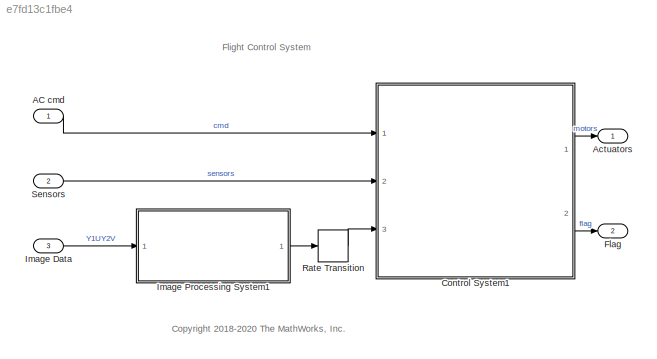
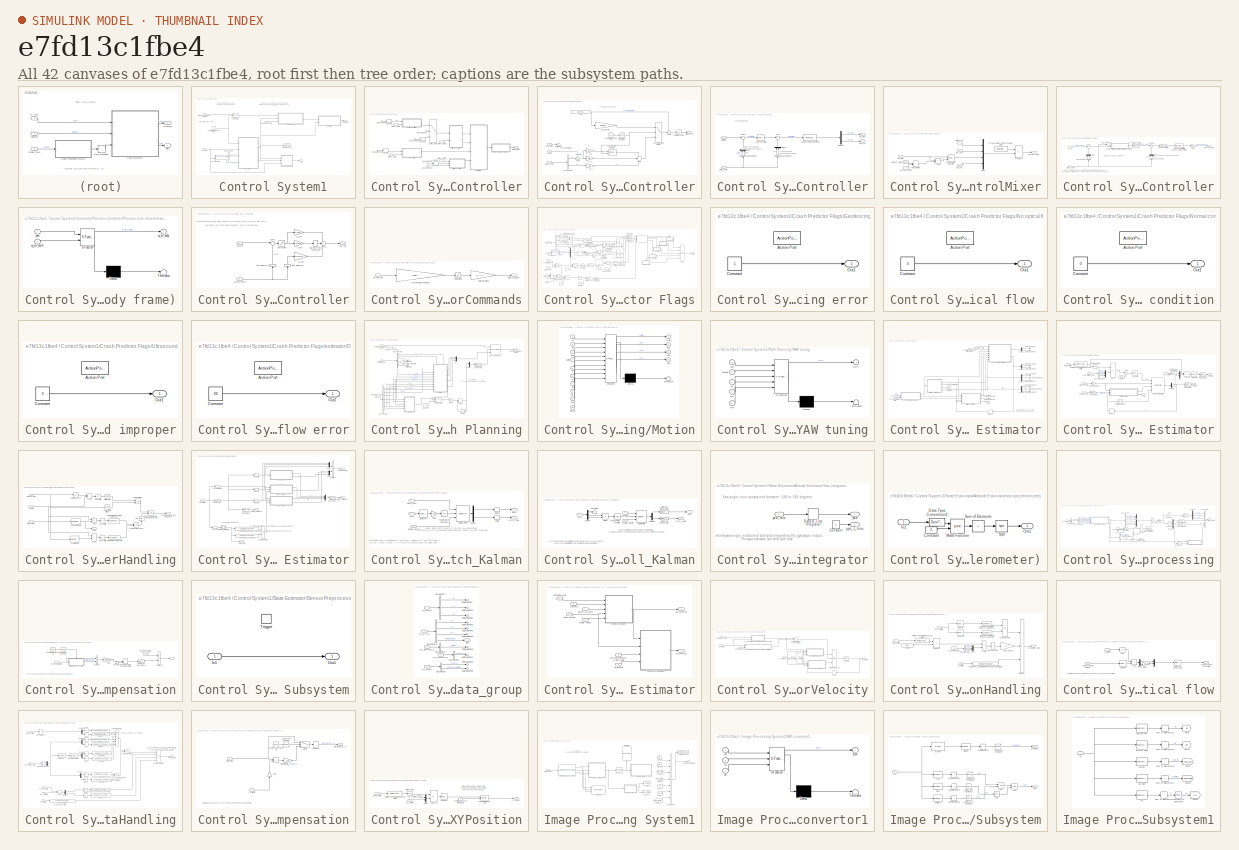
[diagram: thumbnail index - all 42 canvases of the model, root first then tree order]
MODEL slx_e7fd13c1fbe4
KIND model
CONFIG AbsTol = auto
CONFIG EnableMultiTasking = on
CONFIG FixedStep = Ts
CONFIG MaxStep = auto
CONFIG MinStep = auto
CONFIG RelTol = 1e-3
CONFIG SampleTimeConstraint = Unconstrained
CONFIG SolverName = ode3
CONFIG StartTime = 0
CONFIG StopTime = TFinal
BLOCK [Inport] AC cmd
  BusOutputAsStruct = on
  OutDataTypeStr = Bus: CommandBus
BLOCK [Outport] Actuators
  OutDataTypeStr = single
  PortDimensions = 4
  VectorParamsAs1DForOutWhenUnconnected = off
BLOCK [SubSystem] Control System1
  InitFcn = codertarget.parrot.internal.fcsSubsystemCallback(gcb);
  Ports = [3, 2]
  RTWSystemCode = Reusable function
  RequestExecContextInheritance = off
  SystemSampleTime = Ts
  TreatAsAtomicUnit = on
BLOCK [BusSelector] Control System1/Bus Selector1
  OutputSignals = opticalFlow_data
  Ports = [1, 1]
BLOCK [BusSelector] Control System1/Bus Selector4
  OutputSignals = VisionSensors,SensorCalibration
  Ports = [1, 2]
BLOCK [BusAssignment] Control System1/Control Mode Update
  AssignedSignals = controlModePosVSOrient
  Ports = [2, 1]
BLOCK [SubSystem] Control System1/Controller
  Ports = [2, 1]
  RequestExecContextInheritance = off
BLOCK [SubSystem] Control System1/Controller/Altitude Controller
  Ports = [3, 1]
  RequestExecContextInheritance = off
BLOCK [BusSelector] Control System1/Controller/Altitude Controller/Bus Selector1
  OutputSignals = Z,dz
  Ports = [1, 2]
BLOCK [Reference] Control System1/Controller/Altitude Controller/Compare To Constant  REF=simulink/Logic and Bit
Operations/Compare
To Constant
  Ports = [1, 1]
  SourceBlock = simulink/Logic and Bit\nOperations/Compare\nTo Constant
  SourceProductBaseCode = SL
  SourceType = Compare To Constant
BLOCK [Reference] Control System1/Controller/Altitude Controller/Counter Free-Running  REF=simulink/Sources/Counter
Free-Running
  Ports = [0, 1]
  SourceBlock = simulink/Sources/Counter\nFree-Running
  SourceProductBaseCode = SL
  SourceType = Counter Free-Running
BLOCK [Gain] Control System1/Controller/Altitude Controller/D_z1
  Gain = 0.5
  OutDataTypeStr = single
  ParamDataTypeStr = single
  SaturateOnIntegerOverflow = on
BLOCK [DiscreteIntegrator] Control System1/Controller/Altitude Controller/Discrete-Time Integrator
  ExternalReset = falling
  ICPrevOutput = DiscIntNeverNeededParam
  ICPrevScaledInput = DiscIntNeverNeededParam
  InitialConditionSetting = Auto
  LimitOutput = on
  LowerSaturationLimit = -2
  Ports = [2, 1]
  SampleTime = Ts
  UpperSaturationLimit = 2
BLOCK [Gain] Control System1/Controller/Altitude Controller/I_pr
  Gain = 0.24
BLOCK [Gain] Control System1/Controller/Altitude Controller/P_z1
  Gain = 0.8
  OutDataTypeStr = single
  ParamDataTypeStr = single
  SaturateOnIntegerOverflow = on
BLOCK [Inport] Control System1/Controller/Altitude Controller/PosZ
  Port = 2
BLOCK [Saturate] Control System1/Controller/Altitude Controller/SaturationThrust1
  LowerLimit = -4*Controller.totalThrustMaxRelative*Controller.motorsThrustPerMotorMax
  OutDataTypeStr = single
  UpperLimit = 4*Controller.totalThrustMaxRelative*Controller.motorsThrustPerMotorMax
BLOCK [Sum] Control System1/Controller/Altitude Controller/Sum1
  AccumDataTypeStr = single
  Inputs = ++-
  OutDataTypeStr = single
  Ports = [3, 1]
  SaturateOnIntegerOverflow = on
BLOCK [Sum] Control System1/Controller/Altitude Controller/Sum2
  AccumDataTypeStr = single
  Inputs = +-|
  OutDataTypeStr = single
  Ports = [2, 1]
  SaturateOnIntegerOverflow = on
BLOCK [Sum] Control System1/Controller/Altitude Controller/Sum5
  AccumDataTypeStr = single
  Inputs = ++|
  OutDataTypeStr = single
  Ports = [2, 1]
  SaturateOnIntegerOverflow = on
BLOCK [Switch] Control System1/Controller/Altitude Controller/TakeoffOrControl_Switch1
  Criteria = u2 > Threshold
  InputSameDT = off
  SaturateOnIntegerOverflow = off
BLOCK [Terminator] Control System1/Controller/Altitude Controller/Terminator
BLOCK [Outport] Control System1/Controller/Altitude Controller/altitude_cmd
  VectorParamsAs1DForOutWhenUnconnected = off
BLOCK [Inport] Control System1/Controller/Altitude Controller/states_estim
BLOCK [Inport] Control System1/Controller/Altitude Controller/takeoff_flag
  Port = 3
BLOCK [Gain] Control System1/Controller/Altitude Controller/takeoff_gain1
  Gain = Controller.takeoffGain
  OutDataTypeStr = single
  ParamDataTypeStr = single
  SaturateOnIntegerOverflow = on
BLOCK [Constant] Control System1/Controller/Altitude Controller/w1
  OutDataTypeStr = single
  SampleTime = Ts
  Value = -g*Vehicle.Airframe.mass
BLOCK [SubSystem] Control System1/Controller/Attitude Controller
  Ports = [2, 2]
  RequestExecContextInheritance = off
BLOCK [Reference] Control System1/Controller/Attitude Controller/Angle control loop  REF=slpidlib/PID Controller
  Ports = [1, 1]
  SourceBlock = slpidlib/PID Controller
  SourceProductBaseCode = SL
  SourceType = PID 1dof
BLOCK [Reference] Control System1/Controller/Attitude Controller/Angular velocity control loop  REF=slpidlib/PID Controller
  Ports = [1, 1]
  SourceBlock = slpidlib/PID Controller
  SourceProductBaseCode = SL
  SourceType = PID 1dof
BLOCK [BusSelector] Control System1/Controller/Attitude Controller/Bus Selector1
  OutputSignals = q,p
  Ports = [1, 2]
BLOCK [BusSelector] Control System1/Controller/Attitude Controller/Bus Selector3
  OutputSignals = pitch,roll
  Ports = [1, 2]
BLOCK [Demux] Control System1/Controller/Attitude Controller/Demux1
  Outputs = 2
  Ports = [1, 2]
BLOCK [Mux] Control System1/Controller/Attitude Controller/Mux
  DisplayOption = bar
  Inputs = 2
  Ports = [2, 1]
BLOCK [Mux] Control System1/Controller/Attitude Controller/Mux2
  DisplayOption = bar
  Inputs = 2
  Ports = [2, 1]
BLOCK [Sum] Control System1/Controller/Attitude Controller/Sum1
  Inputs = |+-
  Ports = [2, 1]
BLOCK [Sum] Control System1/Controller/Attitude Controller/Sum19
  Inputs = |+-
  Ports = [2, 1]
BLOCK [Inport] Control System1/Controller/Attitude Controller/refAttitude
BLOCK [Inport] Control System1/Controller/Attitude Controller/states_estim
  Port = 2
BLOCK [Outport] Control System1/Controller/Attitude Controller/tau_pitch
  VectorParamsAs1DForOutWhenUnconnected = off
BLOCK [Outport] Control System1/Controller/Attitude Controller/tau_roll
  Port = 2
  VectorParamsAs1DForOutWhenUnconnected = off
BLOCK [SubSystem] Control System1/Controller/ControlMixer
  Ports = [4, 1]
  RequestExecContextInheritance = off
BLOCK [Sum] Control System1/Controller/ControlMixer/Add
  IconShape = rectangular
  Ports = [2, 1]
BLOCK [Reference] Control System1/Controller/ControlMixer/Environment Controller  REF=simulink_need_slupdate/Environment
Controller
  Ports = [2, 1]
  SourceBlock = simulink_need_slupdate/Environment\nController
  SourceProductBaseCode = SL
  SourceType = Environment Controller
BLOCK [ManualSwitch] Control System1/Controller/ControlMixer/Manual Switch
BLOCK [Mux] Control System1/Controller/ControlMixer/Mux2
  DisplayOption = bar
  Ports = [4, 1]
BLOCK [Constant] Control System1/Controller/ControlMixer/Pitch correction
  OutDataTypeStr = single
  Value = 0.002
BLOCK [Product] Control System1/Controller/ControlMixer/Product
  Multiplication = Matrix(*)
  Ports = [2, 1]
  RndMeth = Zero
BLOCK [Constant] Control System1/Controller/ControlMixer/TorqueTotalThrustToThrustPerMotor
  NameLocation = top
  OutDataTypeStr = single
  Value = Controller.Q2Ts
BLOCK [Inport] Control System1/Controller/ControlMixer/tau_pitch
BLOCK [Inport] Control System1/Controller/ControlMixer/tau_roll
  Port = 2
BLOCK [Inport] Control System1/Controller/ControlMixer/tau_yaw
  Port = 3
BLOCK [Outport] Control System1/Controller/ControlMixer/thrusts_refout
  VectorParamsAs1DForOutWhenUnconnected = off
BLOCK [Inport] Control System1/Controller/ControlMixer/totalThrust
  Port = 4
BLOCK [Constant] Control System1/Controller/ControlMixer/zero correction
  OutDataTypeStr = single
  Value = 0
BLOCK [Inport] Control System1/Controller/In Bus Element
BLOCK [Inport] Control System1/Controller/In Bus Element1
BLOCK [Inport] Control System1/Controller/In Bus Element2
BLOCK [Inport] Control System1/Controller/In Bus Element3
BLOCK [Inport] Control System1/Controller/In Bus Element5
BLOCK [Inport] Control System1/Controller/In Bus Element6
BLOCK [SubSystem] Control System1/Controller/Position Controller
  Ports = [2, 1]
  RequestExecContextInheritance = off
BLOCK [BusSelector] Control System1/Controller/Position Controller/Bus Selector1
  NameLocation = right
  OutputSignals = X,Y
  Ports = [1, 2]
BLOCK [BusSelector] Control System1/Controller/Position Controller/Bus Selector2
  NameLocation = right
  OutputSignals = dx,dy
  Ports = [1, 2]
BLOCK [BusSelector] Control System1/Controller/Position Controller/Bus Selector3
  OutputSignals = yaw
  Ports = [1, 1]
BLOCK [Gain] Control System1/Controller/Position Controller/Gain
  Gain = [-1, 1]
BLOCK [DiscreteTransferFcn] Control System1/Controller/Position Controller/LPF 8Hz Cutoff Filter to avoid oscillations induced by position controller
  Denominator = [1+1/pi/Ts/8, 1-1/pi/Ts/8]
  InputPortMap = u0
  Numerator = [1, 1]
  Ports = [1, 1]
BLOCK [Mux] Control System1/Controller/Position Controller/Mux
  DisplayOption = bar
  Inputs = 2
  NameLocation = right
  Ports = [2, 1]
BLOCK [Mux] Control System1/Controller/Position Controller/Mux1
  DisplayOption = bar
  Inputs = 2
  NameLocation = right
  Ports = [2, 1]
BLOCK [Reference] Control System1/Controller/Position Controller/Position controller  REF=slpidlib/PID Controller
  Ports = [1, 1]
  SourceBlock = slpidlib/PID Controller
  SourceProductBaseCode = SL
  SourceType = PID 1dof
BLOCK [SubSystem] Control System1/Controller/Position Controller/Position error transformation (Earth to Body frame)
  ErrorFcn = Stateflow.Translate.translate
  PermitHierarchicalResolution = ExplicitOnly
  Ports = [2, 1]
  RequestExecContextInheritance = off
  SFBlockType = MATLAB Function
  TreatAsAtomicUnit = on
BLOCK [Demux] Control System1/Controller/Position Controller/Position error transformation (Earth to Body frame)/ Demux 
  Outputs = 1
  Ports = [1, 1]
BLOCK [S-Function] Control System1/Controller/Position Controller/Position error transformation (Earth to Body frame)/ SFunction 
  EnableBusSupport = on
  FunctionName = sf_sfun
  PortCounts = [2 2]
  Ports = [2, 2]
  SFcnIsStateOwnerBlock = off
  SFunctionDeploymentMode = off
  Tag = Stateflow S-Function 1
BLOCK [Terminator] Control System1/Controller/Position Controller/Position error transformation (Earth to Body frame)/ Terminator 
BLOCK [Outport] Control System1/Controller/Position Controller/Position error transformation (Earth to Body frame)/xy_err_body
BLOCK [Inport] Control System1/Controller/Position Controller/Position error transformation (Earth to Body frame)/xy_err_earth
  Port = 2
BLOCK [Inport] Control System1/Controller/Position Controller/Position error transformation (Earth to Body frame)/yaw
BLOCK [Sum] Control System1/Controller/Position Controller/Sum1
  Inputs = |+-
  Ports = [2, 1]
BLOCK [Sum] Control System1/Controller/Position Controller/Sum19
  Inputs = |+-
  Ports = [2, 1]
BLOCK [Reference] Control System1/Controller/Position Controller/Velocity controller  REF=slpidlib/PID Controller
  Ports = [1, 1]
  SourceBlock = slpidlib/PID Controller
  SourceProductBaseCode = SL
  SourceType = PID 1dof
BLOCK [Outport] Control System1/Controller/Position Controller/pitch_roll_cmd
  VectorParamsAs1DForOutWhenUnconnected = off
BLOCK [Inport] Control System1/Controller/Position Controller/posXY
BLOCK [Inport] Control System1/Controller/Position Controller/states_estim
  Port = 2
BLOCK [Selector] Control System1/Controller/Selector
  IndexOptions = Index vector (dialog)
  Indices = 3
  InputPortWidth = 3
  OutputSizes = 1
  Ports = [1, 1]
BLOCK [Selector] Control System1/Controller/Selector1
  IndexOptions = Index vector (dialog)
  Indices = [1 2]
  InputPortWidth = 3
  OutputSizes = 1
  Ports = [1, 1]
BLOCK [Selector] Control System1/Controller/Selector2
  IndexOptions = Index vector (dialog)
  Indices = [2 3]
  InputPortWidth = 3
  OutputSizes = 1
  Ports = [1, 1]
BLOCK [Selector] Control System1/Controller/Selector3
  IndexOptions = Index vector (dialog)
  Indices = 1
  InputPortWidth = 3
  OutputSizes = 1
  Ports = [1, 1]
BLOCK [Switch] Control System1/Controller/Switch_refAtt
  Criteria = u2 > Threshold
  InputSameDT = off
  SaturateOnIntegerOverflow = off
BLOCK [SubSystem] Control System1/Controller/Yaw Controller
  Ports = [2, 1]
  RequestExecContextInheritance = off
BLOCK [BusSelector] Control System1/Controller/Yaw Controller/Bus Selector1
  NameLocation = right
  OutputSignals = r
  Ports = [1, 1]
BLOCK [BusSelector] Control System1/Controller/Yaw Controller/Bus Selector5
  NameLocation = right
  OutputSignals = yaw
  Ports = [1, 1]
BLOCK [Gain] Control System1/Controller/Yaw Controller/D_yaw
  Gain = 0.3*0.004
BLOCK [DiscreteIntegrator] Control System1/Controller/Yaw Controller/Discrete-Time Integrator
  ICPrevOutput = DiscIntNeverNeededParam
  ICPrevScaledInput = DiscIntNeverNeededParam
  InitialConditionSetting = Auto
  Ports = [1, 1]
  SampleTime = -1
  gainval = 1
BLOCK [Gain] Control System1/Controller/Yaw Controller/I_yaw
  Gain = 0.002
  OutDataTypeStr = single
  ParamDataTypeStr = single
BLOCK [Gain] Control System1/Controller/Yaw Controller/P_yaw
  Gain = 0.004
  OutDataTypeStr = single
  ParamDataTypeStr = single
BLOCK [Saturate] Control System1/Controller/Yaw Controller/Saturation
  LowerLimit = -pi/180*30
  UpperLimit = pi/180*30
BLOCK [Sum] Control System1/Controller/Yaw Controller/Sum1
  AccumDataTypeStr = single
  Inputs = |+-
  OutDataTypeStr = single
  Ports = [2, 1]
  SaturateOnIntegerOverflow = on
BLOCK [Sum] Control System1/Controller/Yaw Controller/Sum2
  Inputs = ++-
  Ports = [3, 1]
BLOCK [Inport] Control System1/Controller/Yaw Controller/states_estim
  Port = 2
BLOCK [Outport] Control System1/Controller/Yaw Controller/tau_yaw
  VectorParamsAs1DForOutWhenUnconnected = off
BLOCK [Inport] Control System1/Controller/Yaw Controller/yaw_ref
BLOCK [Outport] Control System1/Controller/motors_refout
  VectorParamsAs1DForOutWhenUnconnected = off
BLOCK [Inport] Control System1/Controller/states_estim
  Port = 2
BLOCK [InportShadow] Control System1/Controller/states_estim1
  Port = 2
BLOCK [InportShadow] Control System1/Controller/states_estim2
  Port = 2
BLOCK [InportShadow] Control System1/Controller/states_estim3
  Port = 2
BLOCK [SubSystem] Control System1/Controller/thrustsToMotorCommands
  Ports = [1, 1]
  RequestExecContextInheritance = off
BLOCK [Gain] Control System1/Controller/thrustsToMotorCommands/MotorDirections
  Gain = [1 -1 1 -1]
BLOCK [Saturate] Control System1/Controller/thrustsToMotorCommands/Saturation5
  LowerLimit = Vehicle.Motor.minLimit
  UpperLimit = Vehicle.Motor.maxLimit
BLOCK [Gain] Control System1/Controller/thrustsToMotorCommands/ThrustToMotorCommand
  Gain = -Vehicle.Motor.thrustToMotorCommand
BLOCK [Outport] Control System1/Controller/thrustsToMotorCommands/motors_cmdout
  VectorParamsAs1DForOutWhenUnconnected = off
BLOCK [Inport] Control System1/Controller/thrustsToMotorCommands/thrusts_refin
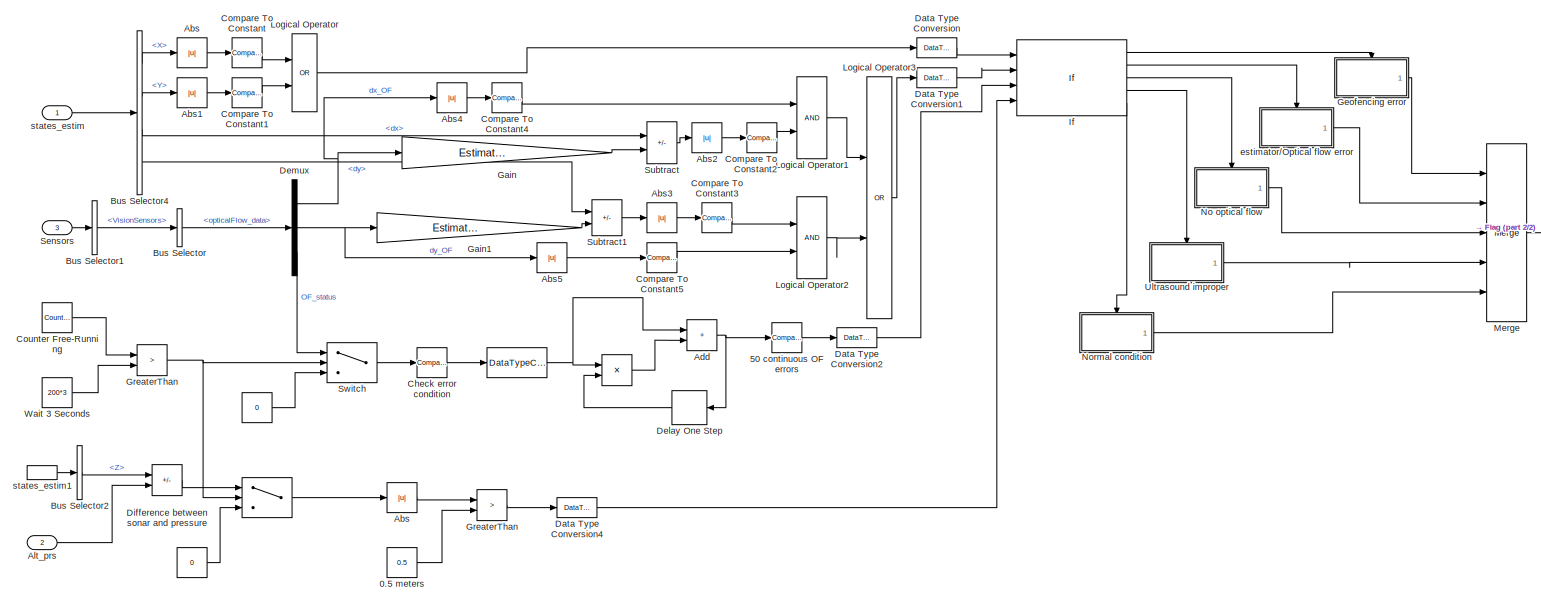
[diagram: Control System1/Crash Predictor Flags - part 1/2, most of the canvas]
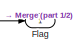
[diagram: Control System1/Crash Predictor Flags - part 2/2, middle right region]
BLOCK [SubSystem] Control System1/Crash Predictor Flags
  Ports = [3, 1]
  RequestExecContextInheritance = off
BLOCK [Constant] Control System1/Crash Predictor Flags/ 
  Value = 0
BLOCK [Product] Control System1/Crash Predictor Flags/  
  Inputs = **
  Ports = [2, 1]
BLOCK [DataTypeConversion] Control System1/Crash Predictor Flags/   
  RndMeth = Floor
  SaturateOnIntegerOverflow = off
BLOCK [Constant] Control System1/Crash Predictor Flags/    
  OutDataTypeStr = single
  Value = 0
BLOCK [Switch] Control System1/Crash Predictor Flags/         
  Criteria = u2 > Threshold
  InputSameDT = off
  SaturateOnIntegerOverflow = off
BLOCK [Constant] Control System1/Crash Predictor Flags/0.5 meters
  Value = 0.5
BLOCK [Reference] Control System1/Crash Predictor Flags/50 continuous OF errors   REF=simulink/Logic and Bit
Operations/Compare
To Constant
  Ports = [1, 1]
  SourceBlock = simulink/Logic and Bit\nOperations/Compare\nTo Constant
  SourceProductBaseCode = SL
  SourceType = Compare To Constant
BLOCK [Abs] Control System1/Crash Predictor Flags/Abs
  SaturateOnIntegerOverflow = off
BLOCK [Abs] Control System1/Crash Predictor Flags/Abs  
  SaturateOnIntegerOverflow = off
BLOCK [Abs] Control System1/Crash Predictor Flags/Abs1
  SaturateOnIntegerOverflow = off
BLOCK [Abs] Control System1/Crash Predictor Flags/Abs2
  SaturateOnIntegerOverflow = off
BLOCK [Abs] Control System1/Crash Predictor Flags/Abs3
  SaturateOnIntegerOverflow = off
BLOCK [Abs] Control System1/Crash Predictor Flags/Abs4
  SaturateOnIntegerOverflow = off
BLOCK [Abs] Control System1/Crash Predictor Flags/Abs5
  SaturateOnIntegerOverflow = off
BLOCK [Sum] Control System1/Crash Predictor Flags/Add
  IconShape = rectangular
  Ports = [2, 1]
BLOCK [Inport] Control System1/Crash Predictor Flags/Alt_prs
  Port = 2
BLOCK [BusSelector] Control System1/Crash Predictor Flags/Bus Selector
  OutputSignals = opticalFlow_data
  Ports = [1, 1]
BLOCK [BusSelector] Control System1/Crash Predictor Flags/Bus Selector1
  OutputSignals = VisionSensors
  Ports = [1, 1]
BLOCK [BusSelector] Control System1/Crash Predictor Flags/Bus Selector2
  OutputSignals = Z
  Ports = [1, 1]
BLOCK [BusSelector] Control System1/Crash Predictor Flags/Bus Selector4
  OutputSignals = X,Y,dx,dy
  Ports = [1, 4]
BLOCK [Reference] Control System1/Crash Predictor Flags/Check error condition  REF=simulink/Logic and Bit
Operations/Compare
To Constant
  Ports = [1, 1]
  SourceBlock = simulink/Logic and Bit\nOperations/Compare\nTo Constant
  SourceProductBaseCode = SL
  SourceType = Compare To Constant
BLOCK [Reference] Control System1/Crash Predictor Flags/Compare To Constant  REF=simulink/Logic and Bit
Operations/Compare
To Constant
  Ports = [1, 1]
  SourceBlock = simulink/Logic and Bit\nOperations/Compare\nTo Constant
  SourceProductBaseCode = SL
  SourceType = Compare To Constant
BLOCK [Reference] Control System1/Crash Predictor Flags/Compare To Constant1  REF=simulink/Logic and Bit
Operations/Compare
To Constant
  Ports = [1, 1]
  SourceBlock = simulink/Logic and Bit\nOperations/Compare\nTo Constant
  SourceProductBaseCode = SL
  SourceType = Compare To Constant
BLOCK [Reference] Control System1/Crash Predictor Flags/Compare To Constant2  REF=simulink/Logic and Bit
Operations/Compare
To Constant
  Ports = [1, 1]
  SourceBlock = simulink/Logic and Bit\nOperations/Compare\nTo Constant
  SourceProductBaseCode = SL
  SourceType = Compare To Constant
BLOCK [Reference] Control System1/Crash Predictor Flags/Compare To Constant3  REF=simulink/Logic and Bit
Operations/Compare
To Constant
  Ports = [1, 1]
  SourceBlock = simulink/Logic and Bit\nOperations/Compare\nTo Constant
  SourceProductBaseCode = SL
  SourceType = Compare To Constant
BLOCK [Reference] Control System1/Crash Predictor Flags/Compare To Constant4  REF=simulink/Logic and Bit
Operations/Compare
To Constant
  Ports = [1, 1]
  SourceBlock = simulink/Logic and Bit\nOperations/Compare\nTo Constant
  SourceProductBaseCode = SL
  SourceType = Compare To Constant
BLOCK [Reference] Control System1/Crash Predictor Flags/Compare To Constant5  REF=simulink/Logic and Bit
Operations/Compare
To Constant
  Ports = [1, 1]
  SourceBlock = simulink/Logic and Bit\nOperations/Compare\nTo Constant
  SourceProductBaseCode = SL
  SourceType = Compare To Constant
BLOCK [Reference] Control System1/Crash Predictor Flags/Counter Free-Running  REF=simulink/Sources/Counter
Free-Running
  Ports = [0, 1]
  SourceBlock = simulink/Sources/Counter\nFree-Running
  SourceProductBaseCode = SL
  SourceType = Counter Free-Running
BLOCK [DataTypeConversion] Control System1/Crash Predictor Flags/Data Type Conversion
  OutDataTypeStr = uint8
  RndMeth = Nearest
  SaturateOnIntegerOverflow = off
BLOCK [DataTypeConversion] Control System1/Crash Predictor Flags/Data Type Conversion1
  OutDataTypeStr = uint8
  RndMeth = Nearest
  SaturateOnIntegerOverflow = off
BLOCK [DataTypeConversion] Control System1/Crash Predictor Flags/Data Type Conversion2
  OutDataTypeStr = uint8
  RndMeth = Nearest
  SaturateOnIntegerOverflow = off
BLOCK [DataTypeConversion] Control System1/Crash Predictor Flags/Data Type Conversion4
  OutDataTypeStr = uint8
  RndMeth = Nearest
  SaturateOnIntegerOverflow = off
BLOCK [Delay] Control System1/Crash Predictor Flags/Delay One Step
  DelayLength = 1
  InputPortMap = u0
  Ports = [1, 1]
BLOCK [Demux] Control System1/Crash Predictor Flags/Demux
  Outputs = 3
  Ports = [1, 3]
BLOCK [Sum] Control System1/Crash Predictor Flags/Difference between sonar and pressure
  IconShape = rectangular
  Inputs = +-
  Ports = [2, 1]
BLOCK [Outport] Control System1/Crash Predictor Flags/Flag
  VectorParamsAs1DForOutWhenUnconnected = off
BLOCK [Gain] Control System1/Crash Predictor Flags/Gain
  Gain = Estimator.pos.visDeltaXYMax
BLOCK [Gain] Control System1/Crash Predictor Flags/Gain1
  Gain = Estimator.pos.visDeltaXYMax
BLOCK [SubSystem] Control System1/Crash Predictor Flags/Geofencing error
  Ports = [0, 1, 0, 0, 0, 0, 0, 1]
  RequestExecContextInheritance = off
  TreatAsAtomicUnit = on
BLOCK [ActionPort] Control System1/Crash Predictor Flags/Geofencing error/Action Port
  ActionPortLabel = if(u1 > 0)
BLOCK [Constant] Control System1/Crash Predictor Flags/Geofencing error/Constant
  OutDataTypeStr = uint8
BLOCK [Outport] Control System1/Crash Predictor Flags/Geofencing error/Out1
  VectorParamsAs1DForOutWhenUnconnected = off
BLOCK [RelationalOperator] Control System1/Crash Predictor Flags/GreaterThan
  InputSameDT = off
  Operator = >
  OutDataTypeStr = boolean
  Ports = [2, 1]
  RndMeth = Simplest
BLOCK [RelationalOperator] Control System1/Crash Predictor Flags/GreaterThan  
  InputSameDT = off
  NameLocation = top
  Operator = >
  OutDataTypeStr = boolean
  Ports = [2, 1]
  RndMeth = Simplest
BLOCK [If] Control System1/Crash Predictor Flags/If
  ElseIfExpressions = u2 > 0, u3> 0,u4>0
  NumInputs = 4
  Ports = [4, 5]
BLOCK [Logic] Control System1/Crash Predictor Flags/Logical Operator
  AllPortsSameDT = off
  Operator = OR
  Ports = [2, 1]
BLOCK [Logic] Control System1/Crash Predictor Flags/Logical Operator1
  AllPortsSameDT = off
  OutDataTypeStr = boolean
  Ports = [2, 1]
BLOCK [Logic] Control System1/Crash Predictor Flags/Logical Operator2
  AllPortsSameDT = off
  OutDataTypeStr = boolean
  Ports = [2, 1]
BLOCK [Logic] Control System1/Crash Predictor Flags/Logical Operator3
  AllPortsSameDT = off
  Operator = OR
  Ports = [2, 1]
BLOCK [Merge] Control System1/Crash Predictor Flags/Merge
  InitialOutput = 0
  Inputs = 5
  Ports = [5, 1]
BLOCK [SubSystem] Control System1/Crash Predictor Flags/No optical flow 
  Ports = [0, 1, 0, 0, 0, 0, 0, 1]
  RequestExecContextInheritance = off
  TreatAsAtomicUnit = on
BLOCK [ActionPort] Control System1/Crash Predictor Flags/No optical flow /Action Port
  ActionPortLabel = elseif( u3> 0)
BLOCK [Constant] Control System1/Crash Predictor Flags/No optical flow /Constant
  OutDataTypeStr = uint8
  Value = 0
BLOCK [Outport] Control System1/Crash Predictor Flags/No optical flow /Out1
  VectorParamsAs1DForOutWhenUnconnected = off
BLOCK [SubSystem] Control System1/Crash Predictor Flags/Normal condition
  Ports = [0, 1, 0, 0, 0, 0, 0, 1]
  RequestExecContextInheritance = off
  TreatAsAtomicUnit = on
BLOCK [ActionPort] Control System1/Crash Predictor Flags/Normal condition/Action Port
  ActionPortLabel = else
BLOCK [Constant] Control System1/Crash Predictor Flags/Normal condition/Constant
  OutDataTypeStr = uint8
  Value = 0
BLOCK [Outport] Control System1/Crash Predictor Flags/Normal condition/Out1
  VectorParamsAs1DForOutWhenUnconnected = off
BLOCK [Inport] Control System1/Crash Predictor Flags/Sensors
  Port = 3
BLOCK [Sum] Control System1/Crash Predictor Flags/Subtract
  IconShape = rectangular
  Inputs = -+
  Ports = [2, 1]
BLOCK [Sum] Control System1/Crash Predictor Flags/Subtract1
  IconShape = rectangular
  Inputs = -+
  Ports = [2, 1]
BLOCK [Switch] Control System1/Crash Predictor Flags/Switch
  Criteria = u2 > Threshold
  InputSameDT = off
  SaturateOnIntegerOverflow = off
BLOCK [SubSystem] Control System1/Crash Predictor Flags/Ultrasound improper
  Ports = [0, 1, 0, 0, 0, 0, 0, 1]
  RequestExecContextInheritance = off
  TreatAsAtomicUnit = on
BLOCK [ActionPort] Control System1/Crash Predictor Flags/Ultrasound improper/Action Port
  ActionPortLabel = elseif(u4>0)
BLOCK [Constant] Control System1/Crash Predictor Flags/Ultrasound improper/Constant
  OutDataTypeStr = uint8
  Value = 0
BLOCK [Outport] Control System1/Crash Predictor Flags/Ultrasound improper/Out1
  VectorParamsAs1DForOutWhenUnconnected = off
BLOCK [Constant] Control System1/Crash Predictor Flags/Wait  3 Seconds
  Value = 200*3
BLOCK [SubSystem] Control System1/Crash Predictor Flags/estimator//Optical flow error
  Ports = [0, 1, 0, 0, 0, 0, 0, 1]
  RequestExecContextInheritance = off
  TreatAsAtomicUnit = on
BLOCK [ActionPort] Control System1/Crash Predictor Flags/estimator//Optical flow error/Action Port
  ActionPortLabel = elseif(u2 > 0)
BLOCK [Constant] Control System1/Crash Predictor Flags/estimator//Optical flow error/Constant
  OutDataTypeStr = uint8
  Value = 99
BLOCK [Outport] Control System1/Crash Predictor Flags/estimator//Optical flow error/Out1
  VectorParamsAs1DForOutWhenUnconnected = off
BLOCK [Inport] Control System1/Crash Predictor Flags/states_estim
BLOCK [InportShadow] Control System1/Crash Predictor Flags/states_estim1
BLOCK [Outport] Control System1/Flag
  Port = 2
  VectorParamsAs1DForOutWhenUnconnected = off
BLOCK [SubSystem] Control System1/Path Planning
  Ports = [3, 1]
  RequestExecContextInheritance = off
BLOCK [Sum] Control System1/Path Planning/Add2
  IconShape = rectangular
  Ports = [2, 1]
BLOCK [BusAssignment] Control System1/Path Planning/Bus Assignment
  AssignedSignals = orient_ref,pos_ref
  Ports = [3, 1]
BLOCK [BusSelector] Control System1/Path Planning/Bus Selector1
  OutputSignals = X,Y,Z,yaw,pitch,roll,dx,dy
  Ports = [1, 8]
BLOCK [BusSelector] Control System1/Path Planning/Bus Selector2
  OutputSignals = Top Left,land,Top Right,up,BR,BL,land Detect
  Ports = [1, 7]
BLOCK [Constant] Control System1/Path Planning/Constant
  Value = 0
BLOCK [DataTypeConversion] Control System1/Path Planning/Data Type Conversion1
  OutDataTypeStr = single
  RndMeth = Floor
  SaturateOnIntegerOverflow = off
BLOCK [Delay] Control System1/Path Planning/Delay4
  DelayLength = 1
  InputPortMap = u0
  Ports = [1, 1]
BLOCK [Inport] Control System1/Path Planning/EstimatedVal
  Port = 2
BLOCK [Gain] Control System1/Path Planning/Gain2
  Gain = 0.0017
BLOCK [SubSystem] Control System1/Path Planning/Motion
  ErrorFcn = Stateflow.Translate.translate
  PermitHierarchicalResolution = ExplicitOnly
  PortSchema = {"entries":[{"content":{"sides":[{"content":{"connectorIds":["In3","In4","In5","In6","In7","In8","In9","In10"]},"type":"ConnectorPlacement.EquallySpacedRectSide","uuid":"7a28b41e-4e5a-4e90-9bb7-0ddb70759aac"},{"content":{"connectorIds":["Out1","Out2","Out3","Out4"],"side":"RIGHT"},"type":"ConnectorPlacement.EquallySpacedRectSide","uuid":"f08b532d-9f46-4cc0-b6a6-cb21734d18ac"},{"content":{"connecto...<+315ch>
  Ports = [10, 4]
  RequestExecContextInheritance = off
  SFBlockType = Chart
  TreatAsAtomicUnit = on
BLOCK [Demux] Control System1/Path Planning/Motion/ Demux 
  Outputs = 1
  Ports = [1, 1]
BLOCK [S-Function] Control System1/Path Planning/Motion/ SFunction 
  EnableBusSupport = on
  FunctionName = sf_sfun
  PortCounts = [10 5]
  Ports = [10, 5]
  SFcnIsStateOwnerBlock = off
  SFunctionDeploymentMode = off
  Tag = Stateflow S-Function 9
BLOCK [Terminator] Control System1/Path Planning/Motion/ Terminator 
BLOCK [Inport] Control System1/Path Planning/Motion/BL
  Port = 8
BLOCK [Inport] Control System1/Path Planning/Motion/BR
  Port = 9
BLOCK [Inport] Control System1/Path Planning/Motion/L
  Port = 5
BLOCK [Inport] Control System1/Path Planning/Motion/R
  Port = 6
BLOCK [Inport] Control System1/Path Planning/Motion/detect
  Port = 10
BLOCK [Inport] Control System1/Path Planning/Motion/land
  Port = 3
BLOCK [Outport] Control System1/Path Planning/Motion/rotate
BLOCK [Inport] Control System1/Path Planning/Motion/up
  Port = 7
BLOCK [Inport] Control System1/Path Planning/Motion/xe
  Port = 2
BLOCK [Outport] Control System1/Path Planning/Motion/xout
  Port = 2
BLOCK [Inport] Control System1/Path Planning/Motion/yawin
  Port = 4
BLOCK [Inport] Control System1/Path Planning/Motion/ye
BLOCK [Outport] Control System1/Path Planning/Motion/yout
  Port = 3
BLOCK [Outport] Control System1/Path Planning/Motion/zout
  Port = 4
BLOCK [Mux] Control System1/Path Planning/Mux
  DisplayOption = bar
  Inputs = 3
  Ports = [3, 1]
BLOCK [Mux] Control System1/Path Planning/Mux1
  DisplayOption = bar
  Inputs = 3
  Ports = [3, 1]
BLOCK [Inport] Control System1/Path Planning/ReferenceValueServerCmds
BLOCK [Switch] Control System1/Path Planning/Rotate Switch
  Criteria = u2 > Threshold
  InputSameDT = off
  SaturateOnIntegerOverflow = off
BLOCK [Terminator] Control System1/Path Planning/Terminator3
  NameLocation = top
BLOCK [Terminator] Control System1/Path Planning/Terminator5
  NameLocation = top
BLOCK [Terminator] Control System1/Path Planning/Terminator6
  NameLocation = top
BLOCK [Outport] Control System1/Path Planning/UpdatedReferenceCmds
  VectorParamsAs1DForOutWhenUnconnected = off
BLOCK [Inport] Control System1/Path Planning/Vision-based Data
  Port = 3
BLOCK [SubSystem] Control System1/Path Planning/YAW tuning
  ErrorFcn = Stateflow.Translate.translate
  PermitHierarchicalResolution = ExplicitOnly
  Ports = [5, 1]
  RequestExecContextInheritance = off
  SFBlockType = Chart
  TreatAsAtomicUnit = on
BLOCK [Demux] Control System1/Path Planning/YAW tuning/ Demux 
  Outputs = 1
  Ports = [1, 1]
BLOCK [S-Function] Control System1/Path Planning/YAW tuning/ SFunction 
  EnableBusSupport = on
  FunctionName = sf_sfun
  PortCounts = [5 2]
  Ports = [5, 2]
  SFcnIsStateOwnerBlock = off
  SFunctionDeploymentMode = off
  Tag = Stateflow S-Function 10
BLOCK [Terminator] Control System1/Path Planning/YAW tuning/ Terminator 
BLOCK [Inport] Control System1/Path Planning/YAW tuning/BL
  Port = 4
BLOCK [Inport] Control System1/Path Planning/YAW tuning/BR
  Port = 5
BLOCK [Inport] Control System1/Path Planning/YAW tuning/Left
BLOCK [Outport] Control System1/Path Planning/YAW tuning/OUT
BLOCK [Inport] Control System1/Path Planning/YAW tuning/Right
  Port = 2
BLOCK [Inport] Control System1/Path Planning/YAW tuning/up
  Port = 3
BLOCK [Inport] Control System1/ReferenceValueServerCmds
  OutDataTypeStr = Bus: CommandBus
BLOCK [Inport] Control System1/Sensors
  BusOutputAsStruct = on
  OutDataTypeStr = Bus: SensorsBus
  Port = 2
BLOCK [SubSystem] Control System1/State Estimator
  Ports = [4, 2]
  RequestExecContextInheritance = off
BLOCK [Outport] Control System1/State Estimator/Alt_prs
  Port = 2
  VectorParamsAs1DForOutWhenUnconnected = off
BLOCK [SubSystem] Control System1/State Estimator/Altitude Estimator
  Ports = [5, 3]
  RequestExecContextInheritance = off
BLOCK [Outport] Control System1/State Estimator/Altitude Estimator/Alt_prs
  Port = 3
  VectorParamsAs1DForOutWhenUnconnected = off
BLOCK [BusSelector] Control System1/State Estimator/Altitude Estimator/Bus Selector2
  OutputSignals = ddx,ddy,ddz
  Ports = [1, 3]
BLOCK [DataTypeConversion] Control System1/State Estimator/Altitude Estimator/Data Type Conversion
  OutDataTypeStr = single
  RndMeth = Floor
BLOCK [DataTypeConversion] Control System1/State Estimator/Altitude Estimator/Data Type Conversion1
  OutDataTypeStr = double
  RndMeth = Floor
BLOCK [DataTypeConversion] Control System1/State Estimator/Altitude Estimator/Data Type Conversion2
  OutDataTypeStr = single
  RndMeth = Floor
BLOCK [Delay] Control System1/State Estimator/Altitude Estimator/Delay2
  DelayLength = 1
  InitialCondition = 0
  InputPortMap = u0
  NameLocation = top
  Ports = [1, 1]
BLOCK [Demux] Control System1/State Estimator/Altitude Estimator/Demux
  Outputs = 2
  Ports = [1, 2]
BLOCK [Reference] Control System1/State Estimator/Altitude Estimator/KalmanFilter_altitude  REF=ctrlSharedLib/Kalman Filter
  Ports = [4, 1]
  SourceBlock = ctrlSharedLib/Kalman Filter
  SourceProductBaseCode = CT,ID
  SourceType = ctrlKalmanFilter
BLOCK [Math] Control System1/State Estimator/Altitude Estimator/Math Function
  Operator = transpose
  Ports = [1, 1]
  SignedPower = on
BLOCK [Mux] Control System1/State Estimator/Altitude Estimator/Mux
  DisplayOption = bar
  Inputs = 2
  Ports = [2, 1]
BLOCK [Mux] Control System1/State Estimator/Altitude Estimator/Mux2
  DisplayOption = bar
  Inputs = 3
  Ports = [3, 1]
BLOCK [SubSystem] Control System1/State Estimator/Altitude Estimator/OutlierHandling
  Ports = [3, 2]
  RequestExecContextInheritance = off
BLOCK [Abs] Control System1/State Estimator/Altitude Estimator/OutlierHandling/Absestdiff
  SaturateOnIntegerOverflow = off
BLOCK [Abs] Control System1/State Estimator/Altitude Estimator/OutlierHandling/Absestdiff1
  SaturateOnIntegerOverflow = off
BLOCK [Abs] Control System1/State Estimator/Altitude Estimator/OutlierHandling/Absestdiff2
  SaturateOnIntegerOverflow = off
BLOCK [Sum] Control System1/State Estimator/Altitude Estimator/OutlierHandling/Add
  IconShape = rectangular
  Inputs = -+
  Ports = [2, 1]
BLOCK [Sum] Control System1/State Estimator/Altitude Estimator/OutlierHandling/Add1
  IconShape = rectangular
  Inputs = -+
  Ports = [2, 1]
BLOCK [Sum] Control System1/State Estimator/Altitude Estimator/OutlierHandling/Add2
  IconShape = rectangular
  Inputs = -+
  Ports = [2, 1]
BLOCK [Outport] Control System1/State Estimator/Altitude Estimator/OutlierHandling/Alt_prs
  Port = 2
  VectorParamsAs1DForOutWhenUnconnected = off
BLOCK [Logic] Control System1/State Estimator/Altitude Estimator/OutlierHandling/NOT
  AllPortsSameDT = off
  IconShape = distinctive
  Operator = NOT
  OutDataTypeStr = boolean
  Ports = [1, 1]
BLOCK [Saturate] Control System1/State Estimator/Altitude Estimator/OutlierHandling/SaturationSonar
  LowerLimit = -inf
  UpperLimit = -Sensors.altSensorMin
BLOCK [Inport] Control System1/State Estimator/Altitude Estimator/OutlierHandling/Z_estimin
  Port = 3
BLOCK [Inport] Control System1/State Estimator/Altitude Estimator/OutlierHandling/altPrs_datin
  Port = 2
BLOCK [Inport] Control System1/State Estimator/Altitude Estimator/OutlierHandling/altSonar_datin
  NameLocation = top
BLOCK [Reference] Control System1/State Estimator/Altitude Estimator/OutlierHandling/check for min altitude  REF=simulink/Logic and Bit
Operations/Compare
To Constant
  Ports = [1, 1]
  SourceBlock = simulink/Logic and Bit\nOperations/Compare\nTo Constant
  SourceProductBaseCode = SL
  SourceType = Compare To Constant
BLOCK [Reference] Control System1/State Estimator/Altitude Estimator/OutlierHandling/currentEstimateVeryOffFromPressure  REF=simulink/Logic and Bit
Operations/Compare
To Constant
  Ports = [1, 1]
  SourceBlock = simulink/Logic and Bit\nOperations/Compare\nTo Constant
  SourceProductBaseCode = SL
  SourceType = Compare To Constant
BLOCK [Reference] Control System1/State Estimator/Altitude Estimator/OutlierHandling/currentStateVeryOffsonarflt  REF=simulink/Logic and Bit
Operations/Compare
To Constant
  Ports = [1, 1]
  SourceBlock = simulink/Logic and Bit\nOperations/Compare\nTo Constant
  SourceProductBaseCode = SL
  SourceType = Compare To Constant
BLOCK [Outport] Control System1/State Estimator/Altitude Estimator/OutlierHandling/enableKFmeasupdate_flagout
  VectorParamsAs1DForOutWhenUnconnected = off
BLOCK [Logic] Control System1/State Estimator/Altitude Estimator/OutlierHandling/findingoutliers
  AllPortsSameDT = off
  OutDataTypeStr = boolean
  Ports = [2, 1]
BLOCK [Logic] Control System1/State Estimator/Altitude Estimator/OutlierHandling/newupdateneeded
  AllPortsSameDT = off
  OutDataTypeStr = boolean
  Ports = [2, 1]
BLOCK [Logic] Control System1/State Estimator/Altitude Estimator/OutlierHandling/nicemeasurementor newupdateneeded
  AllPortsSameDT = off
  OutDataTypeStr = boolean
  Ports = [2, 1]
BLOCK [Reference] Control System1/State Estimator/Altitude Estimator/OutlierHandling/outlierJump  REF=simulink/Logic and Bit
Operations/Compare
To Constant
  Ports = [1, 1]
  SourceBlock = simulink/Logic and Bit\nOperations/Compare\nTo Constant
  SourceProductBaseCode = SL
  SourceType = Compare To Constant
BLOCK [DiscreteFilter] Control System1/State Estimator/Altitude Estimator/OutlierHandling/pressureFilter_IIR
  Denominator = Estimator.alt.filterPrsDen
  InputPortMap = u0
  Numerator = Estimator.alt.filterPrsNum
  Ports = [1, 1]
BLOCK [DiscreteFilter] Control System1/State Estimator/Altitude Estimator/OutlierHandling/sonarFilter_IIR
  Denominator = Estimator.alt.filterSonarDen
  InputPortMap = u0
  Numerator = Estimator.alt.filterSonarNum
  Ports = [1, 1]
BLOCK [Product] Control System1/State Estimator/Altitude Estimator/Product
  Multiplication = Matrix(*)
  Ports = [2, 1]
BLOCK [Product] Control System1/State Estimator/Altitude Estimator/Product1
  Multiplication = Matrix(*)
  Ports = [2, 1]
BLOCK [Reference] Control System1/State Estimator/Altitude Estimator/Rotation Angles to Direction Cosine Matrix  REF=sharedtransform/Rotation Angles to
Direction Cosine Matrix
  AttributesFormatString = Rotation Order: %<rotationOrder>
  Ports = [1, 1]
  SourceBlock = sharedtransform/Rotation Angles to\nDirection Cosine Matrix
  SourceProductBaseCode = AE,PW,DR,MT,VE
  SourceType = Ang2DCM
BLOCK [Selector] Control System1/State Estimator/Altitude Estimator/Selector4
  IndexOptions = Index vector (dialog)
  Indices = [3]
  InputPortWidth = 3
  OutputSizes = 1
  Ports = [1, 1]
BLOCK [Selector] Control System1/State Estimator/Altitude Estimator/Selector5
  IndexOptions = Index vector (dialog)
  Indices = [3]
  InputPortWidth = 3
  OutputSizes = 1
  Ports = [1, 1]
BLOCK [Sum] Control System1/State Estimator/Altitude Estimator/Sum
  Inputs = |++
  Ports = [2, 1]
BLOCK [Outport] Control System1/State Estimator/Altitude Estimator/Z_estimout
  Port = 2
  VectorParamsAs1DForOutWhenUnconnected = off
BLOCK [Inport] Control System1/State Estimator/Altitude Estimator/altSonar_datin
  Port = 2
BLOCK [Inport] Control System1/State Estimator/Altitude Estimator/dxy_estimin
  Port = 4
BLOCK [Outport] Control System1/State Estimator/Altitude Estimator/dz_estimout
  VectorParamsAs1DForOutWhenUnconnected = off
BLOCK [Constant] Control System1/State Estimator/Altitude Estimator/gravity
  Value = [0 0 g]
BLOCK [Gain] Control System1/State Estimator/Altitude Estimator/invertzaxisGain
  Gain = -1
  OutDataTypeStr = double
  ParamDataTypeStr = single
BLOCK [Inport] Control System1/State Estimator/Altitude Estimator/orient_estimin
  Port = 5
BLOCK [Reference] Control System1/State Estimator/Altitude Estimator/outlierBelowFloor  REF=simulink/Logic and Bit
Operations/Compare
To Constant
  Ports = [1, 1]
  SourceBlock = simulink/Logic and Bit\nOperations/Compare\nTo Constant
  SourceProductBaseCode = SL
  SourceType = Compare To Constant
BLOCK [Inport] Control System1/State Estimator/Altitude Estimator/prsDelta_datin
  Port = 3
BLOCK [Gain] Control System1/State Estimator/Altitude Estimator/prsToAltGain
  Gain = 1/Sensors.altToPrsGain
BLOCK [Inport] Control System1/State Estimator/Altitude Estimator/sensorIMU_datin
BLOCK [SubSystem] Control System1/State Estimator/Attitude Estimator
  Ports = [1, 4]
  RequestExecContextInheritance = off
BLOCK [Selector] Control System1/State Estimator/Attitude Estimator/Accelerometer
  IndexOptions = Index vector (dialog)
  Indices = [1 2 3]
  InputPortWidth = 6
  OutputSizes = 1
  Ports = [1, 1]
BLOCK [Reference] Control System1/State Estimator/Attitude Estimator/Compare To Constant  REF=simulink/Logic and Bit
Operations/Compare
To Constant
  Ports = [1, 1]
  SourceBlock = simulink/Logic and Bit\nOperations/Compare\nTo Constant
  SourceProductBaseCode = SL
  SourceType = Compare To Constant
BLOCK [Reference] Control System1/State Estimator/Attitude Estimator/Compare To Constant1  REF=simulink/Logic and Bit
Operations/Compare
To Constant
  Ports = [1, 1]
  SourceBlock = simulink/Logic and Bit\nOperations/Compare\nTo Constant
  SourceProductBaseCode = SL
  SourceType = Compare To Constant
BLOCK [DataTypeConversion] Control System1/State Estimator/Attitude Estimator/Data Type Conversion1
  OutDataTypeStr = single
  RndMeth = Floor
  SaturateOnIntegerOverflow = off
BLOCK [DataTypeConversion] Control System1/State Estimator/Attitude Estimator/Data Type Conversion3
  OutDataTypeStr = single
  RndMeth = Floor
  SaturateOnIntegerOverflow = off
BLOCK [Selector] Control System1/State Estimator/Attitude Estimator/Gyroscope
  IndexOptions = Index vector (dialog)
  Indices = [4 5 6]
  InputPortWidth = 6
  OutputSizes = 1
  Ports = [1, 1]
BLOCK [Logic] Control System1/State Estimator/Attitude Estimator/Logical Operator
  AllPortsSameDT = off
  OutDataTypeStr = fixdt(1,16)
  Ports = [2, 1]
BLOCK [Mux] Control System1/State Estimator/Attitude Estimator/Mux
  DisplayOption = bar
  Inputs = 3
  Ports = [3, 1]
BLOCK [Mux] Control System1/State Estimator/Attitude Estimator/Mux1
  DisplayOption = bar
  Inputs = 3
  Ports = [3, 1]
BLOCK [Mux] Control System1/State Estimator/Attitude Estimator/Mux2
  DisplayOption = bar
  Inputs = 3
  Ports = [3, 1]
BLOCK [SubSystem] Control System1/State Estimator/Attitude Estimator/Pitch_Kalman
  Ports = [3, 2]
  RequestExecContextInheritance = off
BLOCK [Demux] Control System1/State Estimator/Attitude Estimator/Pitch_Kalman/Demux
  Outputs = 2
  Ports = [1, 2]
BLOCK [Gain] Control System1/State Estimator/Attitude Estimator/Pitch_Kalman/Gain2
  Gain = 1/g
BLOCK [Reference] Control System1/State Estimator/Attitude Estimator/Pitch_Kalman/Kalman Filter  REF=ctrlSharedLib/Kalman Filter
  Ports = [3, 1]
  SourceBlock = ctrlSharedLib/Kalman Filter
  SourceProductBaseCode = CT,ID
  SourceType = ctrlKalmanFilter
BLOCK [Selector] Control System1/State Estimator/Attitude Estimator/Pitch_Kalman/Selector1
  IndexOptions = Index vector (dialog)
  Indices = [1]
  InputPortWidth = 3
  OutputSizes = 1
  Ports = [1, 1]
BLOCK [Trigonometry] Control System1/State Estimator/Attitude Estimator/Pitch_Kalman/Trigonometric Function1
  Operator = asin
  Ports = [1, 1]
BLOCK [Inport] Control System1/State Estimator/Attitude Estimator/Pitch_Kalman/axyz
BLOCK [Inport] Control System1/State Estimator/Attitude Estimator/Pitch_Kalman/enable_update
  Port = 3
BLOCK [Outport] Control System1/State Estimator/Attitude Estimator/Pitch_Kalman/gyro_y_bias
  Port = 2
BLOCK [Outport] Control System1/State Estimator/Attitude Estimator/Pitch_Kalman/pitch
BLOCK [Inport] Control System1/State Estimator/Attitude Estimator/Pitch_Kalman/pitch_rate
  Port = 2
BLOCK [DataTypeConversion] Control System1/State Estimator/Attitude Estimator/Pitch_Kalman/single
  OutDataTypeStr = single
  RndMeth = Floor
  SaturateOnIntegerOverflow = off
BLOCK [DataTypeConversion] Control System1/State Estimator/Attitude Estimator/Pitch_Kalman/single1
  OutDataTypeStr = single
  RndMeth = Floor
  SaturateOnIntegerOverflow = off
BLOCK [SubSystem] Control System1/State Estimator/Attitude Estimator/Roll_Kalman
  Ports = [3, 2]
  RequestExecContextInheritance = off
BLOCK [DataTypeConversion] Control System1/State Estimator/Attitude Estimator/Roll_Kalman/Data Type Conversion
  RndMeth = Floor
  SaturateOnIntegerOverflow = off
BLOCK [DataTypeConversion] Control System1/State Estimator/Attitude Estimator/Roll_Kalman/Data Type Conversion1
  RndMeth = Floor
  SaturateOnIntegerOverflow = off
BLOCK [Demux] Control System1/State Estimator/Attitude Estimator/Roll_Kalman/Demux
  Outputs = 3
  Ports = [1, 3]
BLOCK [Demux] Control System1/State Estimator/Attitude Estimator/Roll_Kalman/Demux1
  Outputs = 2
  Ports = [1, 2]
BLOCK [Product] Control System1/State Estimator/Attitude Estimator/Roll_Kalman/Divide
  Inputs = */
  Ports = [2, 1]
BLOCK [Reference] Control System1/State Estimator/Attitude Estimator/Roll_Kalman/Kalman Filter  REF=ctrlSharedLib/Kalman Filter
  Ports = [3, 1]
  SourceBlock = ctrlSharedLib/Kalman Filter
  SourceProductBaseCode = CT,ID
  SourceType = ctrlKalmanFilter
BLOCK [Terminator] Control System1/State Estimator/Attitude Estimator/Roll_Kalman/Terminator
BLOCK [Trigonometry] Control System1/State Estimator/Attitude Estimator/Roll_Kalman/Trigonometric Function
  Operator = atan
  Ports = [1, 1]
BLOCK [Inport] Control System1/State Estimator/Attitude Estimator/Roll_Kalman/axyz
BLOCK [Inport] Control System1/State Estimator/Attitude Estimator/Roll_Kalman/enable_update
  Port = 3
BLOCK [Outport] Control System1/State Estimator/Attitude Estimator/Roll_Kalman/gyro_x_bias
  Port = 2
BLOCK [Outport] Control System1/State Estimator/Attitude Estimator/Roll_Kalman/roll
BLOCK [Inport] Control System1/State Estimator/Attitude Estimator/Roll_Kalman/roll_rate
  Port = 2
BLOCK [Selector] Control System1/State Estimator/Attitude Estimator/Selector2
  IndexOptions = Index vector (dialog)
  Indices = [1 2 3]
  InputPortWidth = 6
  OutputSizes = 1
  Ports = [1, 1]
BLOCK [Selector] Control System1/State Estimator/Attitude Estimator/Selector4
  IndexOptions = Index vector (dialog)
  Indices = [2]
  InputPortWidth = 3
  OutputSizes = 1
  Ports = [1, 1]
BLOCK [Selector] Control System1/State Estimator/Attitude Estimator/Selector5
  IndexOptions = Index vector (dialog)
  Indices = [3]
  InputPortWidth = 3
  OutputSizes = 1
  Ports = [1, 1]
BLOCK [Selector] Control System1/State Estimator/Attitude Estimator/Selector6
  IndexOptions = Index vector (dialog)
  Indices = [1]
  InputPortWidth = 3
  OutputSizes = 1
  Ports = [1, 1]
BLOCK [Sum] Control System1/State Estimator/Attitude Estimator/Subtract
  IconShape = rectangular
  Inputs = +-
  Ports = [2, 1]
BLOCK [SubSystem] Control System1/State Estimator/Attitude Estimator/Yaw_integrator
  Ports = [1, 2]
  RequestExecContextInheritance = off
BLOCK [Constant] Control System1/State Estimator/Attitude Estimator/Yaw_integrator/Constant
  OutDataTypeStr = single
  Value = 0
BLOCK [DiscreteIntegrator] Control System1/State Estimator/Attitude Estimator/Yaw_integrator/Discrete-Time Integrator
  ICPrevOutput = DiscIntNeverNeededParam
  ICPrevScaledInput = DiscIntNeverNeededParam
  InitialConditionSetting = Auto
  Ports = [1, 1]
  SampleTime = -1
BLOCK [Outport] Control System1/State Estimator/Attitude Estimator/Yaw_integrator/gyro_z_bias
  Port = 2
BLOCK [Outport] Control System1/State Estimator/Attitude Estimator/Yaw_integrator/yaw
BLOCK [Inport] Control System1/State Estimator/Attitude Estimator/Yaw_integrator/yaw_rate
BLOCK [Outport] Control System1/State Estimator/Attitude Estimator/angular velocity
  Port = 4
  VectorParamsAs1DForOutWhenUnconnected = off
BLOCK [Outport] Control System1/State Estimator/Attitude Estimator/dorient_estimaout
  Port = 3
  VectorParamsAs1DForOutWhenUnconnected = off
BLOCK [Outport] Control System1/State Estimator/Attitude Estimator/imu_abs
  OutDataTypeStr = single
  Port = 2
  VectorParamsAs1DForOutWhenUnconnected = off
BLOCK [SubSystem] Control System1/State Estimator/Attitude Estimator/norm(accelerometer)
  Ports = [1, 1]
  RequestExecContextInheritance = off
BLOCK [Constant] Control System1/State Estimator/Attitude Estimator/norm(accelerometer)/Constant
  OutDataTypeStr = single
  Value = 2
BLOCK [DataTypeConversion] Control System1/State Estimator/Attitude Estimator/norm(accelerometer)/Data Type Conversion2
  OutDataTypeStr = single
  RndMeth = Floor
  SaturateOnIntegerOverflow = off
BLOCK [Inport] Control System1/State Estimator/Attitude Estimator/norm(accelerometer)/In1
BLOCK [Math] Control System1/State Estimator/Attitude Estimator/norm(accelerometer)/Math Function
  Operator = pow
  Ports = [2, 1]
  SignedPower = on
BLOCK [Outport] Control System1/State Estimator/Attitude Estimator/norm(accelerometer)/Out1
BLOCK [Sqrt] Control System1/State Estimator/Attitude Estimator/norm(accelerometer)/Sqrt
BLOCK [Sum] Control System1/State Estimator/Attitude Estimator/norm(accelerometer)/Sum of Elements
  IconShape = rectangular
  Inputs = +
  Ports = [1, 1]
BLOCK [Outport] Control System1/State Estimator/Attitude Estimator/orient_estimaout
  VectorParamsAs1DForOutWhenUnconnected = off
BLOCK [Inport] Control System1/State Estimator/Attitude Estimator/sensorIMU
  OutDataTypeStr = single
BLOCK [Delay] Control System1/State Estimator/Delay1
  DelayLength = 1
  InitialCondition = 0
  InputPortMap = u0
  Ports = [1, 1]
BLOCK [Demux] Control System1/State Estimator/Demux
  Outputs = 3
  Ports = [1, 3]
BLOCK [Demux] Control System1/State Estimator/Demux1
  Outputs = 3
  Ports = [1, 3]
BLOCK [Demux] Control System1/State Estimator/Demux3
  Outputs = 2
  Ports = [1, 2]
BLOCK [Demux] Control System1/State Estimator/Demux4
  Outputs = 2
  Ports = [1, 2]
BLOCK [Outport] Control System1/State Estimator/Out Bus Element
  VectorParamsAs1DForOutWhenUnconnected = off
BLOCK [Outport] Control System1/State Estimator/Out Bus Element1
  VectorParamsAs1DForOutWhenUnconnected = off
BLOCK [Outport] Control System1/State Estimator/Out Bus Element10
  VectorParamsAs1DForOutWhenUnconnected = off
BLOCK [Outport] Control System1/State Estimator/Out Bus Element11
  VectorParamsAs1DForOutWhenUnconnected = off
BLOCK [Outport] Control System1/State Estimator/Out Bus Element2
  VectorParamsAs1DForOutWhenUnconnected = off
BLOCK [Outport] Control System1/State Estimator/Out Bus Element3
  VectorParamsAs1DForOutWhenUnconnected = off
BLOCK [Outport] Control System1/State Estimator/Out Bus Element4
  VectorParamsAs1DForOutWhenUnconnected = off
BLOCK [Outport] Control System1/State Estimator/Out Bus Element5
  VectorParamsAs1DForOutWhenUnconnected = off
BLOCK [Outport] Control System1/State Estimator/Out Bus Element6
  VectorParamsAs1DForOutWhenUnconnected = off
BLOCK [Outport] Control System1/State Estimator/Out Bus Element7
  VectorParamsAs1DForOutWhenUnconnected = off
BLOCK [Outport] Control System1/State Estimator/Out Bus Element8
  VectorParamsAs1DForOutWhenUnconnected = off
BLOCK [Outport] Control System1/State Estimator/Out Bus Element9
  VectorParamsAs1DForOutWhenUnconnected = off
BLOCK [SubSystem] Control System1/State Estimator/SensorPreprocessing
  Ports = [2, 3]
  RequestExecContextInheritance = off
BLOCK [Bias] Control System1/State Estimator/SensorPreprocessing/Assuming that the preflight calibration was done at level orientation
  Bias = [0 0 +g 0 0 0]
  SaturateOnIntegerOverflow = off
BLOCK [BusCreator] Control System1/State Estimator/SensorPreprocessing/Bus Creator3
  DisplayOption = bar
  InheritFromInputs = on
  Inputs = 6
  Ports = [6, 1]
BLOCK [BusSelector] Control System1/State Estimator/SensorPreprocessing/Bus Selector
  OutputSignals = ddx,ddy,ddz,p,q,r
  Ports = [1, 6]
BLOCK [BusSelector] Control System1/State Estimator/SensorPreprocessing/Bus Selector1
  OutputSignals = altitude_sonar,prs
  Ports = [1, 2]
BLOCK [BusSelector] Control System1/State Estimator/SensorPreprocessing/Bus Selector2
  OutputSignals = HAL_acc_SI,HAL_gyro_SI,HAL_ultrasound_SI,HAL_pressure_SI,HAL_vbat_SI
  Ports = [1, 5]
BLOCK [BusSelector] Control System1/State Estimator/SensorPreprocessing/Bus Selector3
  OutputSignals = HALSensors
  Ports = [1, 1]
BLOCK [DataTypeConversion] Control System1/State Estimator/SensorPreprocessing/Data Type Conversion
  RndMeth = Floor
  SaturateOnIntegerOverflow = off
BLOCK [Demux] Control System1/State Estimator/SensorPreprocessing/Demux1
  Outputs = 3
  Ports = [1, 3]
BLOCK [Demux] Control System1/State Estimator/SensorPreprocessing/Demux2
  Outputs = 3
  Ports = [1, 3]
BLOCK [DiscreteFir] Control System1/State Estimator/SensorPreprocessing/FIR_IMUaccel
  Coefficients = Estimator.IMU.filterAccel.Coefficients
  InputPortMap = u0
  OutputPortMap = o0
  Ports = [1, 1]
BLOCK [DiscreteFilter] Control System1/State Estimator/SensorPreprocessing/IIR_IMUgyro_r
  Denominator = Estimator.IMU.filterGyroDen
  InputPortMap = u0
  Numerator = Estimator.IMU.filterGyroNum
  Ports = [1, 1]
BLOCK [DiscreteTransferFcn] Control System1/State Estimator/SensorPreprocessing/LPF Fcutoff = 40Hz
  Denominator = [1+1/pi/Ts/40, 1-1/pi/Ts/40]
  InputPortMap = u0
  Numerator = [1, 1]
  Ports = [1, 1]
BLOCK [DiscreteTransferFcn] Control System1/State Estimator/SensorPreprocessing/LPF Fcutoff = 40Hz1
  Denominator = [1+1/pi/Ts/40, 1-1/pi/Ts/40]
  InputPortMap = u0
  Numerator = [1, 1]
  Ports = [1, 1]
BLOCK [Mux] Control System1/State Estimator/SensorPreprocessing/Mux1
  DisplayOption = bar
  Inputs = 6
  Ports = [6, 1]
BLOCK [Selector] Control System1/State Estimator/SensorPreprocessing/Select Accel
  IndexOptions = Index vector (dialog)
  Indices = [1 2 3]
  InputPortWidth = 6
  OutputSizes = 1
  Ports = [1, 1]
BLOCK [Selector] Control System1/State Estimator/SensorPreprocessing/Select pqr
  IndexOptions = Index vector (dialog)
  Indices = [4 5 6]
  InputPortWidth = 6
  OutputSizes = 1
  Ports = [1, 1]
BLOCK [Selector] Control System1/State Estimator/SensorPreprocessing/Selector2
  IndexOptions = Index vector (dialog)
  Indices = [1:6]
  InputPortWidth = 8
  OutputSizes = 1
  Ports = [1, 1]
BLOCK [Selector] Control System1/State Estimator/SensorPreprocessing/Selector4
  IndexOptions = Index vector (dialog)
  Indices = [7]
  InputPortWidth = 8
  NameLocation = left
  OutputSizes = 1
  Ports = [1, 1]
BLOCK [Sum] Control System1/State Estimator/SensorPreprocessing/Sum1
  Inputs = |+-
  Ports = [2, 1]
BLOCK [Sum] Control System1/State Estimator/SensorPreprocessing/Sum2
  Inputs = -+|
  Ports = [2, 1]
BLOCK [SubSystem] Control System1/State Estimator/SensorPreprocessing/Temperature Compensation
  Ports = [2, 1]
  RequestExecContextInheritance = off
BLOCK [Reference] Control System1/State Estimator/SensorPreprocessing/Temperature Compensation/Compare To Constant  REF=simulink/Logic and Bit
Operations/Compare
To Constant
  Ports = [1, 1]
  SourceBlock = simulink/Logic and Bit\nOperations/Compare\nTo Constant
  SourceProductBaseCode = SL
  SourceType = Compare To Constant
BLOCK [Constant] Control System1/State Estimator/SensorPreprocessing/Temperature Compensation/Constant
  Value = 0
BLOCK [Reference] Control System1/State Estimator/SensorPreprocessing/Temperature Compensation/Counter Free-Running  REF=simulink/Sources/Counter
Free-Running
  Ports = [0, 1]
  SourceBlock = simulink/Sources/Counter\nFree-Running
  SourceProductBaseCode = SL
  SourceType = Counter Free-Running
BLOCK [DataTypeConversion] Control System1/State Estimator/SensorPreprocessing/Temperature Compensation/Data Type Conversion1
  RndMeth = Floor
  SaturateOnIntegerOverflow = off
BLOCK [ManualSwitch] Control System1/State Estimator/SensorPreprocessing/Temperature Compensation/Disable temperature compensation
BLOCK [Gain] Control System1/State Estimator/SensorPreprocessing/Temperature Compensation/Gain
  Gain = 0.00228
BLOCK [Inport] Control System1/State Estimator/SensorPreprocessing/Temperature Compensation/Gyro Temperature
BLOCK [Sum] Control System1/State Estimator/SensorPreprocessing/Temperature Compensation/Subtract
  IconShape = rectangular
  Inputs = +-
  Ports = [2, 1]
BLOCK [Sum] Control System1/State Estimator/SensorPreprocessing/Temperature Compensation/Subtract1
  IconShape = rectangular
  Inputs = +-
  Ports = [2, 1]
BLOCK [SubSystem] Control System1/State Estimator/SensorPreprocessing/Temperature Compensation/Triggered Subsystem
  Ports = [1, 1, 0, 1]
  RequestExecContextInheritance = off
  TreatAsAtomicUnit = on
BLOCK [Inport] Control System1/State Estimator/SensorPreprocessing/Temperature Compensation/Triggered Subsystem/In1
BLOCK [Outport] Control System1/State Estimator/SensorPreprocessing/Temperature Compensation/Triggered Subsystem/Out1
BLOCK [TriggerPort] Control System1/State Estimator/SensorPreprocessing/Temperature Compensation/Triggered Subsystem/Trigger
  Ports = []
  StatesWhenEnabling = held
  TriggerType = either
  VariantControl = Variant
BLOCK [Outport] Control System1/State Estimator/SensorPreprocessing/Temperature Compensation/r
BLOCK [Inport] Control System1/State Estimator/SensorPreprocessing/Temperature Compensation/uncompensated_gyro_z_rate
  Port = 2
BLOCK [Outport] Control System1/State Estimator/SensorPreprocessing/altSonar_datout
  NameLocation = top
  Port = 2
  VectorParamsAs1DForOutWhenUnconnected = off
BLOCK [Gain] Control System1/State Estimator/SensorPreprocessing/inverseIMU_gain
  Gain = Estimator.inverseIMUGain
  OutDataTypeStr = single
  ParamDataTypeStr = single
BLOCK [Outport] Control System1/State Estimator/SensorPreprocessing/prsDelta_datout
  Port = 3
  VectorParamsAs1DForOutWhenUnconnected = off
BLOCK [Inport] Control System1/State Estimator/SensorPreprocessing/sensorCalibration_datin
  Port = 2
BLOCK [Outport] Control System1/State Estimator/SensorPreprocessing/sensorIMU_datout
  VectorParamsAs1DForOutWhenUnconnected = off
BLOCK [Inport] Control System1/State Estimator/SensorPreprocessing/sensordata_datin
BLOCK [SubSystem] Control System1/State Estimator/SensorPreprocessing/sensordata_group
  Ports = [5, 2]
  RequestExecContextInheritance = off
BLOCK [BusSelector] Control System1/State Estimator/SensorPreprocessing/sensordata_group/Bus Selector1
  OutputSignals = vbat_V,vbat_percentage
  Ports = [1, 2]
BLOCK [BusSelector] Control System1/State Estimator/SensorPreprocessing/sensordata_group/Bus Selector3
  OutputSignals = x,y,z
  Ports = [1, 3]
BLOCK [BusSelector] Control System1/State Estimator/SensorPreprocessing/sensordata_group/Bus Selector4
  OutputSignals = x,y,z,temperature
  Ports = [1, 4]
BLOCK [BusSelector] Control System1/State Estimator/SensorPreprocessing/sensordata_group/Bus Selector5
  OutputSignals = altitude
  Ports = [1, 1]
BLOCK [BusSelector] Control System1/State Estimator/SensorPreprocessing/sensordata_group/Bus Selector6
  OutputSignals = pressure
  Ports = [1, 1]
BLOCK [Inport] Control System1/State Estimator/SensorPreprocessing/sensordata_group/HAL_acc_SI
  OutDataTypeStr = Bus: HAL_acc_SI_t
BLOCK [Inport] Control System1/State Estimator/SensorPreprocessing/sensordata_group/HAL_gyro_SI
  OutDataTypeStr = Bus: HAL_gyro_SI_t
  Port = 2
BLOCK [Inport] Control System1/State Estimator/SensorPreprocessing/sensordata_group/HAL_pressure_SI
  OutDataTypeStr = Bus: HAL_pressure_SI_t
  Port = 4
BLOCK [Inport] Control System1/State Estimator/SensorPreprocessing/sensordata_group/HAL_ultrasound_SI
  OutDataTypeStr = Bus: HAL_ultrasound_SI_t
  Port = 3
BLOCK [Inport] Control System1/State Estimator/SensorPreprocessing/sensordata_group/HAL_vbat_SI
  OutDataTypeStr = Bus: HAL_vbat_SI_t
  Port = 5
BLOCK [Outport] Control System1/State Estimator/SensorPreprocessing/sensordata_group/Out Bus Element
  VectorParamsAs1DForOutWhenUnconnected = off
BLOCK [Outport] Control System1/State Estimator/SensorPreprocessing/sensordata_group/Out Bus Element1
  VectorParamsAs1DForOutWhenUnconnected = off
BLOCK [Outport] Control System1/State Estimator/SensorPreprocessing/sensordata_group/Out Bus Element2
  VectorParamsAs1DForOutWhenUnconnected = off
BLOCK [Outport] Control System1/State Estimator/SensorPreprocessing/sensordata_group/Out Bus Element3
  VectorParamsAs1DForOutWhenUnconnected = off
BLOCK [Outport] Control System1/State Estimator/SensorPreprocessing/sensordata_group/Out Bus Element4
  VectorParamsAs1DForOutWhenUnconnected = off
BLOCK [Outport] Control System1/State Estimator/SensorPreprocessing/sensordata_group/Out Bus Element5
  VectorParamsAs1DForOutWhenUnconnected = off
BLOCK [Outport] Control System1/State Estimator/SensorPreprocessing/sensordata_group/Out Bus Element6
  VectorParamsAs1DForOutWhenUnconnected = off
BLOCK [Outport] Control System1/State Estimator/SensorPreprocessing/sensordata_group/Out Bus Element7
  VectorParamsAs1DForOutWhenUnconnected = off
BLOCK [Outport] Control System1/State Estimator/SensorPreprocessing/sensordata_group/Out Bus Element8
  VectorParamsAs1DForOutWhenUnconnected = off
BLOCK [Outport] Control System1/State Estimator/SensorPreprocessing/sensordata_group/Out Bus Element9
  VectorParamsAs1DForOutWhenUnconnected = off
BLOCK [Outport] Control System1/State Estimator/SensorPreprocessing/sensordata_group/Out1
  Port = 2
BLOCK [Terminator] Control System1/State Estimator/Terminator
BLOCK [Terminator] Control System1/State Estimator/Terminator1
BLOCK [SubSystem] Control System1/State Estimator/XY Position Estimator
  Ports = [7, 2]
  RequestExecContextInheritance = off
BLOCK [Inport] Control System1/State Estimator/XY Position Estimator/Angular velocity
  Port = 7
BLOCK [SubSystem] Control System1/State Estimator/XY Position Estimator/EstimatorVelocity
  Ports = [5, 1]
  RequestExecContextInheritance = off
BLOCK [SubSystem] Control System1/State Estimator/XY Position Estimator/EstimatorVelocity/AccelerationHandling
  Ports = [4, 1]
  RequestExecContextInheritance = off
BLOCK [Sum] Control System1/State Estimator/XY Position Estimator/EstimatorVelocity/AccelerationHandling/Add
  IconShape = rectangular
  Inputs = -+
  Ports = [2, 1]
BLOCK [BusSelector] Control System1/State Estimator/XY Position Estimator/EstimatorVelocity/AccelerationHandling/Bus Selector1
  OutputSignals = ddx,ddy,ddz
  Ports = [1, 3]
BLOCK [Reference] Control System1/State Estimator/XY Position Estimator/EstimatorVelocity/AccelerationHandling/Deactivate Acceleration If OF is not used due to low altitude  REF=simulink/Logic and Bit
Operations/Compare
To Constant
  Ports = [1, 1]
  SourceBlock = simulink/Logic and Bit\nOperations/Compare\nTo Constant
  SourceProductBaseCode = SL
  SourceType = Compare To Constant
BLOCK [Logic] Control System1/State Estimator/XY Position Estimator/EstimatorVelocity/AccelerationHandling/Logical Operator
  AllPortsSameDT = off
  Operator = OR
  OutDataTypeStr = boolean
  Ports = [2, 1]
BLOCK [Mux] Control System1/State Estimator/XY Position Estimator/EstimatorVelocity/AccelerationHandling/Mux6
  DisplayOption = bar
  Inputs = 3
  Ports = [3, 1]
BLOCK [Product] Control System1/State Estimator/XY Position Estimator/EstimatorVelocity/AccelerationHandling/Product
  Inputs = 3
  Ports = [3, 1]
BLOCK [Product] Control System1/State Estimator/XY Position Estimator/EstimatorVelocity/AccelerationHandling/Product1
  Multiplication = Matrix(*)
  Ports = [2, 1]
BLOCK [Reference] Control System1/State Estimator/XY Position Estimator/EstimatorVelocity/AccelerationHandling/Rotation Angles to Direction Cosine Matrix  REF=sharedtransform/Rotation Angles to
Direction Cosine Matrix
  AttributesFormatString = Rotation Order: %<rotationOrder>
  Ports = [1, 1]
  SourceBlock = sharedtransform/Rotation Angles to\nDirection Cosine Matrix
  SourceProductBaseCode = AE,PW,DR,MT,VE
  SourceType = Ang2DCM
BLOCK [Selector] Control System1/State Estimator/XY Position Estimator/EstimatorVelocity/AccelerationHandling/SelectPlanarddxy
  IndexOptions = Index vector (dialog)
  Indices = [1 2]
  InputPortWidth = 3
  OutputSizes = 1
  Ports = [1, 1]
BLOCK [Selector] Control System1/State Estimator/XY Position Estimator/EstimatorVelocity/AccelerationHandling/Selector
  IndexOptions = Index vector (dialog)
  Indices = 1
  InputPortWidth = 2
  OutputSizes = 1
  Ports = [1, 1]
BLOCK [Selector] Control System1/State Estimator/XY Position Estimator/EstimatorVelocity/AccelerationHandling/Selector1
  IndexOptions = Index vector (dialog)
  Indices = 2
  InputPortWidth = 2
  OutputSizes = 1
  Ports = [1, 1]
BLOCK [Inport] Control System1/State Estimator/XY Position Estimator/EstimatorVelocity/AccelerationHandling/Z_estimin
  Port = 4
BLOCK [Outport] Control System1/State Estimator/XY Position Estimator/EstimatorVelocity/AccelerationHandling/acceleration_world
  OutDataTypeStr = single
  VectorParamsAs1DForOutWhenUnconnected = off
BLOCK [Reference] Control System1/State Estimator/XY Position Estimator/EstimatorVelocity/AccelerationHandling/do not use acc if optical flow never available (Note OF@60Hz but ZOH to 200!)  REF=simulink/Logic and Bit
Operations/Compare
To Constant
  Ports = [1, 1]
  SourceBlock = simulink/Logic and Bit\nOperations/Compare\nTo Constant
  SourceProductBaseCode = SL
  SourceType = Compare To Constant
BLOCK [Reference] Control System1/State Estimator/XY Position Estimator/EstimatorVelocity/AccelerationHandling/do not use acc if optical flow never available (Note OF@60Hz but ZOH to 200!)1  REF=simulink/Logic and Bit
Operations/Compare
To Constant
  Ports = [1, 1]
  SourceBlock = simulink/Logic and Bit\nOperations/Compare\nTo Constant
  SourceProductBaseCode = SL
  SourceType = Compare To Constant
BLOCK [Inport] Control System1/State Estimator/XY Position Estimator/EstimatorVelocity/AccelerationHandling/dxy_estimin
BLOCK [Gain] Control System1/State Estimator/XY Position Estimator/EstimatorVelocity/AccelerationHandling/gainaccinput1
  OutDataTypeStr = single
BLOCK [Constant] Control System1/State Estimator/XY Position Estimator/EstimatorVelocity/AccelerationHandling/gravity
  Value = [0 0 -g]
BLOCK [Inport] Control System1/State Estimator/XY Position Estimator/EstimatorVelocity/AccelerationHandling/orient_estimin
  NameLocation = top
  Port = 3
BLOCK [Inport] Control System1/State Estimator/XY Position Estimator/EstimatorVelocity/AccelerationHandling/sensorIMU_datin
  Port = 2
BLOCK [SubSystem] Control System1/State Estimator/XY Position Estimator/EstimatorVelocity/Angular velocity compensation for optical flow
  Ports = [2, 1]
  RequestExecContextInheritance = off
BLOCK [Abs] Control System1/State Estimator/XY Position Estimator/EstimatorVelocity/Angular velocity compensation for optical flow/Abs
  SaturateOnIntegerOverflow = off
BLOCK [Inport] Control System1/State Estimator/XY Position Estimator/EstimatorVelocity/Angular velocity compensation for optical flow/Angular velocity w//o bias
  Port = 2
BLOCK [DataTypeConversion] Control System1/State Estimator/XY Position Estimator/EstimatorVelocity/Angular velocity compensation for optical flow/Data Type Conversion
  RndMeth = Floor
  SaturateOnIntegerOverflow = off
BLOCK [Demux] Control System1/State Estimator/XY Position Estimator/EstimatorVelocity/Angular velocity compensation for optical flow/Demux
  Outputs = 2
  Ports = [1, 2]
BLOCK [Gain] Control System1/State Estimator/XY Position Estimator/EstimatorVelocity/Angular velocity compensation for optical flow/Gain1
  Gain = -1
BLOCK [Mux] Control System1/State Estimator/XY Position Estimator/EstimatorVelocity/Angular velocity compensation for optical flow/Mux
  DisplayOption = bar
  Inputs = 2
  Ports = [2, 1]
BLOCK [Selector] Control System1/State Estimator/XY Position Estimator/EstimatorVelocity/Angular velocity compensation for optical flow/Selector
  IndexOptions = Index vector (dialog)
  Indices = [1 2]
  InputPortWidth = 3
  OutputSizes = 1
  Ports = [1, 1]
BLOCK [Outport] Control System1/State Estimator/XY Position Estimator/EstimatorVelocity/Angular velocity compensation for optical flow/angular velocity correction
BLOCK [Product] Control System1/State Estimator/XY Position Estimator/EstimatorVelocity/Angular velocity compensation for optical flow/prod
  Inputs = **
  Ports = [2, 1]
BLOCK [Inport] Control System1/State Estimator/XY Position Estimator/EstimatorVelocity/Angular velocity compensation for optical flow/z_estimate
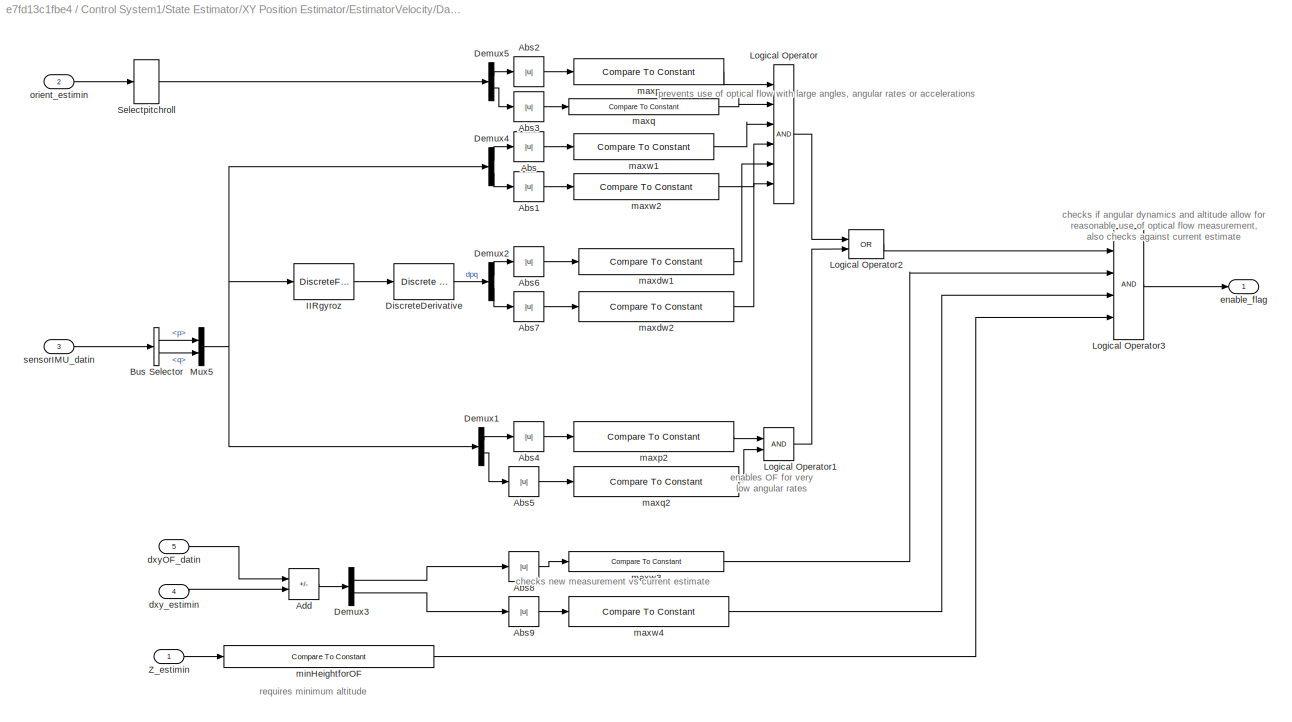
BLOCK [SubSystem] Control System1/State Estimator/XY Position Estimator/EstimatorVelocity/DataHandling
  Ports = [5, 1]
  RequestExecContextInheritance = off
BLOCK [Abs] Control System1/State Estimator/XY Position Estimator/EstimatorVelocity/DataHandling/Abs
  SaturateOnIntegerOverflow = off
BLOCK [Abs] Control System1/State Estimator/XY Position Estimator/EstimatorVelocity/DataHandling/Abs1
  SaturateOnIntegerOverflow = off
BLOCK [Abs] Control System1/State Estimator/XY Position Estimator/EstimatorVelocity/DataHandling/Abs2
  SaturateOnIntegerOverflow = off
BLOCK [Abs] Control System1/State Estimator/XY Position Estimator/EstimatorVelocity/DataHandling/Abs3
  SaturateOnIntegerOverflow = off
BLOCK [Abs] Control System1/State Estimator/XY Position Estimator/EstimatorVelocity/DataHandling/Abs4
  SaturateOnIntegerOverflow = off
BLOCK [Abs] Control System1/State Estimator/XY Position Estimator/EstimatorVelocity/DataHandling/Abs5
  SaturateOnIntegerOverflow = off
BLOCK [Abs] Control System1/State Estimator/XY Position Estimator/EstimatorVelocity/DataHandling/Abs6
  SaturateOnIntegerOverflow = off
BLOCK [Abs] Control System1/State Estimator/XY Position Estimator/EstimatorVelocity/DataHandling/Abs7
  SaturateOnIntegerOverflow = off
BLOCK [Abs] Control System1/State Estimator/XY Position Estimator/EstimatorVelocity/DataHandling/Abs8
  SaturateOnIntegerOverflow = off
BLOCK [Abs] Control System1/State Estimator/XY Position Estimator/EstimatorVelocity/DataHandling/Abs9
  SaturateOnIntegerOverflow = off
BLOCK [Sum] Control System1/State Estimator/XY Position Estimator/EstimatorVelocity/DataHandling/Add
  IconShape = rectangular
  Inputs = -+
  Ports = [2, 1]
BLOCK [BusSelector] Control System1/State Estimator/XY Position Estimator/EstimatorVelocity/DataHandling/Bus Selector
  OutputSignals = p,q
  Ports = [1, 2]
BLOCK [Demux] Control System1/State Estimator/XY Position Estimator/EstimatorVelocity/DataHandling/Demux1
  Outputs = 2
  Ports = [1, 2]
BLOCK [Demux] Control System1/State Estimator/XY Position Estimator/EstimatorVelocity/DataHandling/Demux2
  Outputs = 2
  Ports = [1, 2]
BLOCK [Demux] Control System1/State Estimator/XY Position Estimator/EstimatorVelocity/DataHandling/Demux3
  Outputs = 2
  Ports = [1, 2]
BLOCK [Demux] Control System1/State Estimator/XY Position Estimator/EstimatorVelocity/DataHandling/Demux4
  Outputs = 2
  Ports = [1, 2]
BLOCK [Demux] Control System1/State Estimator/XY Position Estimator/EstimatorVelocity/DataHandling/Demux5
  Outputs = 2
  Ports = [1, 2]
BLOCK [Reference] Control System1/State Estimator/XY Position Estimator/EstimatorVelocity/DataHandling/DiscreteDerivative  REF=simulink/Discrete/Discrete Derivative
  Ports = [1, 1]
  SourceBlock = simulink/Discrete/Discrete Derivative
  SourceProductBaseCode = SL
  SourceType = Discrete Derivative
BLOCK [DiscreteFilter] Control System1/State Estimator/XY Position Estimator/EstimatorVelocity/DataHandling/IIRgyroz
  Denominator = Estimator.IMU.filterGyroDen
  InputPortMap = u0
  Numerator = Estimator.IMU.filterGyroNum
  Ports = [1, 1]
BLOCK [Logic] Control System1/State Estimator/XY Position Estimator/EstimatorVelocity/DataHandling/Logical Operator
  AllPortsSameDT = off
  Inputs = 6
  OutDataTypeStr = boolean
  Ports = [6, 1]
BLOCK [Logic] Control System1/State Estimator/XY Position Estimator/EstimatorVelocity/DataHandling/Logical Operator1
  AllPortsSameDT = off
  OutDataTypeStr = boolean
  Ports = [2, 1]
BLOCK [Logic] Control System1/State Estimator/XY Position Estimator/EstimatorVelocity/DataHandling/Logical Operator2
  AllPortsSameDT = off
  Operator = OR
  OutDataTypeStr = boolean
  Ports = [2, 1]
BLOCK [Logic] Control System1/State Estimator/XY Position Estimator/EstimatorVelocity/DataHandling/Logical Operator3
  AllPortsSameDT = off
  Inputs = 4
  OutDataTypeStr = boolean
  Ports = [4, 1]
BLOCK [Mux] Control System1/State Estimator/XY Position Estimator/EstimatorVelocity/DataHandling/Mux5
  DisplayOption = bar
  Inputs = 2
  Ports = [2, 1]
BLOCK [Selector] Control System1/State Estimator/XY Position Estimator/EstimatorVelocity/DataHandling/Selectpitchroll
  IndexOptions = Index vector (dialog)
  Indices = [2 3]
  InputPortWidth = 3
  OutputSizes = 1
  Ports = [1, 1]
BLOCK [Inport] Control System1/State Estimator/XY Position Estimator/EstimatorVelocity/DataHandling/Z_estimin
BLOCK [Inport] Control System1/State Estimator/XY Position Estimator/EstimatorVelocity/DataHandling/dxyOF_datin
  Port = 5
BLOCK [Inport] Control System1/State Estimator/XY Position Estimator/EstimatorVelocity/DataHandling/dxy_estimin
  Port = 4
BLOCK [Outport] Control System1/State Estimator/XY Position Estimator/EstimatorVelocity/DataHandling/enable_flag
  VectorParamsAs1DForOutWhenUnconnected = off
BLOCK [Reference] Control System1/State Estimator/XY Position Estimator/EstimatorVelocity/DataHandling/maxdw1  REF=simulink/Logic and Bit
Operations/Compare
To Constant
  Ports = [1, 1]
  SourceBlock = simulink/Logic and Bit\nOperations/Compare\nTo Constant
  SourceProductBaseCode = SL
  SourceType = Compare To Constant
BLOCK [Reference] Control System1/State Estimator/XY Position Estimator/EstimatorVelocity/DataHandling/maxdw2  REF=simulink/Logic and Bit
Operations/Compare
To Constant
  Ports = [1, 1]
  SourceBlock = simulink/Logic and Bit\nOperations/Compare\nTo Constant
  SourceProductBaseCode = SL
  SourceType = Compare To Constant
BLOCK [Reference] Control System1/State Estimator/XY Position Estimator/EstimatorVelocity/DataHandling/maxp  REF=simulink/Logic and Bit
Operations/Compare
To Constant
  Ports = [1, 1]
  SourceBlock = simulink/Logic and Bit\nOperations/Compare\nTo Constant
  SourceProductBaseCode = SL
  SourceType = Compare To Constant
BLOCK [Reference] Control System1/State Estimator/XY Position Estimator/EstimatorVelocity/DataHandling/maxp2  REF=simulink/Logic and Bit
Operations/Compare
To Constant
  Ports = [1, 1]
  SourceBlock = simulink/Logic and Bit\nOperations/Compare\nTo Constant
  SourceProductBaseCode = SL
  SourceType = Compare To Constant
BLOCK [Reference] Control System1/State Estimator/XY Position Estimator/EstimatorVelocity/DataHandling/maxq  REF=simulink/Logic and Bit
Operations/Compare
To Constant
  Ports = [1, 1]
  SourceBlock = simulink/Logic and Bit\nOperations/Compare\nTo Constant
  SourceProductBaseCode = SL
  SourceType = Compare To Constant
BLOCK [Reference] Control System1/State Estimator/XY Position Estimator/EstimatorVelocity/DataHandling/maxq2  REF=simulink/Logic and Bit
Operations/Compare
To Constant
  Ports = [1, 1]
  SourceBlock = simulink/Logic and Bit\nOperations/Compare\nTo Constant
  SourceProductBaseCode = SL
  SourceType = Compare To Constant
BLOCK [Reference] Control System1/State Estimator/XY Position Estimator/EstimatorVelocity/DataHandling/maxw1  REF=simulink/Logic and Bit
Operations/Compare
To Constant
  Ports = [1, 1]
  SourceBlock = simulink/Logic and Bit\nOperations/Compare\nTo Constant
  SourceProductBaseCode = SL
  SourceType = Compare To Constant
BLOCK [Reference] Control System1/State Estimator/XY Position Estimator/EstimatorVelocity/DataHandling/maxw2  REF=simulink/Logic and Bit
Operations/Compare
To Constant
  Ports = [1, 1]
  SourceBlock = simulink/Logic and Bit\nOperations/Compare\nTo Constant
  SourceProductBaseCode = SL
  SourceType = Compare To Constant
BLOCK [Reference] Control System1/State Estimator/XY Position Estimator/EstimatorVelocity/DataHandling/maxw3  REF=simulink/Logic and Bit
Operations/Compare
To Constant
  Ports = [1, 1]
  SourceBlock = simulink/Logic and Bit\nOperations/Compare\nTo Constant
  SourceProductBaseCode = SL
  SourceType = Compare To Constant
BLOCK [Reference] Control System1/State Estimator/XY Position Estimator/EstimatorVelocity/DataHandling/maxw4  REF=simulink/Logic and Bit
Operations/Compare
To Constant
  Ports = [1, 1]
  SourceBlock = simulink/Logic and Bit\nOperations/Compare\nTo Constant
  SourceProductBaseCode = SL
  SourceType = Compare To Constant
BLOCK [Reference] Control System1/State Estimator/XY Position Estimator/EstimatorVelocity/DataHandling/minHeightforOF  REF=simulink/Logic and Bit
Operations/Compare
To Constant
  Ports = [1, 1]
  SourceBlock = simulink/Logic and Bit\nOperations/Compare\nTo Constant
  SourceProductBaseCode = SL
  SourceType = Compare To Constant
BLOCK [Inport] Control System1/State Estimator/XY Position Estimator/EstimatorVelocity/DataHandling/orient_estimin
  Port = 2
BLOCK [Inport] Control System1/State Estimator/XY Position Estimator/EstimatorVelocity/DataHandling/sensorIMU_datin
  Port = 3
BLOCK [Delay] Control System1/State Estimator/XY Position Estimator/EstimatorVelocity/Delay
  DelayLength = 1
  InitialCondition = 0
  InputPortMap = u0
  Ports = [1, 1]
BLOCK [Reference] Control System1/State Estimator/XY Position Estimator/EstimatorVelocity/KalmanFilter_dxdy  REF=ctrlSharedLib/Kalman Filter
  Ports = [3, 1]
  SourceBlock = ctrlSharedLib/Kalman Filter
  SourceProductBaseCode = CT,ID
  SourceType = ctrlKalmanFilter
BLOCK [Selector] Control System1/State Estimator/XY Position Estimator/EstimatorVelocity/Selector1
  IndexOptions = Index vector (dialog)
  Indices = [1 2]
  InputPortWidth = 4
  OutputSizes = 1
  Ports = [1, 1]
BLOCK [Inport] Control System1/State Estimator/XY Position Estimator/EstimatorVelocity/Z_estimin
  Port = 2
  SampleTime = Ts
BLOCK [InportShadow] Control System1/State Estimator/XY Position Estimator/EstimatorVelocity/Z_estimin1
  Port = 2
  SampleTime = Ts
BLOCK [Inport] Control System1/State Estimator/XY Position Estimator/EstimatorVelocity/angular velocity
  Port = 5
BLOCK [Sum] Control System1/State Estimator/XY Position Estimator/EstimatorVelocity/angular velocity compensation
  IconShape = rectangular
  Ports = [2, 1]
BLOCK [Outport] Control System1/State Estimator/XY Position Estimator/EstimatorVelocity/dxy_estimout
  VectorParamsAs1DForOutWhenUnconnected = off
BLOCK [Inport] Control System1/State Estimator/XY Position Estimator/EstimatorVelocity/opticalFlow_datin
BLOCK [Inport] Control System1/State Estimator/XY Position Estimator/EstimatorVelocity/orient_estimin
  Port = 4
BLOCK [Inport] Control System1/State Estimator/XY Position Estimator/EstimatorVelocity/sensorIMU_datin
  Port = 3
BLOCK [SubSystem] Control System1/State Estimator/XY Position Estimator/EstimatorVelocity/xy velocity w//o angular velocity compensation
  Ports = [2, 1]
  RequestExecContextInheritance = off
BLOCK [Product] Control System1/State Estimator/XY Position Estimator/EstimatorVelocity/xy velocity w//o angular velocity compensation/ 
  Inputs = **
  Ports = [2, 1]
BLOCK [Reference] Control System1/State Estimator/XY Position Estimator/EstimatorVelocity/xy velocity w//o angular velocity compensation/Compare To Constant  REF=simulink/Logic and Bit
Operations/Compare
To Constant
  Ports = [1, 1]
  SourceBlock = simulink/Logic and Bit\nOperations/Compare\nTo Constant
  SourceProductBaseCode = SL
  SourceType = Compare To Constant
BLOCK [Reference] Control System1/State Estimator/XY Position Estimator/EstimatorVelocity/xy velocity w//o angular velocity compensation/Counter Free-Running  REF=simulink/Sources/Counter
Free-Running
  Ports = [0, 1]
  SourceBlock = simulink/Sources/Counter\nFree-Running
  SourceProductBaseCode = SL
  SourceType = Counter Free-Running
BLOCK [Gain] Control System1/State Estimator/XY Position Estimator/EstimatorVelocity/xy velocity w//o angular velocity compensation/Gain
  Gain = -1
BLOCK [Selector] Control System1/State Estimator/XY Position Estimator/EstimatorVelocity/xy velocity w//o angular velocity compensation/Select dxy
  IndexOptions = Index vector (dialog)
  Indices = [1 2]
  InputPortWidth = 3
  OutputSizes = 1
  Ports = [1, 1]
BLOCK [Switch] Control System1/State Estimator/XY Position Estimator/EstimatorVelocity/xy velocity w//o angular velocity compensation/Switch
  Criteria = u2 > Threshold
  InputSameDT = off
  SaturateOnIntegerOverflow = off
BLOCK [Gain] Control System1/State Estimator/XY Position Estimator/EstimatorVelocity/xy velocity w//o angular velocity compensation/opticalFlowErrorCorrect
  Gain = 1.15
BLOCK [Inport] Control System1/State Estimator/XY Position Estimator/EstimatorVelocity/xy velocity w//o angular velocity compensation/optical_flow
BLOCK [Outport] Control System1/State Estimator/XY Position Estimator/EstimatorVelocity/xy velocity w//o angular velocity compensation/optical_flow_dx_dy
BLOCK [Inport] Control System1/State Estimator/XY Position Estimator/EstimatorVelocity/xy velocity w//o angular velocity compensation/z_estimate
  Port = 2
BLOCK [SubSystem] Control System1/State Estimator/XY Position Estimator/EstimatorXYPosition
  Ports = [4, 1]
  RequestExecContextInheritance = off
BLOCK [Math] Control System1/State Estimator/XY Position Estimator/EstimatorXYPosition/Math Function
  Operator = transpose
  Ports = [1, 1]
  SignedPower = on
BLOCK [Mux] Control System1/State Estimator/XY Position Estimator/EstimatorXYPosition/Mux2
  DisplayOption = bar
  Inputs = 2
  Ports = [2, 1]
BLOCK [Product] Control System1/State Estimator/XY Position Estimator/EstimatorXYPosition/Product
  Multiplication = Matrix(*)
  Ports = [2, 1]
BLOCK [Reference] Control System1/State Estimator/XY Position Estimator/EstimatorXYPosition/Rotation Angles to Direction Cosine Matrix  REF=sharedtransform/Rotation Angles to
Direction Cosine Matrix
  AttributesFormatString = Rotation Order: %<rotationOrder>
  Ports = [1, 1]
  SourceBlock = sharedtransform/Rotation Angles to\nDirection Cosine Matrix
  SourceProductBaseCode = AE,PW,DR,MT,VE
  SourceType = Ang2DCM
BLOCK [Selector] Control System1/State Estimator/XY Position Estimator/EstimatorXYPosition/SelectdXY
  IndexOptions = Index vector (dialog)
  Indices = [1 2]
  InputPortWidth = 3
  OutputSizes = 1
  Ports = [1, 1]
BLOCK [DiscreteIntegrator] Control System1/State Estimator/XY Position Estimator/EstimatorXYPosition/SimplyIntegrateVelocity
  ExternalReset = rising
  ICPrevOutput = DiscIntNeverNeededParam
  ICPrevScaledInput = DiscIntNeverNeededParam
  InitialConditionSetting = Auto
  Ports = [2, 1]
  SampleTime = Ts
BLOCK [Outport] Control System1/State Estimator/XY Position Estimator/EstimatorXYPosition/XY_estimout
  VectorParamsAs1DForOutWhenUnconnected = off
BLOCK [Inport] Control System1/State Estimator/XY Position Estimator/EstimatorXYPosition/controlModePosVSOrient_flagin
  Port = 3
BLOCK [Inport] Control System1/State Estimator/XY Position Estimator/EstimatorXYPosition/dxy_estimin
BLOCK [Inport] Control System1/State Estimator/XY Position Estimator/EstimatorXYPosition/dz_estimin
  Port = 4
BLOCK [Inport] Control System1/State Estimator/XY Position Estimator/EstimatorXYPosition/orient_estimin
  NameLocation = top
  Port = 2
  SampleTime = Ts
BLOCK [Outport] Control System1/State Estimator/XY Position Estimator/XY_estimout
  VectorParamsAs1DForOutWhenUnconnected = off
BLOCK [Inport] Control System1/State Estimator/XY Position Estimator/Z_estimin
  Port = 4
BLOCK [Inport] Control System1/State Estimator/XY Position Estimator/controlModePosVSOrient_flagin
  Port = 2
BLOCK [Outport] Control System1/State Estimator/XY Position Estimator/dxy_estimout
  Port = 2
  VectorParamsAs1DForOutWhenUnconnected = off
BLOCK [Inport] Control System1/State Estimator/XY Position Estimator/dz_estimin
  Port = 5
BLOCK [Inport] Control System1/State Estimator/XY Position Estimator/opticalFlow_datin
BLOCK [Inport] Control System1/State Estimator/XY Position Estimator/orient_estimin
  Port = 6
BLOCK [Inport] Control System1/State Estimator/XY Position Estimator/sensorIMU_datin
  Port = 3
BLOCK [Inport] Control System1/State Estimator/controlModePosVSOrient_flagin
  OutDataTypeStr = boolean
BLOCK [Inport] Control System1/State Estimator/opticalFlow_datin
  Port = 3
BLOCK [Inport] Control System1/State Estimator/sensorCalibration_datin
  Port = 4
BLOCK [Inport] Control System1/State Estimator/sensor_data_in
  Port = 2
BLOCK [ToWorkspace] Control System1/To Workspace
  FixptAsFi = on
  MaxDataPoints = inf
  Ports = [1]
  SampleTime = -1
  SaveFormat = Structure With Time
  VariableName = estimatedStates
BLOCK [Inport] Control System1/Vision-based Data
  Port = 3
BLOCK [Constant] Control System1/controlModePosVsOrient
  OutDataTypeStr = boolean
BLOCK [Outport] Control System1/motorCmds
  VectorParamsAs1DForOutWhenUnconnected = off
BLOCK [Outport] Flag
  OutDataTypeStr = uint8
  Port = 2
  PortDimensions = 1
  VectorParamsAs1DForOutWhenUnconnected = off
BLOCK [Inport] Image Data
  BusOutputAsStruct = on
  InitFcn = codertarget.parrot.internal.inportCallback(gcb);
  OutDataTypeStr = uint8
  Port = 3
  PortDimensions = [4 9600]
  Tag = IP_IN
BLOCK [SubSystem] Image Processing System1
  InitFcn = codertarget.parrot.internal.ipSubsystemCallback(gcb);
  Ports = [1, 1]
  RTWFcnName = ImageFunction
  RTWFcnNameOpts = User specified
  RTWSystemCode = Inline
  RequestExecContextInheritance = off
  SystemSampleTime = 40*Ts
  Tag = IP_SUB
  TreatAsAtomicUnit = on
  TreatAsGroupedWhenPropagatingVariantConditions = off
BLOCK [Reference] Image Processing System1/100by100  REF=matrix_library/Submatrix
  Ports = [1, 1]
  SourceBlock = matrix_library/Submatrix
  SourceProductBaseCode = SL
  SourceType = Submatrix
BLOCK [VideoViewer] Image Processing System1/BW Image
  FigPos = [1 814 1536 716]
  NameLocation = right
  Ports = [1]
  ScopeSpecificationString = vipscopes.VideoViewerScopeCfg('CurrentConfiguration', extmgr.ConfigurationSet(extmgr.Configuration('Core','General UI',true),extmgr.Configuration('Core','Source UI',true),extmgr.Configuration('Sources','WiredSimulink',true),extmgr.Configuration('Visuals','Video',true),extmgr.Configuration('Tools','Image Navigation Tools',true,'FitToView',true),extmgr.Configuration('Tools','Image Tool',true),extmgr...<+90ch>
  colormapValue = gray(256)
BLOCK [SubSystem] Image Processing System1/BW convertor1
  ErrorFcn = Stateflow.Translate.translate
  PermitHierarchicalResolution = ExplicitOnly
  Ports = [3, 1]
  RequestExecContextInheritance = off
  SFBlockType = MATLAB Function
  TreatAsAtomicUnit = on
BLOCK [Demux] Image Processing System1/BW convertor1/ Demux 
  Outputs = 1
  Ports = [1, 1]
BLOCK [S-Function] Image Processing System1/BW convertor1/ SFunction 
  EnableBusSupport = on
  FunctionName = sf_sfun
  PortCounts = [3 2]
  Ports = [3, 2]
  SFcnIsStateOwnerBlock = off
  SFunctionDeploymentMode = off
  Tag = Stateflow S-Function 12
BLOCK [Terminator] Image Processing System1/BW convertor1/ Terminator 
BLOCK [Inport] Image Processing System1/BW convertor1/B
  Port = 3
BLOCK [Outport] Image Processing System1/BW convertor1/BW
BLOCK [Inport] Image Processing System1/BW convertor1/G
  Port = 2
BLOCK [Inport] Image Processing System1/BW convertor1/R
BLOCK [BusCreator] Image Processing System1/Bus Creator
  DisplayOption = bar
  InheritFromInputs = on
  Inputs = 7
  Ports = [7, 1]
BLOCK [From] Image Processing System1/From
  GotoTag = BL
  TagVisibility = global
BLOCK [From] Image Processing System1/From1
  GotoTag = BR
  TagVisibility = global
BLOCK [From] Image Processing System1/From2
  GotoTag = Top_Left
  TagVisibility = global
BLOCK [From] Image Processing System1/From3
  GotoTag = Top_Right
  TagVisibility = global
BLOCK [From] Image Processing System1/From4
  GotoTag = UP
  TagVisibility = global
BLOCK [From] Image Processing System1/From5
  GotoTag = Land
  TagVisibility = global
BLOCK [From] Image Processing System1/From6
  GotoTag = Land_Detect
  TagVisibility = global
BLOCK [Goto] Image Processing System1/Goto
  GotoTag = Land
  TagVisibility = global
BLOCK [Goto] Image Processing System1/Goto1
  GotoTag = Land_Detect
  TagVisibility = global
BLOCK [Inport] Image Processing System1/Image Data
BLOCK [Reference] Image Processing System1/PARROT Image Conversion  REF=parrotlib/PARROT Image Conversion
  Ports = [1, 3]
  SourceBlock = parrotlib/PARROT Image Conversion
  SourceProductBaseCode = MINIDRONES
  SourceType = parrot.ImageProcess
BLOCK [VideoViewer] Image Processing System1/RGB Image
  FigPos = [1037.8 529.2 417.6 304]
  Ports = [3]
  ScopeSpecificationString = vipscopes.VideoViewerScopeCfg('CurrentConfiguration', extmgr.ConfigurationSet(extmgr.Configuration('Core','General UI',true),extmgr.Configuration('Core','Source UI',true),extmgr.Configuration('Sources','WiredSimulink',true),extmgr.Configuration('Visuals','Video',true),extmgr.Configuration('Tools','Image Navigation Tools',true,'FitToView',true),extmgr.Configuration('Tools','Image Tool',true),extmgr...<+99ch>
  colormapValue = gray(256)
  imagePorts = separate color signals
BLOCK [SubSystem] Image Processing System1/Subsystem
  Ports = [1, 2]
  RequestExecContextInheritance = off
BLOCK [Logic] Image Processing System1/Subsystem/AND
  AllPortsSameDT = off
  IconShape = distinctive
  OutDataTypeStr = boolean
  Ports = [2, 1]
BLOCK [Logic] Image Processing System1/Subsystem/AND1
  AllPortsSameDT = off
  IconShape = distinctive
  OutDataTypeStr = boolean
  Ports = [2, 1]
BLOCK [Reference] Image Processing System1/Subsystem/Bottom L3  REF=matrix_library/Submatrix
  Ports = [1, 1]
  SourceBlock = matrix_library/Submatrix
  SourceProductBaseCode = SL
  SourceType = Submatrix
BLOCK [Reference] Image Processing System1/Subsystem/Compare To Constant10  REF=simulink/Logic and Bit
Operations/Compare
To Constant
  Ports = [1, 1]
  SourceBlock = simulink/Logic and Bit\nOperations/Compare\nTo Constant
  SourceProductBaseCode = SL
  SourceType = Compare To Constant
BLOCK [Reference] Image Processing System1/Subsystem/Compare To Constant12  REF=simulink/Logic and Bit
Operations/Compare
To Constant
  Ports = [1, 1]
  SourceBlock = simulink/Logic and Bit\nOperations/Compare\nTo Constant
  SourceProductBaseCode = SL
  SourceType = Compare To Constant
BLOCK [Reference] Image Processing System1/Subsystem/Compare To Constant13  REF=simulink/Logic and Bit
Operations/Compare
To Constant
  Ports = [1, 1]
  SourceBlock = simulink/Logic and Bit\nOperations/Compare\nTo Constant
  SourceProductBaseCode = SL
  SourceType = Compare To Constant
BLOCK [Reference] Image Processing System1/Subsystem/Compare To Constant4  REF=simulink/Logic and Bit
Operations/Compare
To Constant
  Ports = [1, 1]
  SourceBlock = simulink/Logic and Bit\nOperations/Compare\nTo Constant
  SourceProductBaseCode = SL
  SourceType = Compare To Constant
BLOCK [Reference] Image Processing System1/Subsystem/Erosion  REF=visionmorphops/Erosion
  Ports = [1, 1]
  SourceBlock = visionmorphops/Erosion
  SourceProductBaseCode = VP
  SourceType = Erosion
BLOCK [Inport] Image Processing System1/Subsystem/In1
BLOCK [Reference] Image Processing System1/Subsystem/Mid L2  REF=matrix_library/Submatrix
  Ports = [1, 1]
  SourceBlock = matrix_library/Submatrix
  SourceProductBaseCode = SL
  SourceType = Submatrix
BLOCK [Reference] Image Processing System1/Subsystem/Middle1  REF=matrix_library/Submatrix
  Ports = [1, 1]
  SourceBlock = matrix_library/Submatrix
  SourceProductBaseCode = SL
  SourceType = Submatrix
BLOCK [Logic] Image Processing System1/Subsystem/NOT
  AllPortsSameDT = off
  IconShape = distinctive
  Operator = NOT
  OutDataTypeStr = boolean
  Ports = [1, 1]
BLOCK [Sum] Image Processing System1/Subsystem/Sum of Elements20
  IconShape = rectangular
  Inputs = +
  OutDataTypeStr = uint16
  Ports = [1, 1]
BLOCK [Sum] Image Processing System1/Subsystem/Sum of Elements22
  IconShape = rectangular
  Inputs = +
  OutDataTypeStr = uint16
  Ports = [1, 1]
BLOCK [Sum] Image Processing System1/Subsystem/Sum of Elements23
  IconShape = rectangular
  Inputs = +
  OutDataTypeStr = uint16
  Ports = [1, 1]
BLOCK [Sum] Image Processing System1/Subsystem/Sum of Elements4
  IconShape = rectangular
  Inputs = +
  Ports = [1, 1]
BLOCK [Reference] Image Processing System1/Subsystem/Top L1  REF=matrix_library/Submatrix
  Ports = [1, 1]
  SourceBlock = matrix_library/Submatrix
  SourceProductBaseCode = SL
  SourceType = Submatrix
BLOCK [Outport] Image Processing System1/Subsystem/land
BLOCK [Outport] Image Processing System1/Subsystem/land Detect
  Port = 2
BLOCK [SubSystem] Image Processing System1/Subsystem1
  Ports = [1]
  RequestExecContextInheritance = off
BLOCK [Reference] Image Processing System1/Subsystem1/ UP  REF=matrix_library/Submatrix
  Ports = [1, 1]
  SourceBlock = matrix_library/Submatrix
  SourceProductBaseCode = SL
  SourceType = Submatrix
BLOCK [Reference] Image Processing System1/Subsystem1/Compare To Constant9  REF=simulink/Logic and Bit
Operations/Compare
To Constant
  Ports = [1, 1]
  SourceBlock = simulink/Logic and Bit\nOperations/Compare\nTo Constant
  SourceProductBaseCode = SL
  SourceType = Compare To Constant
BLOCK [Goto] Image Processing System1/Subsystem1/Goto
  GotoTag = BL
  TagVisibility = global
BLOCK [Goto] Image Processing System1/Subsystem1/Goto1
  GotoTag = BR
  TagVisibility = global
BLOCK [Goto] Image Processing System1/Subsystem1/Goto2
  GotoTag = Top_Left
  TagVisibility = global
BLOCK [Goto] Image Processing System1/Subsystem1/Goto3
  GotoTag = Top_Right
  TagVisibility = global
BLOCK [Goto] Image Processing System1/Subsystem1/Goto4
  GotoTag = UP
  TagVisibility = global
BLOCK [Inport] Image Processing System1/Subsystem1/In1
BLOCK [Sum] Image Processing System1/Subsystem1/Sum of Elements10
  AccumDataTypeStr = uint16
  IconShape = rectangular
  Inputs = +
  OutDataTypeStr = uint16
  Ports = [1, 1]
BLOCK [Sum] Image Processing System1/Subsystem1/Sum of Elements11
  AccumDataTypeStr = uint16
  IconShape = rectangular
  Inputs = +
  OutDataTypeStr = uint16
  Ports = [1, 1]
BLOCK [Sum] Image Processing System1/Subsystem1/Sum of Elements12
  AccumDataTypeStr = uint16
  IconShape = rectangular
  Inputs = +
  OutDataTypeStr = uint16
  Ports = [1, 1]
BLOCK [Sum] Image Processing System1/Subsystem1/Sum of Elements13
  AccumDataTypeStr = uint16
  IconShape = rectangular
  Inputs = +
  OutDataTypeStr = uint16
  Ports = [1, 1]
BLOCK [Sum] Image Processing System1/Subsystem1/Sum of Elements14
  AccumDataTypeStr = uint16
  IconShape = rectangular
  Inputs = +
  OutDataTypeStr = uint16
  Ports = [1, 1]
BLOCK [Reference] Image Processing System1/Subsystem1/bottom left  REF=matrix_library/Submatrix
  Ports = [1, 1]
  SourceBlock = matrix_library/Submatrix
  SourceProductBaseCode = SL
  SourceType = Submatrix
BLOCK [Reference] Image Processing System1/Subsystem1/bottom right  REF=matrix_library/Submatrix
  Ports = [1, 1]
  SourceBlock = matrix_library/Submatrix
  SourceProductBaseCode = SL
  SourceType = Submatrix
BLOCK [Reference] Image Processing System1/Subsystem1/top left  REF=matrix_library/Submatrix
  Ports = [1, 1]
  SourceBlock = matrix_library/Submatrix
  SourceProductBaseCode = SL
  SourceType = Submatrix
BLOCK [Reference] Image Processing System1/Subsystem1/top right  REF=matrix_library/Submatrix
  Ports = [1, 1]
  SourceBlock = matrix_library/Submatrix
  SourceProductBaseCode = SL
  SourceType = Submatrix
BLOCK [ToWorkspace] Image Processing System1/To Workspace
  FixptAsFi = on
  MaxDataPoints = inf
  Ports = [1]
  SampleTime = -1
  SaveFormat = Timeseries
  VariableName = simout
BLOCK [Outport] Image Processing System1/Vision-based Data1
  VectorParamsAs1DForOutWhenUnconnected = off
BLOCK [RateTransition] Rate Transition
  Deterministic = off
BLOCK [Inport] Sensors
  BusOutputAsStruct = on
  OutDataTypeStr = Bus: SensorsBus
  Port = 2
ANNOTATION (root): <copyright redacted>
ANNOTATION (root): Flight Control System
ANNOTATION Control System1: Derived from the work by Sertac Karaman and Fabian Riether
ANNOTATION Control System1: Position or Orientation Control
ANNOTATION Control System1: Use this subsystem to change the path of the Minidrone depending on the input Vision-based Data
ANNOTATION Control System1/Controller/Altitude Controller: ALTITUDE CONTROLLER
ANNOTATION Control System1/Controller/Altitude Controller: PID Controller for Altitude
ANNOTATION Control System1/Controller/Attitude Controller: ATTITUDE CONTROL
ANNOTATION Control System1/Controller/Attitude Controller: Inner loop PID controls angular velocity
ANNOTATION Control System1/Controller/Attitude Controller: Outer Proportional loop controls the pitch and roll angle
ANNOTATION Control System1/Controller/Position Controller: Inner loop controls linear velocity error
ANNOTATION Control System1/Controller/Position Controller: Outer loop controls the position error
ANNOTATION Control System1/Controller/Position Controller: Position controller requires good estimate of Yaw orientation to work properly. Incase position control is not needed, the outer loop can be removed and velocity setpoint can be given directly
ANNOTATION Control System1/Controller/Yaw Controller: Yaw angle is not constrained between -180 to 180 degrees
ANNOTATION Control System1/Controller/Yaw Controller: Yaw estimation is done solely using the gyroscope and it may drift with time.
ANNOTATION Control System1/Path Planning: TEAM EDITH 2022-Mathworks Minidrone Competition
ANNOTATION Control System1/Path Planning: Estimated values from the State Estimator
ANNOTATION Control System1/State Estimator: Derived frrom the work by Sertac Karaman and Fabian Riether
ANNOTATION Control System1/State Estimator/Attitude Estimator: This estimator algorithm is developed for linearized kinematic model (model is linearized about hovering condition) This estimator may not work for large angle / aggressive maneuvers.
ANNOTATION Control System1/State Estimator/Attitude Estimator: ACCELEROMETER CHECK
ANNOTATION Control System1/State Estimator/Attitude Estimator/Pitch_Kalman: Gyroscope's bias is susceptible to factors like "temperature" and "Gyro bias stability" and it can vary during the flight. It is therefore estimated using this Kalman filter making use of Accelerometer data
ANNOTATION Control System1/State Estimator/Attitude Estimator/Pitch_Kalman: Linear Kalman filter is used for the Pitch and Roll estimation. The states are the corresponding Euler angle and Angular rate bias respectively
ANNOTATION Control System1/State Estimator/Attitude Estimator/Roll_Kalman: Gyroscope's bias is susceptible to factors like "temperature" and "Gyro bias stability" and it can vary during the flight. It is therefore estimated using the Kalman filter making use of accelerometer data
ANNOTATION Control System1/State Estimator/Attitude Estimator/Roll_Kalman: Linear Kalman filter is used for the Pitch and Roll estimation. The states are the corresponding Euler angle and Angular rate bias respectively
ANNOTATION Control System1/State Estimator/Attitude Estimator/Yaw_integrator: Currently yaw angle is obtained solely by integrating the gyroscope output. This yaw estimate can drift with time.
ANNOTATION Control System1/State Estimator/Attitude Estimator/Yaw_integrator: Yaw angle is not constrained between -180 to 180 degrees
ANNOTATION Control System1/State Estimator/SensorPreprocessing: IMU
ANNOTATION Control System1/State Estimator/SensorPreprocessing/Temperature Compensation: Gyroscope's bias is affected by temperature.This won't be a problem for Pitch and Roll angle estimation as the actual gyroscope bias in the Pitch and Roll axis are estimated during the flight. However the yaw orientation is obtained by integrating the gyroscope output and it may drift with time. Even the preflight calibration which is done cannot compensate for this problem as the gyro bis varies ...<+18ch>
ANNOTATION Control System1/State Estimator/XY Position Estimator/EstimatorVelocity/Angular velocity compensation for optical flow: Optical flow readings are affected by both linear and angular velocity of the drone. We need to subtract the effect of angular velocity before using the flow data
ANNOTATION Control System1/State Estimator/XY Position Estimator/EstimatorVelocity/DataHandling: checks if angular dynamics and altitude allow for reasonable use of optical flow measurement, also checks against current estimate
ANNOTATION Control System1/State Estimator/XY Position Estimator/EstimatorVelocity/DataHandling: checks new measurement vs current estimate
ANNOTATION Control System1/State Estimator/XY Position Estimator/EstimatorVelocity/DataHandling: enables OF for very low angular rates
ANNOTATION Control System1/State Estimator/XY Position Estimator/EstimatorVelocity/DataHandling: prevents use of optical flow with large angles, angular rates or accelerations
ANNOTATION Control System1/State Estimator/XY Position Estimator/EstimatorVelocity/DataHandling: requires minimum altitude
ANNOTATION Control System1/State Estimator/XY Position Estimator/EstimatorVelocity/xy velocity w//o angular velocity compensation: Optical flow raw readings are converted to velocity in m/s based on the estimated altitude
ANNOTATION Control System1/State Estimator/XY Position Estimator/EstimatorXYPosition: Switching from orientationControl to Position control reset the current world position estimate (happens when using no markers)
ANNOTATION Image Processing System1: TEAM EDITH 2022-Mathworks Minidrone Competition
LINE AC cmd:1 -> Control System1:1
LINE Control System1/Bus Selector1:1 -> Control System1/State Estimator:3
LINE Control System1/Bus Selector4:1 -> Control System1/Bus Selector1:1
LINE Control System1/Bus Selector4:2 -> Control System1/State Estimator:4
LINE Control System1/Control Mode Update:1 -> Control System1/Path Planning:1
LINE Control System1/Controller/Altitude Controller/Bus Selector1:1 -> Control System1/Controller/Altitude Controller/Sum2:2
LINE Control System1/Controller/Altitude Controller/Bus Selector1:2 -> Control System1/Controller/Altitude Controller/D_z1:1
NET Control System1/Controller/Altitude Controller/Compare To Constant:1 -> Control System1/Controller/Altitude Controller/Discrete-Time Integrator:2, Control System1/Controller/Altitude Controller/TakeoffOrControl_Switch1:2
LINE Control System1/Controller/Altitude Controller/Counter Free-Running:1 -> Control System1/Controller/Altitude Controller/Compare To Constant:1
LINE Control System1/Controller/Altitude Controller/D_z1:1 -> Control System1/Controller/Altitude Controller/Sum1:3
LINE Control System1/Controller/Altitude Controller/Discrete-Time Integrator:1 -> Control System1/Controller/Altitude Controller/Sum1:1
LINE Control System1/Controller/Altitude Controller/I_pr:1 -> Control System1/Controller/Altitude Controller/Discrete-Time Integrator:1
LINE Control System1/Controller/Altitude Controller/P_z1:1 -> Control System1/Controller/Altitude Controller/Sum1:2
LINE Control System1/Controller/Altitude Controller/PosZ:1 -> Control System1/Controller/Altitude Controller/Sum2:1
LINE Control System1/Controller/Altitude Controller/SaturationThrust1:1 -> Control System1/Controller/Altitude Controller/altitude_cmd:1
LINE Control System1/Controller/Altitude Controller/Sum1:1 -> Control System1/Controller/Altitude Controller/TakeoffOrControl_Switch1:3
NET Control System1/Controller/Altitude Controller/Sum2:1 -> Control System1/Controller/Altitude Controller/I_pr:1, Control System1/Controller/Altitude Controller/P_z1:1
LINE Control System1/Controller/Altitude Controller/Sum5:1 -> Control System1/Controller/Altitude Controller/SaturationThrust1:1
LINE Control System1/Controller/Altitude Controller/TakeoffOrControl_Switch1:1 -> Control System1/Controller/Altitude Controller/Sum5:2
LINE Control System1/Controller/Altitude Controller/states_estim:1 -> Control System1/Controller/Altitude Controller/Bus Selector1:1
LINE Control System1/Controller/Altitude Controller/takeoff_flag:1 -> Control System1/Controller/Altitude Controller/Terminator:1
LINE Control System1/Controller/Altitude Controller/takeoff_gain1:1 -> Control System1/Controller/Altitude Controller/TakeoffOrControl_Switch1:1
NET Control System1/Controller/Altitude Controller/w1:1 -> Control System1/Controller/Altitude Controller/Sum5:1, Control System1/Controller/Altitude Controller/takeoff_gain1:1
LINE Control System1/Controller/Altitude Controller:1 -> Control System1/Controller/ControlMixer:4
LINE Control System1/Controller/Attitude Controller/Angle control loop:1 -> Control System1/Controller/Attitude Controller/Sum1:1
LINE Control System1/Controller/Attitude Controller/Angular velocity control loop:1 -> Control System1/Controller/Attitude Controller/Demux1:1
LINE Control System1/Controller/Attitude Controller/Bus Selector1:1 -> Control System1/Controller/Attitude Controller/Mux2:1
LINE Control System1/Controller/Attitude Controller/Bus Selector1:2 -> Control System1/Controller/Attitude Controller/Mux2:2
LINE Control System1/Controller/Attitude Controller/Bus Selector3:1 -> Control System1/Controller/Attitude Controller/Mux:1
LINE Control System1/Controller/Attitude Controller/Bus Selector3:2 -> Control System1/Controller/Attitude Controller/Mux:2
LINE Control System1/Controller/Attitude Controller/Demux1:1 -> Control System1/Controller/Attitude Controller/tau_pitch:1
LINE Control System1/Controller/Attitude Controller/Demux1:2 -> Control System1/Controller/Attitude Controller/tau_roll:1
LINE Control System1/Controller/Attitude Controller/Mux2:1 -> Control System1/Controller/Attitude Controller/Sum1:2
LINE Control System1/Controller/Attitude Controller/Mux:1 -> Control System1/Controller/Attitude Controller/Sum19:2
LINE Control System1/Controller/Attitude Controller/Sum19:1 -> Control System1/Controller/Attitude Controller/Angle control loop:1
LINE Control System1/Controller/Attitude Controller/Sum1:1 -> Control System1/Controller/Attitude Controller/Angular velocity control loop:1
LINE Control System1/Controller/Attitude Controller/refAttitude:1 -> Control System1/Controller/Attitude Controller/Sum19:1
NET Control System1/Controller/Attitude Controller/states_estim:1 -> Control System1/Controller/Attitude Controller/Bus Selector1:1, Control System1/Controller/Attitude Controller/Bus Selector3:1
LINE Control System1/Controller/Attitude Controller:1 -> Control System1/Controller/ControlMixer:1
LINE Control System1/Controller/Attitude Controller:2 -> Control System1/Controller/ControlMixer:2
LINE Control System1/Controller/ControlMixer/Add:1 -> Control System1/Controller/ControlMixer/Environment Controller:2
LINE Control System1/Controller/ControlMixer/Environment Controller:1 -> Control System1/Controller/ControlMixer/Mux2:3
LINE Control System1/Controller/ControlMixer/Manual Switch:1 -> Control System1/Controller/ControlMixer/Add:2
LINE Control System1/Controller/ControlMixer/Mux2:1 -> Control System1/Controller/ControlMixer/Product:2
LINE Control System1/Controller/ControlMixer/Pitch correction:1 -> Control System1/Controller/ControlMixer/Manual Switch:1
LINE Control System1/Controller/ControlMixer/Product:1 -> Control System1/Controller/ControlMixer/thrusts_refout:1
LINE Control System1/Controller/ControlMixer/TorqueTotalThrustToThrustPerMotor:1 -> Control System1/Controller/ControlMixer/Product:1
NET Control System1/Controller/ControlMixer/tau_pitch:1 -> Control System1/Controller/ControlMixer/Add:1, Control System1/Controller/ControlMixer/Environment Controller:1
LINE Control System1/Controller/ControlMixer/tau_roll:1 -> Control System1/Controller/ControlMixer/Mux2:4
LINE Control System1/Controller/ControlMixer/tau_yaw:1 -> Control System1/Controller/ControlMixer/Mux2:2
LINE Control System1/Controller/ControlMixer/totalThrust:1 -> Control System1/Controller/ControlMixer/Mux2:1
LINE Control System1/Controller/ControlMixer/zero correction:1 -> Control System1/Controller/ControlMixer/Manual Switch:2
LINE Control System1/Controller/ControlMixer:1 -> Control System1/Controller/thrustsToMotorCommands:1
LINE Control System1/Controller/In Bus Element1:1 -> Control System1/Controller/Switch_refAtt:2
LINE Control System1/Controller/In Bus Element2:1 -> Control System1/Controller/Selector3:1
LINE Control System1/Controller/In Bus Element3:1 -> Control System1/Controller/Altitude Controller:3
LINE Control System1/Controller/In Bus Element5:1 -> Control System1/Controller/Selector:1
LINE Control System1/Controller/In Bus Element6:1 -> Control System1/Controller/Selector2:1
LINE Control System1/Controller/In Bus Element:1 -> Control System1/Controller/Selector1:1
LINE Control System1/Controller/Position Controller/Bus Selector1:1 -> Control System1/Controller/Position Controller/Mux:1
LINE Control System1/Controller/Position Controller/Bus Selector1:2 -> Control System1/Controller/Position Controller/Mux:2
LINE Control System1/Controller/Position Controller/Bus Selector2:1 -> Control System1/Controller/Position Controller/Mux1:1
LINE Control System1/Controller/Position Controller/Bus Selector2:2 -> Control System1/Controller/Position Controller/Mux1:2
LINE Control System1/Controller/Position Controller/Bus Selector3:1 -> Control System1/Controller/Position Controller/Position error transformation (Earth to Body frame):1
LINE Control System1/Controller/Position Controller/Gain:1 -> Control System1/Controller/Position Controller/pitch_roll_cmd:1
LINE Control System1/Controller/Position Controller/LPF 8Hz Cutoff Filter to avoid oscillations induced by position controller:1 -> Control System1/Controller/Position Controller/Gain:1
LINE Control System1/Controller/Position Controller/Mux1:1 -> Control System1/Controller/Position Controller/Sum19:2
LINE Control System1/Controller/Position Controller/Mux:1 -> Control System1/Controller/Position Controller/Sum1:2
LINE Control System1/Controller/Position Controller/Position controller:1 -> Control System1/Controller/Position Controller/Sum19:1
LINE Control System1/Controller/Position Controller/Position error transformation (Earth to Body frame):1 -> Control System1/Controller/Position Controller/Position controller:1
LINE Control System1/Controller/Position Controller/Sum19:1 -> Control System1/Controller/Position Controller/Velocity controller:1
LINE Control System1/Controller/Position Controller/Sum1:1 -> Control System1/Controller/Position Controller/Position error transformation (Earth to Body frame):2
LINE Control System1/Controller/Position Controller/Velocity controller:1 -> Control System1/Controller/Position Controller/LPF 8Hz Cutoff Filter to avoid oscillations induced by position controller:1
LINE Control System1/Controller/Position Controller/posXY:1 -> Control System1/Controller/Position Controller/Sum1:1
NET Control System1/Controller/Position Controller/states_estim:1 -> Control System1/Controller/Position Controller/Bus Selector1:1, Control System1/Controller/Position Controller/Bus Selector2:1, Control System1/Controller/Position Controller/Bus Selector3:1
LINE Control System1/Controller/Position Controller:1 -> Control System1/Controller/Switch_refAtt:1
LINE Control System1/Controller/Selector1:1 -> Control System1/Controller/Position Controller:1
LINE Control System1/Controller/Selector2:1 -> Control System1/Controller/Switch_refAtt:3
LINE Control System1/Controller/Selector3:1 -> Control System1/Controller/Yaw Controller:1
LINE Control System1/Controller/Selector:1 -> Control System1/Controller/Altitude Controller:2
LINE Control System1/Controller/Switch_refAtt:1 -> Control System1/Controller/Attitude Controller:1
LINE Control System1/Controller/Yaw Controller/Bus Selector1:1 -> Control System1/Controller/Yaw Controller/D_yaw:1
LINE Control System1/Controller/Yaw Controller/Bus Selector5:1 -> Control System1/Controller/Yaw Controller/Sum1:2
LINE Control System1/Controller/Yaw Controller/D_yaw:1 -> Control System1/Controller/Yaw Controller/Sum2:3
LINE Control System1/Controller/Yaw Controller/Discrete-Time Integrator:1 -> Control System1/Controller/Yaw Controller/Sum2:2
LINE Control System1/Controller/Yaw Controller/I_yaw:1 -> Control System1/Controller/Yaw Controller/Discrete-Time Integrator:1
LINE Control System1/Controller/Yaw Controller/P_yaw:1 -> Control System1/Controller/Yaw Controller/Sum2:1
NET Control System1/Controller/Yaw Controller/Saturation:1 -> Control System1/Controller/Yaw Controller/I_yaw:1, Control System1/Controller/Yaw Controller/P_yaw:1
LINE Control System1/Controller/Yaw Controller/Sum1:1 -> Control System1/Controller/Yaw Controller/Saturation:1
LINE Control System1/Controller/Yaw Controller/Sum2:1 -> Control System1/Controller/Yaw Controller/tau_yaw:1
NET Control System1/Controller/Yaw Controller/states_estim:1 -> Control System1/Controller/Yaw Controller/Bus Selector1:1, Control System1/Controller/Yaw Controller/Bus Selector5:1
LINE Control System1/Controller/Yaw Controller/yaw_ref:1 -> Control System1/Controller/Yaw Controller/Sum1:1
LINE Control System1/Controller/Yaw Controller:1 -> Control System1/Controller/ControlMixer:3
LINE Control System1/Controller/states_estim1:1 -> Control System1/Controller/Altitude Controller:1
LINE Control System1/Controller/states_estim2:1 -> Control System1/Controller/Attitude Controller:2
LINE Control System1/Controller/states_estim3:1 -> Control System1/Controller/Position Controller:2
LINE Control System1/Controller/states_estim:1 -> Control System1/Controller/Yaw Controller:2
LINE Control System1/Controller/thrustsToMotorCommands/MotorDirections:1 -> Control System1/Controller/thrustsToMotorCommands/motors_cmdout:1
LINE Control System1/Controller/thrustsToMotorCommands/Saturation5:1 -> Control System1/Controller/thrustsToMotorCommands/MotorDirections:1
LINE Control System1/Controller/thrustsToMotorCommands/ThrustToMotorCommand:1 -> Control System1/Controller/thrustsToMotorCommands/Saturation5:1
LINE Control System1/Controller/thrustsToMotorCommands/thrusts_refin:1 -> Control System1/Controller/thrustsToMotorCommands/ThrustToMotorCommand:1
LINE Control System1/Controller/thrustsToMotorCommands:1 -> Control System1/Controller/motors_refout:1
LINE Control System1/Controller:1 -> Control System1/motorCmds:1
LINE Control System1/Crash Predictor Flags/         :1 -> Control System1/Crash Predictor Flags/Abs  :1
LINE Control System1/Crash Predictor Flags/    :1 -> Control System1/Crash Predictor Flags/         :3
NET Control System1/Crash Predictor Flags/   :1 -> Control System1/Crash Predictor Flags/  :1, Control System1/Crash Predictor Flags/Add:1
LINE Control System1/Crash Predictor Flags/  :1 -> Control System1/Crash Predictor Flags/Add:2
LINE Control System1/Crash Predictor Flags/ :1 -> Control System1/Crash Predictor Flags/Switch:3
LINE Control System1/Crash Predictor Flags/0.5 meters:1 -> Control System1/Crash Predictor Flags/GreaterThan  :2
LINE Control System1/Crash Predictor Flags/50 continuous OF errors :1 -> Control System1/Crash Predictor Flags/Data Type Conversion2:1
LINE Control System1/Crash Predictor Flags/Abs  :1 -> Control System1/Crash Predictor Flags/GreaterThan  :1
LINE Control System1/Crash Predictor Flags/Abs1:1 -> Control System1/Crash Predictor Flags/Compare To Constant1:1
LINE Control System1/Crash Predictor Flags/Abs2:1 -> Control System1/Crash Predictor Flags/Compare To Constant2:1
LINE Control System1/Crash Predictor Flags/Abs3:1 -> Control System1/Crash Predictor Flags/Compare To Constant3:1
LINE Control System1/Crash Predictor Flags/Abs4:1 -> Control System1/Crash Predictor Flags/Compare To Constant4:1
LINE Control System1/Crash Predictor Flags/Abs5:1 -> Control System1/Crash Predictor Flags/Compare To Constant5:1
LINE Control System1/Crash Predictor Flags/Abs:1 -> Control System1/Crash Predictor Flags/Compare To Constant:1
NET Control System1/Crash Predictor Flags/Add:1 -> Control System1/Crash Predictor Flags/50 continuous OF errors :1, Control System1/Crash Predictor Flags/Delay One Step:1
LINE Control System1/Crash Predictor Flags/Alt_prs:1 -> Control System1/Crash Predictor Flags/Difference between sonar and pressure:2
LINE Control System1/Crash Predictor Flags/Bus Selector1:1 -> Control System1/Crash Predictor Flags/Bus Selector:1
LINE Control System1/Crash Predictor Flags/Bus Selector2:1 -> Control System1/Crash Predictor Flags/Difference between sonar and pressure:1
LINE Control System1/Crash Predictor Flags/Bus Selector4:1 -> Control System1/Crash Predictor Flags/Abs:1
LINE Control System1/Crash Predictor Flags/Bus Selector4:2 -> Control System1/Crash Predictor Flags/Abs1:1
LINE Control System1/Crash Predictor Flags/Bus Selector4:3 -> Control System1/Crash Predictor Flags/Subtract:1
LINE Control System1/Crash Predictor Flags/Bus Selector4:4 -> Control System1/Crash Predictor Flags/Subtract1:1
LINE Control System1/Crash Predictor Flags/Bus Selector:1 -> Control System1/Crash Predictor Flags/Demux:1
LINE Control System1/Crash Predictor Flags/Check error condition:1 -> Control System1/Crash Predictor Flags/   :1
LINE Control System1/Crash Predictor Flags/Compare To Constant1:1 -> Control System1/Crash Predictor Flags/Logical Operator:2
LINE Control System1/Crash Predictor Flags/Compare To Constant2:1 -> Control System1/Crash Predictor Flags/Logical Operator1:2
LINE Control System1/Crash Predictor Flags/Compare To Constant3:1 -> Control System1/Crash Predictor Flags/Logical Operator2:1
LINE Control System1/Crash Predictor Flags/Compare To Constant4:1 -> Control System1/Crash Predictor Flags/Logical Operator1:1
LINE Control System1/Crash Predictor Flags/Compare To Constant5:1 -> Control System1/Crash Predictor Flags/Logical Operator2:2
LINE Control System1/Crash Predictor Flags/Compare To Constant:1 -> Control System1/Crash Predictor Flags/Logical Operator:1
LINE Control System1/Crash Predictor Flags/Counter Free-Running:1 -> Control System1/Crash Predictor Flags/GreaterThan:1
LINE Control System1/Crash Predictor Flags/Data Type Conversion1:1 -> Control System1/Crash Predictor Flags/If:2
LINE Control System1/Crash Predictor Flags/Data Type Conversion2:1 -> Control System1/Crash Predictor Flags/If:3
LINE Control System1/Crash Predictor Flags/Data Type Conversion4:1 -> Control System1/Crash Predictor Flags/If:4
LINE Control System1/Crash Predictor Flags/Data Type Conversion:1 -> Control System1/Crash Predictor Flags/If:1
LINE Control System1/Crash Predictor Flags/Delay One Step:1 -> Control System1/Crash Predictor Flags/  :2
NET Control System1/Crash Predictor Flags/Demux:1 -> Control System1/Crash Predictor Flags/Abs4:1, Control System1/Crash Predictor Flags/Gain:1
NET Control System1/Crash Predictor Flags/Demux:2 -> Control System1/Crash Predictor Flags/Abs5:1, Control System1/Crash Predictor Flags/Gain1:1
LINE Control System1/Crash Predictor Flags/Demux:3 -> Control System1/Crash Predictor Flags/Switch:1
LINE Control System1/Crash Predictor Flags/Difference between sonar and pressure:1 -> Control System1/Crash Predictor Flags/         :1
LINE Control System1/Crash Predictor Flags/Gain1:1 -> Control System1/Crash Predictor Flags/Subtract1:2
LINE Control System1/Crash Predictor Flags/Gain:1 -> Control System1/Crash Predictor Flags/Subtract:2
LINE Control System1/Crash Predictor Flags/Geofencing error/Constant:1 -> Control System1/Crash Predictor Flags/Geofencing error/Out1:1
LINE Control System1/Crash Predictor Flags/Geofencing error:1 -> Control System1/Crash Predictor Flags/Merge:1
LINE Control System1/Crash Predictor Flags/GreaterThan  :1 -> Control System1/Crash Predictor Flags/Data Type Conversion4:1
NET Control System1/Crash Predictor Flags/GreaterThan:1 -> Control System1/Crash Predictor Flags/         :2, Control System1/Crash Predictor Flags/Switch:2
LINE Control System1/Crash Predictor Flags/If:1 -> Control System1/Crash Predictor Flags/Geofencing error:ifaction
LINE Control System1/Crash Predictor Flags/If:2 -> Control System1/Crash Predictor Flags/estimator//Optical flow error:ifaction
LINE Control System1/Crash Predictor Flags/If:3 -> Control System1/Crash Predictor Flags/No optical flow :ifaction
LINE Control System1/Crash Predictor Flags/If:4 -> Control System1/Crash Predictor Flags/Ultrasound improper:ifaction
LINE Control System1/Crash Predictor Flags/If:5 -> Control System1/Crash Predictor Flags/Normal condition:ifaction
LINE Control System1/Crash Predictor Flags/Logical Operator1:1 -> Control System1/Crash Predictor Flags/Logical Operator3:1
LINE Control System1/Crash Predictor Flags/Logical Operator2:1 -> Control System1/Crash Predictor Flags/Logical Operator3:2
LINE Control System1/Crash Predictor Flags/Logical Operator3:1 -> Control System1/Crash Predictor Flags/Data Type Conversion1:1
LINE Control System1/Crash Predictor Flags/Logical Operator:1 -> Control System1/Crash Predictor Flags/Data Type Conversion:1
LINE Control System1/Crash Predictor Flags/Merge:1 -> Control System1/Crash Predictor Flags/Flag:1
LINE Control System1/Crash Predictor Flags/No optical flow /Constant:1 -> Control System1/Crash Predictor Flags/No optical flow /Out1:1
LINE Control System1/Crash Predictor Flags/No optical flow :1 -> Control System1/Crash Predictor Flags/Merge:3
LINE Control System1/Crash Predictor Flags/Normal condition/Constant:1 -> Control System1/Crash Predictor Flags/Normal condition/Out1:1
LINE Control System1/Crash Predictor Flags/Normal condition:1 -> Control System1/Crash Predictor Flags/Merge:5
LINE Control System1/Crash Predictor Flags/Sensors:1 -> Control System1/Crash Predictor Flags/Bus Selector1:1
LINE Control System1/Crash Predictor Flags/Subtract1:1 -> Control System1/Crash Predictor Flags/Abs3:1
LINE Control System1/Crash Predictor Flags/Subtract:1 -> Control System1/Crash Predictor Flags/Abs2:1
LINE Control System1/Crash Predictor Flags/Switch:1 -> Control System1/Crash Predictor Flags/Check error condition:1
LINE Control System1/Crash Predictor Flags/Ultrasound improper/Constant:1 -> Control System1/Crash Predictor Flags/Ultrasound improper/Out1:1
LINE Control System1/Crash Predictor Flags/Ultrasound improper:1 -> Control System1/Crash Predictor Flags/Merge:4
LINE Control System1/Crash Predictor Flags/Wait  3 Seconds:1 -> Control System1/Crash Predictor Flags/GreaterThan:2
LINE Control System1/Crash Predictor Flags/estimator//Optical flow error/Constant:1 -> Control System1/Crash Predictor Flags/estimator//Optical flow error/Out1:1
LINE Control System1/Crash Predictor Flags/estimator//Optical flow error:1 -> Control System1/Crash Predictor Flags/Merge:2
LINE Control System1/Crash Predictor Flags/states_estim1:1 -> Control System1/Crash Predictor Flags/Bus Selector2:1
LINE Control System1/Crash Predictor Flags/states_estim:1 -> Control System1/Crash Predictor Flags/Bus Selector4:1
LINE Control System1/Crash Predictor Flags:1 -> Control System1/Flag:1
NET Control System1/Path Planning/Add2:1 -> Control System1/Path Planning/Delay4:1, Control System1/Path Planning/Mux1:1
LINE Control System1/Path Planning/Bus Assignment:1 -> Control System1/Path Planning/UpdatedReferenceCmds:1
LINE Control System1/Path Planning/Bus Selector1:1 -> Control System1/Path Planning/Motion:2
LINE Control System1/Path Planning/Bus Selector1:2 -> Control System1/Path Planning/Motion:1
LINE Control System1/Path Planning/Bus Selector1:3 -> Control System1/Path Planning/Terminator3:1
LINE Control System1/Path Planning/Bus Selector1:4 -> Control System1/Path Planning/Motion:4
LINE Control System1/Path Planning/Bus Selector1:5 -> Control System1/Path Planning/Terminator5:1
LINE Control System1/Path Planning/Bus Selector1:6 -> Control System1/Path Planning/Terminator6:1
NET Control System1/Path Planning/Bus Selector2:1 -> Control System1/Path Planning/Motion:5, Control System1/Path Planning/YAW tuning:1
LINE Control System1/Path Planning/Bus Selector2:2 -> Control System1/Path Planning/Motion:3
NET Control System1/Path Planning/Bus Selector2:3 -> Control System1/Path Planning/Motion:6, Control System1/Path Planning/YAW tuning:2
NET Control System1/Path Planning/Bus Selector2:4 -> Control System1/Path Planning/Motion:7, Control System1/Path Planning/YAW tuning:3
NET Control System1/Path Planning/Bus Selector2:5 -> Control System1/Path Planning/Motion:9, Control System1/Path Planning/YAW tuning:4
NET Control System1/Path Planning/Bus Selector2:6 -> Control System1/Path Planning/Motion:8, Control System1/Path Planning/YAW tuning:5
LINE Control System1/Path Planning/Bus Selector2:7 -> Control System1/Path Planning/Motion:10
LINE Control System1/Path Planning/Constant:1 -> Control System1/Path Planning/Rotate Switch:3
LINE Control System1/Path Planning/Data Type Conversion1:1 -> Control System1/Path Planning/Bus Assignment:2
LINE Control System1/Path Planning/Delay4:1 -> Control System1/Path Planning/Add2:2
LINE Control System1/Path Planning/EstimatedVal:1 -> Control System1/Path Planning/Bus Selector1:1
LINE Control System1/Path Planning/Gain2:1 -> Control System1/Path Planning/Add2:1
LINE Control System1/Path Planning/Motion:1 -> Control System1/Path Planning/Rotate Switch:2
LINE Control System1/Path Planning/Motion:2 -> Control System1/Path Planning/Mux:1
LINE Control System1/Path Planning/Motion:3 -> Control System1/Path Planning/Mux:2
LINE Control System1/Path Planning/Motion:4 -> Control System1/Path Planning/Mux:3
LINE Control System1/Path Planning/Mux1:1 -> Control System1/Path Planning/Data Type Conversion1:1
LINE Control System1/Path Planning/Mux:1 -> Control System1/Path Planning/Bus Assignment:3
LINE Control System1/Path Planning/ReferenceValueServerCmds:1 -> Control System1/Path Planning/Bus Assignment:1
LINE Control System1/Path Planning/Rotate Switch:1 -> Control System1/Path Planning/Gain2:1
LINE Control System1/Path Planning/Vision-based Data:1 -> Control System1/Path Planning/Bus Selector2:1
LINE Control System1/Path Planning/YAW tuning:1 -> Control System1/Path Planning/Rotate Switch:1
LINE Control System1/Path Planning:1 -> Control System1/Controller:1
LINE Control System1/ReferenceValueServerCmds:1 -> Control System1/Control Mode Update:1
NET Control System1/Sensors:1 -> Control System1/Bus Selector4:1, Control System1/Crash Predictor Flags:3, Control System1/State Estimator:2
LINE Control System1/State Estimator/Altitude Estimator/Bus Selector2:1 -> Control System1/State Estimator/Altitude Estimator/Mux2:1
LINE Control System1/State Estimator/Altitude Estimator/Bus Selector2:2 -> Control System1/State Estimator/Altitude Estimator/Mux2:2
LINE Control System1/State Estimator/Altitude Estimator/Bus Selector2:3 -> Control System1/State Estimator/Altitude Estimator/Mux2:3
LINE Control System1/State Estimator/Altitude Estimator/Data Type Conversion1:1 -> Control System1/State Estimator/Altitude Estimator/Mux:1
LINE Control System1/State Estimator/Altitude Estimator/Data Type Conversion2:1 -> Control System1/State Estimator/Altitude Estimator/dz_estimout:1
LINE Control System1/State Estimator/Altitude Estimator/Data Type Conversion:1 -> Control System1/State Estimator/Altitude Estimator/Z_estimout:1
NET Control System1/State Estimator/Altitude Estimator/Delay2:1 -> Control System1/State Estimator/Altitude Estimator/OutlierHandling:3, Control System1/State Estimator/Altitude Estimator/outlierBelowFloor:1
NET Control System1/State Estimator/Altitude Estimator/Demux:1 -> Control System1/State Estimator/Altitude Estimator/Data Type Conversion:1, Control System1/State Estimator/Altitude Estimator/Delay2:1
LINE Control System1/State Estimator/Altitude Estimator/Demux:2 -> Control System1/State Estimator/Altitude Estimator/Mux:2
LINE Control System1/State Estimator/Altitude Estimator/KalmanFilter_altitude:1 -> Control System1/State Estimator/Altitude Estimator/Demux:1
LINE Control System1/State Estimator/Altitude Estimator/Math Function:1 -> Control System1/State Estimator/Altitude Estimator/Product:1
LINE Control System1/State Estimator/Altitude Estimator/Mux2:1 -> Control System1/State Estimator/Altitude Estimator/Product:2
LINE Control System1/State Estimator/Altitude Estimator/Mux:1 -> Control System1/State Estimator/Altitude Estimator/Product1:2
LINE Control System1/State Estimator/Altitude Estimator/OutlierHandling/Absestdiff1:1 -> Control System1/State Estimator/Altitude Estimator/OutlierHandling/currentEstimateVeryOffFromPressure:1
LINE Control System1/State Estimator/Altitude Estimator/OutlierHandling/Absestdiff2:1 -> Control System1/State Estimator/Altitude Estimator/OutlierHandling/currentStateVeryOffsonarflt:1
LINE Control System1/State Estimator/Altitude Estimator/OutlierHandling/Absestdiff:1 -> Control System1/State Estimator/Altitude Estimator/OutlierHandling/outlierJump:1
LINE Control System1/State Estimator/Altitude Estimator/OutlierHandling/Add1:1 -> Control System1/State Estimator/Altitude Estimator/OutlierHandling/Absestdiff1:1
LINE Control System1/State Estimator/Altitude Estimator/OutlierHandling/Add2:1 -> Control System1/State Estimator/Altitude Estimator/OutlierHandling/Absestdiff2:1
LINE Control System1/State Estimator/Altitude Estimator/OutlierHandling/Add:1 -> Control System1/State Estimator/Altitude Estimator/OutlierHandling/Absestdiff:1
LINE Control System1/State Estimator/Altitude Estimator/OutlierHandling/NOT:1 -> Control System1/State Estimator/Altitude Estimator/OutlierHandling/nicemeasurementor newupdateneeded:2
LINE Control System1/State Estimator/Altitude Estimator/OutlierHandling/SaturationSonar:1 -> Control System1/State Estimator/Altitude Estimator/OutlierHandling/Add:1
NET Control System1/State Estimator/Altitude Estimator/OutlierHandling/Z_estimin:1 -> Control System1/State Estimator/Altitude Estimator/OutlierHandling/Add1:1, Control System1/State Estimator/Altitude Estimator/OutlierHandling/Add2:1, Control System1/State Estimator/Altitude Estimator/OutlierHandling/Add:2
LINE Control System1/State Estimator/Altitude Estimator/OutlierHandling/altPrs_datin:1 -> Control System1/State Estimator/Altitude Estimator/OutlierHandling/pressureFilter_IIR:1
NET Control System1/State Estimator/Altitude Estimator/OutlierHandling/altSonar_datin:1 -> Control System1/State Estimator/Altitude Estimator/OutlierHandling/SaturationSonar:1, Control System1/State Estimator/Altitude Estimator/OutlierHandling/check for min altitude:1, Control System1/State Estimator/Altitude Estimator/OutlierHandling/sonarFilter_IIR:1
LINE Control System1/State Estimator/Altitude Estimator/OutlierHandling/check for min altitude:1 -> Control System1/State Estimator/Altitude Estimator/OutlierHandling/findingoutliers:2
LINE Control System1/State Estimator/Altitude Estimator/OutlierHandling/currentEstimateVeryOffFromPressure:1 -> Control System1/State Estimator/Altitude Estimator/OutlierHandling/newupdateneeded:1
LINE Control System1/State Estimator/Altitude Estimator/OutlierHandling/currentStateVeryOffsonarflt:1 -> Control System1/State Estimator/Altitude Estimator/OutlierHandling/newupdateneeded:2
LINE Control System1/State Estimator/Altitude Estimator/OutlierHandling/findingoutliers:1 -> Control System1/State Estimator/Altitude Estimator/OutlierHandling/nicemeasurementor newupdateneeded:1
LINE Control System1/State Estimator/Altitude Estimator/OutlierHandling/newupdateneeded:1 -> Control System1/State Estimator/Altitude Estimator/OutlierHandling/NOT:1
LINE Control System1/State Estimator/Altitude Estimator/OutlierHandling/nicemeasurementor newupdateneeded:1 -> Control System1/State Estimator/Altitude Estimator/OutlierHandling/enableKFmeasupdate_flagout:1
LINE Control System1/State Estimator/Altitude Estimator/OutlierHandling/outlierJump:1 -> Control System1/State Estimator/Altitude Estimator/OutlierHandling/findingoutliers:1
NET Control System1/State Estimator/Altitude Estimator/OutlierHandling/pressureFilter_IIR:1 -> Control System1/State Estimator/Altitude Estimator/OutlierHandling/Add1:2, Control System1/State Estimator/Altitude Estimator/OutlierHandling/Alt_prs:1
LINE Control System1/State Estimator/Altitude Estimator/OutlierHandling/sonarFilter_IIR:1 -> Control System1/State Estimator/Altitude Estimator/OutlierHandling/Add2:2
LINE Control System1/State Estimator/Altitude Estimator/OutlierHandling:1 -> Control System1/State Estimator/Altitude Estimator/KalmanFilter_altitude:3
LINE Control System1/State Estimator/Altitude Estimator/OutlierHandling:2 -> Control System1/State Estimator/Altitude Estimator/Alt_prs:1
LINE Control System1/State Estimator/Altitude Estimator/Product1:1 -> Control System1/State Estimator/Altitude Estimator/Selector4:1
LINE Control System1/State Estimator/Altitude Estimator/Product:1 -> Control System1/State Estimator/Altitude Estimator/Sum:1
NET Control System1/State Estimator/Altitude Estimator/Rotation Angles to Direction Cosine Matrix:1 -> Control System1/State Estimator/Altitude Estimator/Math Function:1, Control System1/State Estimator/Altitude Estimator/Product1:1
LINE Control System1/State Estimator/Altitude Estimator/Selector4:1 -> Control System1/State Estimator/Altitude Estimator/Data Type Conversion2:1
LINE Control System1/State Estimator/Altitude Estimator/Selector5:1 -> Control System1/State Estimator/Altitude Estimator/KalmanFilter_altitude:1
LINE Control System1/State Estimator/Altitude Estimator/Sum:1 -> Control System1/State Estimator/Altitude Estimator/Selector5:1
LINE Control System1/State Estimator/Altitude Estimator/altSonar_datin:1 -> Control System1/State Estimator/Altitude Estimator/invertzaxisGain:1
LINE Control System1/State Estimator/Altitude Estimator/dxy_estimin:1 -> Control System1/State Estimator/Altitude Estimator/Data Type Conversion1:1
LINE Control System1/State Estimator/Altitude Estimator/gravity:1 -> Control System1/State Estimator/Altitude Estimator/Sum:2
NET Control System1/State Estimator/Altitude Estimator/invertzaxisGain:1 -> Control System1/State Estimator/Altitude Estimator/KalmanFilter_altitude:2, Control System1/State Estimator/Altitude Estimator/OutlierHandling:1
LINE Control System1/State Estimator/Altitude Estimator/orient_estimin:1 -> Control System1/State Estimator/Altitude Estimator/Rotation Angles to Direction Cosine Matrix:1
LINE Control System1/State Estimator/Altitude Estimator/outlierBelowFloor:1 -> Control System1/State Estimator/Altitude Estimator/KalmanFilter_altitude:4
LINE Control System1/State Estimator/Altitude Estimator/prsDelta_datin:1 -> Control System1/State Estimator/Altitude Estimator/prsToAltGain:1
LINE Control System1/State Estimator/Altitude Estimator/prsToAltGain:1 -> Control System1/State Estimator/Altitude Estimator/OutlierHandling:2
LINE Control System1/State Estimator/Altitude Estimator/sensorIMU_datin:1 -> Control System1/State Estimator/Altitude Estimator/Bus Selector2:1
NET Control System1/State Estimator/Altitude Estimator:1 -> Control System1/State Estimator/Out Bus Element8:1, Control System1/State Estimator/XY Position Estimator:5
NET Control System1/State Estimator/Altitude Estimator:2 -> Control System1/State Estimator/Out Bus Element2:1, Control System1/State Estimator/XY Position Estimator:4
LINE Control System1/State Estimator/Altitude Estimator:3 -> Control System1/State Estimator/Alt_prs:1
NET Control System1/State Estimator/Attitude Estimator/Accelerometer:1 -> Control System1/State Estimator/Attitude Estimator/Pitch_Kalman:1, Control System1/State Estimator/Attitude Estimator/Roll_Kalman:1
LINE Control System1/State Estimator/Attitude Estimator/Compare To Constant1:1 -> Control System1/State Estimator/Attitude Estimator/Logical Operator:2
LINE Control System1/State Estimator/Attitude Estimator/Compare To Constant:1 -> Control System1/State Estimator/Attitude Estimator/Logical Operator:1
LINE Control System1/State Estimator/Attitude Estimator/Data Type Conversion1:1 -> Control System1/State Estimator/Attitude Estimator/dorient_estimaout:1
LINE Control System1/State Estimator/Attitude Estimator/Data Type Conversion3:1 -> Control System1/State Estimator/Attitude Estimator/orient_estimaout:1
NET Control System1/State Estimator/Attitude Estimator/Gyroscope:1 -> Control System1/State Estimator/Attitude Estimator/Data Type Conversion1:1, Control System1/State Estimator/Attitude Estimator/Selector4:1, Control System1/State Estimator/Attitude Estimator/Selector5:1, Control System1/State Estimator/Attitude Estimator/Selector6:1
NET Control System1/State Estimator/Attitude Estimator/Logical Operator:1 -> Control System1/State Estimator/Attitude Estimator/Pitch_Kalman:3, Control System1/State Estimator/Attitude Estimator/Roll_Kalman:3
LINE Control System1/State Estimator/Attitude Estimator/Mux1:1 -> Control System1/State Estimator/Attitude Estimator/Subtract:1
LINE Control System1/State Estimator/Attitude Estimator/Mux2:1 -> Control System1/State Estimator/Attitude Estimator/Subtract:2
LINE Control System1/State Estimator/Attitude Estimator/Mux:1 -> Control System1/State Estimator/Attitude Estimator/Data Type Conversion3:1
LINE Control System1/State Estimator/Attitude Estimator/Pitch_Kalman/Demux:1 -> Control System1/State Estimator/Attitude Estimator/Pitch_Kalman/single1:1
LINE Control System1/State Estimator/Attitude Estimator/Pitch_Kalman/Demux:2 -> Control System1/State Estimator/Attitude Estimator/Pitch_Kalman/single:1
LINE Control System1/State Estimator/Attitude Estimator/Pitch_Kalman/Gain2:1 -> Control System1/State Estimator/Attitude Estimator/Pitch_Kalman/Trigonometric Function1:1
LINE Control System1/State Estimator/Attitude Estimator/Pitch_Kalman/Kalman Filter:1 -> Control System1/State Estimator/Attitude Estimator/Pitch_Kalman/Demux:1
LINE Control System1/State Estimator/Attitude Estimator/Pitch_Kalman/Selector1:1 -> Control System1/State Estimator/Attitude Estimator/Pitch_Kalman/Gain2:1
LINE Control System1/State Estimator/Attitude Estimator/Pitch_Kalman/Trigonometric Function1:1 -> Control System1/State Estimator/Attitude Estimator/Pitch_Kalman/Kalman Filter:2
LINE Control System1/State Estimator/Attitude Estimator/Pitch_Kalman/axyz:1 -> Control System1/State Estimator/Attitude Estimator/Pitch_Kalman/Selector1:1
LINE Control System1/State Estimator/Attitude Estimator/Pitch_Kalman/enable_update:1 -> Control System1/State Estimator/Attitude Estimator/Pitch_Kalman/Kalman Filter:3
LINE Control System1/State Estimator/Attitude Estimator/Pitch_Kalman/pitch_rate:1 -> Control System1/State Estimator/Attitude Estimator/Pitch_Kalman/Kalman Filter:1
LINE Control System1/State Estimator/Attitude Estimator/Pitch_Kalman/single1:1 -> Control System1/State Estimator/Attitude Estimator/Pitch_Kalman/pitch:1
LINE Control System1/State Estimator/Attitude Estimator/Pitch_Kalman/single:1 -> Control System1/State Estimator/Attitude Estimator/Pitch_Kalman/gyro_y_bias:1
LINE Control System1/State Estimator/Attitude Estimator/Pitch_Kalman:1 -> Control System1/State Estimator/Attitude Estimator/Mux:2
LINE Control System1/State Estimator/Attitude Estimator/Pitch_Kalman:2 -> Control System1/State Estimator/Attitude Estimator/Mux2:2
LINE Control System1/State Estimator/Attitude Estimator/Roll_Kalman/Data Type Conversion1:1 -> Control System1/State Estimator/Attitude Estimator/Roll_Kalman/roll:1
LINE Control System1/State Estimator/Attitude Estimator/Roll_Kalman/Data Type Conversion:1 -> Control System1/State Estimator/Attitude Estimator/Roll_Kalman/gyro_x_bias:1
LINE Control System1/State Estimator/Attitude Estimator/Roll_Kalman/Demux1:1 -> Control System1/State Estimator/Attitude Estimator/Roll_Kalman/Data Type Conversion1:1
LINE Control System1/State Estimator/Attitude Estimator/Roll_Kalman/Demux1:2 -> Control System1/State Estimator/Attitude Estimator/Roll_Kalman/Data Type Conversion:1
LINE Control System1/State Estimator/Attitude Estimator/Roll_Kalman/Demux:1 -> Control System1/State Estimator/Attitude Estimator/Roll_Kalman/Terminator:1
LINE Control System1/State Estimator/Attitude Estimator/Roll_Kalman/Demux:2 -> Control System1/State Estimator/Attitude Estimator/Roll_Kalman/Divide:1
LINE Control System1/State Estimator/Attitude Estimator/Roll_Kalman/Demux:3 -> Control System1/State Estimator/Attitude Estimator/Roll_Kalman/Divide:2
LINE Control System1/State Estimator/Attitude Estimator/Roll_Kalman/Divide:1 -> Control System1/State Estimator/Attitude Estimator/Roll_Kalman/Trigonometric Function:1
LINE Control System1/State Estimator/Attitude Estimator/Roll_Kalman/Kalman Filter:1 -> Control System1/State Estimator/Attitude Estimator/Roll_Kalman/Demux1:1
LINE Control System1/State Estimator/Attitude Estimator/Roll_Kalman/Trigonometric Function:1 -> Control System1/State Estimator/Attitude Estimator/Roll_Kalman/Kalman Filter:2
LINE Control System1/State Estimator/Attitude Estimator/Roll_Kalman/axyz:1 -> Control System1/State Estimator/Attitude Estimator/Roll_Kalman/Demux:1
LINE Control System1/State Estimator/Attitude Estimator/Roll_Kalman/enable_update:1 -> Control System1/State Estimator/Attitude Estimator/Roll_Kalman/Kalman Filter:3
LINE Control System1/State Estimator/Attitude Estimator/Roll_Kalman/roll_rate:1 -> Control System1/State Estimator/Attitude Estimator/Roll_Kalman/Kalman Filter:1
LINE Control System1/State Estimator/Attitude Estimator/Roll_Kalman:1 -> Control System1/State Estimator/Attitude Estimator/Mux:3
LINE Control System1/State Estimator/Attitude Estimator/Roll_Kalman:2 -> Control System1/State Estimator/Attitude Estimator/Mux2:1
LINE Control System1/State Estimator/Attitude Estimator/Selector2:1 -> Control System1/State Estimator/Attitude Estimator/norm(accelerometer):1
NET Control System1/State Estimator/Attitude Estimator/Selector4:1 -> Control System1/State Estimator/Attitude Estimator/Mux1:2, Control System1/State Estimator/Attitude Estimator/Pitch_Kalman:2
NET Control System1/State Estimator/Attitude Estimator/Selector5:1 -> Control System1/State Estimator/Attitude Estimator/Mux1:3, Control System1/State Estimator/Attitude Estimator/Yaw_integrator:1
NET Control System1/State Estimator/Attitude Estimator/Selector6:1 -> Control System1/State Estimator/Attitude Estimator/Mux1:1, Control System1/State Estimator/Attitude Estimator/Roll_Kalman:2
LINE Control System1/State Estimator/Attitude Estimator/Subtract:1 -> Control System1/State Estimator/Attitude Estimator/angular velocity:1
LINE Control System1/State Estimator/Attitude Estimator/Yaw_integrator/Constant:1 -> Control System1/State Estimator/Attitude Estimator/Yaw_integrator/gyro_z_bias:1
LINE Control System1/State Estimator/Attitude Estimator/Yaw_integrator/Discrete-Time Integrator:1 -> Control System1/State Estimator/Attitude Estimator/Yaw_integrator/yaw:1
LINE Control System1/State Estimator/Attitude Estimator/Yaw_integrator/yaw_rate:1 -> Control System1/State Estimator/Attitude Estimator/Yaw_integrator/Discrete-Time Integrator:1
LINE Control System1/State Estimator/Attitude Estimator/Yaw_integrator:1 -> Control System1/State Estimator/Attitude Estimator/Mux:1
LINE Control System1/State Estimator/Attitude Estimator/Yaw_integrator:2 -> Control System1/State Estimator/Attitude Estimator/Mux2:3
LINE Control System1/State Estimator/Attitude Estimator/norm(accelerometer)/Constant:1 -> Control System1/State Estimator/Attitude Estimator/norm(accelerometer)/Math Function:2
LINE Control System1/State Estimator/Attitude Estimator/norm(accelerometer)/Data Type Conversion2:1 -> Control System1/State Estimator/Attitude Estimator/norm(accelerometer)/Math Function:1
LINE Control System1/State Estimator/Attitude Estimator/norm(accelerometer)/In1:1 -> Control System1/State Estimator/Attitude Estimator/norm(accelerometer)/Data Type Conversion2:1
LINE Control System1/State Estimator/Attitude Estimator/norm(accelerometer)/Math Function:1 -> Control System1/State Estimator/Attitude Estimator/norm(accelerometer)/Sum of Elements:1
LINE Control System1/State Estimator/Attitude Estimator/norm(accelerometer)/Sqrt:1 -> Control System1/State Estimator/Attitude Estimator/norm(accelerometer)/Out1:1
LINE Control System1/State Estimator/Attitude Estimator/norm(accelerometer)/Sum of Elements:1 -> Control System1/State Estimator/Attitude Estimator/norm(accelerometer)/Sqrt:1
NET Control System1/State Estimator/Attitude Estimator/norm(accelerometer):1 -> Control System1/State Estimator/Attitude Estimator/Compare To Constant1:1, Control System1/State Estimator/Attitude Estimator/Compare To Constant:1, Control System1/State Estimator/Attitude Estimator/imu_abs:1
NET Control System1/State Estimator/Attitude Estimator/sensorIMU:1 -> Control System1/State Estimator/Attitude Estimator/Accelerometer:1, Control System1/State Estimator/Attitude Estimator/Gyroscope:1, Control System1/State Estimator/Attitude Estimator/Selector2:1
NET Control System1/State Estimator/Attitude Estimator:1 -> Control System1/State Estimator/Altitude Estimator:5, Control System1/State Estimator/Demux:1, Control System1/State Estimator/XY Position Estimator:6
LINE Control System1/State Estimator/Attitude Estimator:2 -> Control System1/State Estimator/Terminator1:1
LINE Control System1/State Estimator/Attitude Estimator:3 -> Control System1/State Estimator/Terminator:1
NET Control System1/State Estimator/Attitude Estimator:4 -> Control System1/State Estimator/Demux1:1, Control System1/State Estimator/XY Position Estimator:7
LINE Control System1/State Estimator/Delay1:1 -> Control System1/State Estimator/Altitude Estimator:4
LINE Control System1/State Estimator/Demux1:1 -> Control System1/State Estimator/Out Bus Element9:1
LINE Control System1/State Estimator/Demux1:2 -> Control System1/State Estimator/Out Bus Element10:1
LINE Control System1/State Estimator/Demux1:3 -> Control System1/State Estimator/Out Bus Element11:1
LINE Control System1/State Estimator/Demux3:1 -> Control System1/State Estimator/Out Bus Element6:1
LINE Control System1/State Estimator/Demux3:2 -> Control System1/State Estimator/Out Bus Element7:1
LINE Control System1/State Estimator/Demux4:1 -> Control System1/State Estimator/Out Bus Element:1
LINE Control System1/State Estimator/Demux4:2 -> Control System1/State Estimator/Out Bus Element1:1
LINE Control System1/State Estimator/Demux:1 -> Control System1/State Estimator/Out Bus Element3:1
LINE Control System1/State Estimator/Demux:2 -> Control System1/State Estimator/Out Bus Element4:1
LINE Control System1/State Estimator/Demux:3 -> Control System1/State Estimator/Out Bus Element5:1
LINE Control System1/State Estimator/SensorPreprocessing/Assuming that the preflight calibration was done at level orientation:1 -> Control System1/State Estimator/SensorPreprocessing/Sum1:2
LINE Control System1/State Estimator/SensorPreprocessing/Bus Creator3:1 -> Control System1/State Estimator/SensorPreprocessing/sensorIMU_datout:1
LINE Control System1/State Estimator/SensorPreprocessing/Bus Selector1:1 -> Control System1/State Estimator/SensorPreprocessing/altSonar_datout:1
LINE Control System1/State Estimator/SensorPreprocessing/Bus Selector1:2 -> Control System1/State Estimator/SensorPreprocessing/Sum2:2
LINE Control System1/State Estimator/SensorPreprocessing/Bus Selector2:1 -> Control System1/State Estimator/SensorPreprocessing/sensordata_group:1
LINE Control System1/State Estimator/SensorPreprocessing/Bus Selector2:2 -> Control System1/State Estimator/SensorPreprocessing/sensordata_group:2
LINE Control System1/State Estimator/SensorPreprocessing/Bus Selector2:3 -> Control System1/State Estimator/SensorPreprocessing/sensordata_group:3
LINE Control System1/State Estimator/SensorPreprocessing/Bus Selector2:4 -> Control System1/State Estimator/SensorPreprocessing/sensordata_group:4
LINE Control System1/State Estimator/SensorPreprocessing/Bus Selector2:5 -> Control System1/State Estimator/SensorPreprocessing/sensordata_group:5
LINE Control System1/State Estimator/SensorPreprocessing/Bus Selector3:1 -> Control System1/State Estimator/SensorPreprocessing/Bus Selector2:1
LINE Control System1/State Estimator/SensorPreprocessing/Bus Selector:1 -> Control System1/State Estimator/SensorPreprocessing/Mux1:1
LINE Control System1/State Estimator/SensorPreprocessing/Bus Selector:2 -> Control System1/State Estimator/SensorPreprocessing/Mux1:2
LINE Control System1/State Estimator/SensorPreprocessing/Bus Selector:3 -> Control System1/State Estimator/SensorPreprocessing/Mux1:3
LINE Control System1/State Estimator/SensorPreprocessing/Bus Selector:4 -> Control System1/State Estimator/SensorPreprocessing/Mux1:4
LINE Control System1/State Estimator/SensorPreprocessing/Bus Selector:5 -> Control System1/State Estimator/SensorPreprocessing/Mux1:5
LINE Control System1/State Estimator/SensorPreprocessing/Bus Selector:6 -> Control System1/State Estimator/SensorPreprocessing/Mux1:6
NET Control System1/State Estimator/SensorPreprocessing/Data Type Conversion:1 -> Control System1/State Estimator/SensorPreprocessing/Selector2:1, Control System1/State Estimator/SensorPreprocessing/Selector4:1
LINE Control System1/State Estimator/SensorPreprocessing/Demux1:1 -> Control System1/State Estimator/SensorPreprocessing/Bus Creator3:1
LINE Control System1/State Estimator/SensorPreprocessing/Demux1:2 -> Control System1/State Estimator/SensorPreprocessing/Bus Creator3:2
LINE Control System1/State Estimator/SensorPreprocessing/Demux1:3 -> Control System1/State Estimator/SensorPreprocessing/Bus Creator3:3
LINE Control System1/State Estimator/SensorPreprocessing/Demux2:1 -> Control System1/State Estimator/SensorPreprocessing/LPF Fcutoff = 40Hz1:1
LINE Control System1/State Estimator/SensorPreprocessing/Demux2:2 -> Control System1/State Estimator/SensorPreprocessing/LPF Fcutoff = 40Hz:1
LINE Control System1/State Estimator/SensorPreprocessing/Demux2:3 -> Control System1/State Estimator/SensorPreprocessing/IIR_IMUgyro_r:1
LINE Control System1/State Estimator/SensorPreprocessing/FIR_IMUaccel:1 -> Control System1/State Estimator/SensorPreprocessing/Demux1:1
LINE Control System1/State Estimator/SensorPreprocessing/IIR_IMUgyro_r:1 -> Control System1/State Estimator/SensorPreprocessing/Temperature Compensation:2
LINE Control System1/State Estimator/SensorPreprocessing/LPF Fcutoff = 40Hz1:1 -> Control System1/State Estimator/SensorPreprocessing/Bus Creator3:4
LINE Control System1/State Estimator/SensorPreprocessing/LPF Fcutoff = 40Hz:1 -> Control System1/State Estimator/SensorPreprocessing/Bus Creator3:5
LINE Control System1/State Estimator/SensorPreprocessing/Mux1:1 -> Control System1/State Estimator/SensorPreprocessing/Sum1:1
LINE Control System1/State Estimator/SensorPreprocessing/Select Accel:1 -> Control System1/State Estimator/SensorPreprocessing/FIR_IMUaccel:1
LINE Control System1/State Estimator/SensorPreprocessing/Select pqr:1 -> Control System1/State Estimator/SensorPreprocessing/Demux2:1
LINE Control System1/State Estimator/SensorPreprocessing/Selector2:1 -> Control System1/State Estimator/SensorPreprocessing/Assuming that the preflight calibration was done at level orientation:1
LINE Control System1/State Estimator/SensorPreprocessing/Selector4:1 -> Control System1/State Estimator/SensorPreprocessing/Sum2:1
LINE Control System1/State Estimator/SensorPreprocessing/Sum1:1 -> Control System1/State Estimator/SensorPreprocessing/inverseIMU_gain:1
LINE Control System1/State Estimator/SensorPreprocessing/Sum2:1 -> Control System1/State Estimator/SensorPreprocessing/prsDelta_datout:1
LINE Control System1/State Estimator/SensorPreprocessing/Temperature Compensation/Compare To Constant:1 -> Control System1/State Estimator/SensorPreprocessing/Temperature Compensation/Triggered Subsystem:trigger
LINE Control System1/State Estimator/SensorPreprocessing/Temperature Compensation/Constant:1 -> Control System1/State Estimator/SensorPreprocessing/Temperature Compensation/Disable temperature compensation:2
LINE Control System1/State Estimator/SensorPreprocessing/Temperature Compensation/Counter Free-Running:1 -> Control System1/State Estimator/SensorPreprocessing/Temperature Compensation/Compare To Constant:1
LINE Control System1/State Estimator/SensorPreprocessing/Temperature Compensation/Data Type Conversion1:1 -> Control System1/State Estimator/SensorPreprocessing/Temperature Compensation/Subtract1:2
LINE Control System1/State Estimator/SensorPreprocessing/Temperature Compensation/Disable temperature compensation:1 -> Control System1/State Estimator/SensorPreprocessing/Temperature Compensation/Data Type Conversion1:1
LINE Control System1/State Estimator/SensorPreprocessing/Temperature Compensation/Gain:1 -> Control System1/State Estimator/SensorPreprocessing/Temperature Compensation/Disable temperature compensation:1
NET Control System1/State Estimator/SensorPreprocessing/Temperature Compensation/Gyro Temperature:1 -> Control System1/State Estimator/SensorPreprocessing/Temperature Compensation/Subtract:1, Control System1/State Estimator/SensorPreprocessing/Temperature Compensation/Triggered Subsystem:1
LINE Control System1/State Estimator/SensorPreprocessing/Temperature Compensation/Subtract1:1 -> Control System1/State Estimator/SensorPreprocessing/Temperature Compensation/r:1
LINE Control System1/State Estimator/SensorPreprocessing/Temperature Compensation/Subtract:1 -> Control System1/State Estimator/SensorPreprocessing/Temperature Compensation/Gain:1
LINE Control System1/State Estimator/SensorPreprocessing/Temperature Compensation/Triggered Subsystem/In1:1 -> Control System1/State Estimator/SensorPreprocessing/Temperature Compensation/Triggered Subsystem/Out1:1
LINE Control System1/State Estimator/SensorPreprocessing/Temperature Compensation/Triggered Subsystem:1 -> Control System1/State Estimator/SensorPreprocessing/Temperature Compensation/Subtract:2
LINE Control System1/State Estimator/SensorPreprocessing/Temperature Compensation/uncompensated_gyro_z_rate:1 -> Control System1/State Estimator/SensorPreprocessing/Temperature Compensation/Subtract1:1
LINE Control System1/State Estimator/SensorPreprocessing/Temperature Compensation:1 -> Control System1/State Estimator/SensorPreprocessing/Bus Creator3:6
NET Control System1/State Estimator/SensorPreprocessing/inverseIMU_gain:1 -> Control System1/State Estimator/SensorPreprocessing/Select Accel:1, Control System1/State Estimator/SensorPreprocessing/Select pqr:1
LINE Control System1/State Estimator/SensorPreprocessing/sensorCalibration_datin:1 -> Control System1/State Estimator/SensorPreprocessing/Data Type Conversion:1
LINE Control System1/State Estimator/SensorPreprocessing/sensordata_datin:1 -> Control System1/State Estimator/SensorPreprocessing/Bus Selector3:1
LINE Control System1/State Estimator/SensorPreprocessing/sensordata_group/Bus Selector1:1 -> Control System1/State Estimator/SensorPreprocessing/sensordata_group/Out Bus Element8:1
LINE Control System1/State Estimator/SensorPreprocessing/sensordata_group/Bus Selector1:2 -> Control System1/State Estimator/SensorPreprocessing/sensordata_group/Out Bus Element9:1
LINE Control System1/State Estimator/SensorPreprocessing/sensordata_group/Bus Selector3:1 -> Control System1/State Estimator/SensorPreprocessing/sensordata_group/Out Bus Element:1
LINE Control System1/State Estimator/SensorPreprocessing/sensordata_group/Bus Selector3:2 -> Control System1/State Estimator/SensorPreprocessing/sensordata_group/Out Bus Element1:1
LINE Control System1/State Estimator/SensorPreprocessing/sensordata_group/Bus Selector3:3 -> Control System1/State Estimator/SensorPreprocessing/sensordata_group/Out Bus Element2:1
LINE Control System1/State Estimator/SensorPreprocessing/sensordata_group/Bus Selector4:1 -> Control System1/State Estimator/SensorPreprocessing/sensordata_group/Out Bus Element3:1
LINE Control System1/State Estimator/SensorPreprocessing/sensordata_group/Bus Selector4:2 -> Control System1/State Estimator/SensorPreprocessing/sensordata_group/Out Bus Element4:1
LINE Control System1/State Estimator/SensorPreprocessing/sensordata_group/Bus Selector4:3 -> Control System1/State Estimator/SensorPreprocessing/sensordata_group/Out Bus Element5:1
LINE Control System1/State Estimator/SensorPreprocessing/sensordata_group/Bus Selector4:4 -> Control System1/State Estimator/SensorPreprocessing/sensordata_group/Out1:1
LINE Control System1/State Estimator/SensorPreprocessing/sensordata_group/Bus Selector5:1 -> Control System1/State Estimator/SensorPreprocessing/sensordata_group/Out Bus Element6:1
LINE Control System1/State Estimator/SensorPreprocessing/sensordata_group/Bus Selector6:1 -> Control System1/State Estimator/SensorPreprocessing/sensordata_group/Out Bus Element7:1
LINE Control System1/State Estimator/SensorPreprocessing/sensordata_group/HAL_acc_SI:1 -> Control System1/State Estimator/SensorPreprocessing/sensordata_group/Bus Selector3:1
LINE Control System1/State Estimator/SensorPreprocessing/sensordata_group/HAL_gyro_SI:1 -> Control System1/State Estimator/SensorPreprocessing/sensordata_group/Bus Selector4:1
LINE Control System1/State Estimator/SensorPreprocessing/sensordata_group/HAL_pressure_SI:1 -> Control System1/State Estimator/SensorPreprocessing/sensordata_group/Bus Selector6:1
LINE Control System1/State Estimator/SensorPreprocessing/sensordata_group/HAL_ultrasound_SI:1 -> Control System1/State Estimator/SensorPreprocessing/sensordata_group/Bus Selector5:1
LINE Control System1/State Estimator/SensorPreprocessing/sensordata_group/HAL_vbat_SI:1 -> Control System1/State Estimator/SensorPreprocessing/sensordata_group/Bus Selector1:1
NET Control System1/State Estimator/SensorPreprocessing/sensordata_group:1 -> Control System1/State Estimator/SensorPreprocessing/Bus Selector1:1, Control System1/State Estimator/SensorPreprocessing/Bus Selector:1
LINE Control System1/State Estimator/SensorPreprocessing/sensordata_group:2 -> Control System1/State Estimator/SensorPreprocessing/Temperature Compensation:1
NET Control System1/State Estimator/SensorPreprocessing:1 -> Control System1/State Estimator/Altitude Estimator:1, Control System1/State Estimator/Attitude Estimator:1, Control System1/State Estimator/XY Position Estimator:3
LINE Control System1/State Estimator/SensorPreprocessing:2 -> Control System1/State Estimator/Altitude Estimator:2
LINE Control System1/State Estimator/SensorPreprocessing:3 -> Control System1/State Estimator/Altitude Estimator:3
LINE Control System1/State Estimator/XY Position Estimator/Angular velocity:1 -> Control System1/State Estimator/XY Position Estimator/EstimatorVelocity:5
LINE Control System1/State Estimator/XY Position Estimator/EstimatorVelocity/AccelerationHandling/Add:1 -> Control System1/State Estimator/XY Position Estimator/EstimatorVelocity/AccelerationHandling/SelectPlanarddxy:1
LINE Control System1/State Estimator/XY Position Estimator/EstimatorVelocity/AccelerationHandling/Bus Selector1:1 -> Control System1/State Estimator/XY Position Estimator/EstimatorVelocity/AccelerationHandling/Mux6:1
LINE Control System1/State Estimator/XY Position Estimator/EstimatorVelocity/AccelerationHandling/Bus Selector1:2 -> Control System1/State Estimator/XY Position Estimator/EstimatorVelocity/AccelerationHandling/Mux6:2
LINE Control System1/State Estimator/XY Position Estimator/EstimatorVelocity/AccelerationHandling/Bus Selector1:3 -> Control System1/State Estimator/XY Position Estimator/EstimatorVelocity/AccelerationHandling/Mux6:3
LINE Control System1/State Estimator/XY Position Estimator/EstimatorVelocity/AccelerationHandling/Deactivate Acceleration If OF is not used due to low altitude:1 -> Control System1/State Estimator/XY Position Estimator/EstimatorVelocity/AccelerationHandling/Product:3
LINE Control System1/State Estimator/XY Position Estimator/EstimatorVelocity/AccelerationHandling/Logical Operator:1 -> Control System1/State Estimator/XY Position Estimator/EstimatorVelocity/AccelerationHandling/Product:1
LINE Control System1/State Estimator/XY Position Estimator/EstimatorVelocity/AccelerationHandling/Mux6:1 -> Control System1/State Estimator/XY Position Estimator/EstimatorVelocity/AccelerationHandling/Add:2
LINE Control System1/State Estimator/XY Position Estimator/EstimatorVelocity/AccelerationHandling/Product1:1 -> Control System1/State Estimator/XY Position Estimator/EstimatorVelocity/AccelerationHandling/Add:1
LINE Control System1/State Estimator/XY Position Estimator/EstimatorVelocity/AccelerationHandling/Product:1 -> Control System1/State Estimator/XY Position Estimator/EstimatorVelocity/AccelerationHandling/acceleration_world:1
LINE Control System1/State Estimator/XY Position Estimator/EstimatorVelocity/AccelerationHandling/Rotation Angles to Direction Cosine Matrix:1 -> Control System1/State Estimator/XY Position Estimator/EstimatorVelocity/AccelerationHandling/Product1:1
LINE Control System1/State Estimator/XY Position Estimator/EstimatorVelocity/AccelerationHandling/SelectPlanarddxy:1 -> Control System1/State Estimator/XY Position Estimator/EstimatorVelocity/AccelerationHandling/gainaccinput1:1
LINE Control System1/State Estimator/XY Position Estimator/EstimatorVelocity/AccelerationHandling/Selector1:1 -> Control System1/State Estimator/XY Position Estimator/EstimatorVelocity/AccelerationHandling/do not use acc if optical flow never available (Note OF@60Hz but ZOH to 200!)1:1
LINE Control System1/State Estimator/XY Position Estimator/EstimatorVelocity/AccelerationHandling/Selector:1 -> Control System1/State Estimator/XY Position Estimator/EstimatorVelocity/AccelerationHandling/do not use acc if optical flow never available (Note OF@60Hz but ZOH to 200!):1
LINE Control System1/State Estimator/XY Position Estimator/EstimatorVelocity/AccelerationHandling/Z_estimin:1 -> Control System1/State Estimator/XY Position Estimator/EstimatorVelocity/AccelerationHandling/Deactivate Acceleration If OF is not used due to low altitude:1
LINE Control System1/State Estimator/XY Position Estimator/EstimatorVelocity/AccelerationHandling/do not use acc if optical flow never available (Note OF@60Hz but ZOH to 200!)1:1 -> Control System1/State Estimator/XY Position Estimator/EstimatorVelocity/AccelerationHandling/Logical Operator:2
LINE Control System1/State Estimator/XY Position Estimator/EstimatorVelocity/AccelerationHandling/do not use acc if optical flow never available (Note OF@60Hz but ZOH to 200!):1 -> Control System1/State Estimator/XY Position Estimator/EstimatorVelocity/AccelerationHandling/Logical Operator:1
NET Control System1/State Estimator/XY Position Estimator/EstimatorVelocity/AccelerationHandling/dxy_estimin:1 -> Control System1/State Estimator/XY Position Estimator/EstimatorVelocity/AccelerationHandling/Selector1:1, Control System1/State Estimator/XY Position Estimator/EstimatorVelocity/AccelerationHandling/Selector:1
LINE Control System1/State Estimator/XY Position Estimator/EstimatorVelocity/AccelerationHandling/gainaccinput1:1 -> Control System1/State Estimator/XY Position Estimator/EstimatorVelocity/AccelerationHandling/Product:2
LINE Control System1/State Estimator/XY Position Estimator/EstimatorVelocity/AccelerationHandling/gravity:1 -> Control System1/State Estimator/XY Position Estimator/EstimatorVelocity/AccelerationHandling/Product1:2
LINE Control System1/State Estimator/XY Position Estimator/EstimatorVelocity/AccelerationHandling/orient_estimin:1 -> Control System1/State Estimator/XY Position Estimator/EstimatorVelocity/AccelerationHandling/Rotation Angles to Direction Cosine Matrix:1
LINE Control System1/State Estimator/XY Position Estimator/EstimatorVelocity/AccelerationHandling/sensorIMU_datin:1 -> Control System1/State Estimator/XY Position Estimator/EstimatorVelocity/AccelerationHandling/Bus Selector1:1
LINE Control System1/State Estimator/XY Position Estimator/EstimatorVelocity/AccelerationHandling:1 -> Control System1/State Estimator/XY Position Estimator/EstimatorVelocity/KalmanFilter_dxdy:1
LINE Control System1/State Estimator/XY Position Estimator/EstimatorVelocity/Angular velocity compensation for optical flow/Abs:1 -> Control System1/State Estimator/XY Position Estimator/EstimatorVelocity/Angular velocity compensation for optical flow/prod:1
LINE Control System1/State Estimator/XY Position Estimator/EstimatorVelocity/Angular velocity compensation for optical flow/Angular velocity w//o bias:1 -> Control System1/State Estimator/XY Position Estimator/EstimatorVelocity/Angular velocity compensation for optical flow/Selector:1
LINE Control System1/State Estimator/XY Position Estimator/EstimatorVelocity/Angular velocity compensation for optical flow/Data Type Conversion:1 -> Control System1/State Estimator/XY Position Estimator/EstimatorVelocity/Angular velocity compensation for optical flow/angular velocity correction:1
LINE Control System1/State Estimator/XY Position Estimator/EstimatorVelocity/Angular velocity compensation for optical flow/Demux:1 -> Control System1/State Estimator/XY Position Estimator/EstimatorVelocity/Angular velocity compensation for optical flow/Mux:2
LINE Control System1/State Estimator/XY Position Estimator/EstimatorVelocity/Angular velocity compensation for optical flow/Demux:2 -> Control System1/State Estimator/XY Position Estimator/EstimatorVelocity/Angular velocity compensation for optical flow/Gain1:1
LINE Control System1/State Estimator/XY Position Estimator/EstimatorVelocity/Angular velocity compensation for optical flow/Gain1:1 -> Control System1/State Estimator/XY Position Estimator/EstimatorVelocity/Angular velocity compensation for optical flow/Mux:1
LINE Control System1/State Estimator/XY Position Estimator/EstimatorVelocity/Angular velocity compensation for optical flow/Mux:1 -> Control System1/State Estimator/XY Position Estimator/EstimatorVelocity/Angular velocity compensation for optical flow/Data Type Conversion:1
LINE Control System1/State Estimator/XY Position Estimator/EstimatorVelocity/Angular velocity compensation for optical flow/Selector:1 -> Control System1/State Estimator/XY Position Estimator/EstimatorVelocity/Angular velocity compensation for optical flow/prod:2
LINE Control System1/State Estimator/XY Position Estimator/EstimatorVelocity/Angular velocity compensation for optical flow/prod:1 -> Control System1/State Estimator/XY Position Estimator/EstimatorVelocity/Angular velocity compensation for optical flow/Demux:1
LINE Control System1/State Estimator/XY Position Estimator/EstimatorVelocity/Angular velocity compensation for optical flow/z_estimate:1 -> Control System1/State Estimator/XY Position Estimator/EstimatorVelocity/Angular velocity compensation for optical flow/Abs:1
LINE Control System1/State Estimator/XY Position Estimator/EstimatorVelocity/Angular velocity compensation for optical flow:1 -> Control System1/State Estimator/XY Position Estimator/EstimatorVelocity/angular velocity compensation:2
LINE Control System1/State Estimator/XY Position Estimator/EstimatorVelocity/DataHandling/Abs1:1 -> Control System1/State Estimator/XY Position Estimator/EstimatorVelocity/DataHandling/maxw2:1
LINE Control System1/State Estimator/XY Position Estimator/EstimatorVelocity/DataHandling/Abs2:1 -> Control System1/State Estimator/XY Position Estimator/EstimatorVelocity/DataHandling/maxp:1
LINE Control System1/State Estimator/XY Position Estimator/EstimatorVelocity/DataHandling/Abs3:1 -> Control System1/State Estimator/XY Position Estimator/EstimatorVelocity/DataHandling/maxq:1
LINE Control System1/State Estimator/XY Position Estimator/EstimatorVelocity/DataHandling/Abs4:1 -> Control System1/State Estimator/XY Position Estimator/EstimatorVelocity/DataHandling/maxp2:1
LINE Control System1/State Estimator/XY Position Estimator/EstimatorVelocity/DataHandling/Abs5:1 -> Control System1/State Estimator/XY Position Estimator/EstimatorVelocity/DataHandling/maxq2:1
LINE Control System1/State Estimator/XY Position Estimator/EstimatorVelocity/DataHandling/Abs6:1 -> Control System1/State Estimator/XY Position Estimator/EstimatorVelocity/DataHandling/maxdw1:1
LINE Control System1/State Estimator/XY Position Estimator/EstimatorVelocity/DataHandling/Abs7:1 -> Control System1/State Estimator/XY Position Estimator/EstimatorVelocity/DataHandling/maxdw2:1
LINE Control System1/State Estimator/XY Position Estimator/EstimatorVelocity/DataHandling/Abs8:1 -> Control System1/State Estimator/XY Position Estimator/EstimatorVelocity/DataHandling/maxw3:1
LINE Control System1/State Estimator/XY Position Estimator/EstimatorVelocity/DataHandling/Abs9:1 -> Control System1/State Estimator/XY Position Estimator/EstimatorVelocity/DataHandling/maxw4:1
LINE Control System1/State Estimator/XY Position Estimator/EstimatorVelocity/DataHandling/Abs:1 -> Control System1/State Estimator/XY Position Estimator/EstimatorVelocity/DataHandling/maxw1:1
LINE Control System1/State Estimator/XY Position Estimator/EstimatorVelocity/DataHandling/Add:1 -> Control System1/State Estimator/XY Position Estimator/EstimatorVelocity/DataHandling/Demux3:1
LINE Control System1/State Estimator/XY Position Estimator/EstimatorVelocity/DataHandling/Bus Selector:1 -> Control System1/State Estimator/XY Position Estimator/EstimatorVelocity/DataHandling/Mux5:1
LINE Control System1/State Estimator/XY Position Estimator/EstimatorVelocity/DataHandling/Bus Selector:2 -> Control System1/State Estimator/XY Position Estimator/EstimatorVelocity/DataHandling/Mux5:2
LINE Control System1/State Estimator/XY Position Estimator/EstimatorVelocity/DataHandling/Demux1:1 -> Control System1/State Estimator/XY Position Estimator/EstimatorVelocity/DataHandling/Abs4:1
LINE Control System1/State Estimator/XY Position Estimator/EstimatorVelocity/DataHandling/Demux1:2 -> Control System1/State Estimator/XY Position Estimator/EstimatorVelocity/DataHandling/Abs5:1
LINE Control System1/State Estimator/XY Position Estimator/EstimatorVelocity/DataHandling/Demux2:1 -> Control System1/State Estimator/XY Position Estimator/EstimatorVelocity/DataHandling/Abs6:1
LINE Control System1/State Estimator/XY Position Estimator/EstimatorVelocity/DataHandling/Demux2:2 -> Control System1/State Estimator/XY Position Estimator/EstimatorVelocity/DataHandling/Abs7:1
LINE Control System1/State Estimator/XY Position Estimator/EstimatorVelocity/DataHandling/Demux3:1 -> Control System1/State Estimator/XY Position Estimator/EstimatorVelocity/DataHandling/Abs8:1
LINE Control System1/State Estimator/XY Position Estimator/EstimatorVelocity/DataHandling/Demux3:2 -> Control System1/State Estimator/XY Position Estimator/EstimatorVelocity/DataHandling/Abs9:1
LINE Control System1/State Estimator/XY Position Estimator/EstimatorVelocity/DataHandling/Demux4:1 -> Control System1/State Estimator/XY Position Estimator/EstimatorVelocity/DataHandling/Abs:1
LINE Control System1/State Estimator/XY Position Estimator/EstimatorVelocity/DataHandling/Demux4:2 -> Control System1/State Estimator/XY Position Estimator/EstimatorVelocity/DataHandling/Abs1:1
LINE Control System1/State Estimator/XY Position Estimator/EstimatorVelocity/DataHandling/Demux5:1 -> Control System1/State Estimator/XY Position Estimator/EstimatorVelocity/DataHandling/Abs2:1
LINE Control System1/State Estimator/XY Position Estimator/EstimatorVelocity/DataHandling/Demux5:2 -> Control System1/State Estimator/XY Position Estimator/EstimatorVelocity/DataHandling/Abs3:1
LINE Control System1/State Estimator/XY Position Estimator/EstimatorVelocity/DataHandling/DiscreteDerivative:1 -> Control System1/State Estimator/XY Position Estimator/EstimatorVelocity/DataHandling/Demux2:1
LINE Control System1/State Estimator/XY Position Estimator/EstimatorVelocity/DataHandling/IIRgyroz:1 -> Control System1/State Estimator/XY Position Estimator/EstimatorVelocity/DataHandling/DiscreteDerivative:1
LINE Control System1/State Estimator/XY Position Estimator/EstimatorVelocity/DataHandling/Logical Operator1:1 -> Control System1/State Estimator/XY Position Estimator/EstimatorVelocity/DataHandling/Logical Operator2:2
LINE Control System1/State Estimator/XY Position Estimator/EstimatorVelocity/DataHandling/Logical Operator2:1 -> Control System1/State Estimator/XY Position Estimator/EstimatorVelocity/DataHandling/Logical Operator3:1
LINE Control System1/State Estimator/XY Position Estimator/EstimatorVelocity/DataHandling/Logical Operator3:1 -> Control System1/State Estimator/XY Position Estimator/EstimatorVelocity/DataHandling/enable_flag:1
LINE Control System1/State Estimator/XY Position Estimator/EstimatorVelocity/DataHandling/Logical Operator:1 -> Control System1/State Estimator/XY Position Estimator/EstimatorVelocity/DataHandling/Logical Operator2:1
NET Control System1/State Estimator/XY Position Estimator/EstimatorVelocity/DataHandling/Mux5:1 -> Control System1/State Estimator/XY Position Estimator/EstimatorVelocity/DataHandling/Demux1:1, Control System1/State Estimator/XY Position Estimator/EstimatorVelocity/DataHandling/Demux4:1, Control System1/State Estimator/XY Position Estimator/EstimatorVelocity/DataHandling/IIRgyroz:1
LINE Control System1/State Estimator/XY Position Estimator/EstimatorVelocity/DataHandling/Selectpitchroll:1 -> Control System1/State Estimator/XY Position Estimator/EstimatorVelocity/DataHandling/Demux5:1
LINE Control System1/State Estimator/XY Position Estimator/EstimatorVelocity/DataHandling/Z_estimin:1 -> Control System1/State Estimator/XY Position Estimator/EstimatorVelocity/DataHandling/minHeightforOF:1
LINE Control System1/State Estimator/XY Position Estimator/EstimatorVelocity/DataHandling/dxyOF_datin:1 -> Control System1/State Estimator/XY Position Estimator/EstimatorVelocity/DataHandling/Add:1
LINE Control System1/State Estimator/XY Position Estimator/EstimatorVelocity/DataHandling/dxy_estimin:1 -> Control System1/State Estimator/XY Position Estimator/EstimatorVelocity/DataHandling/Add:2
LINE Control System1/State Estimator/XY Position Estimator/EstimatorVelocity/DataHandling/maxdw1:1 -> Control System1/State Estimator/XY Position Estimator/EstimatorVelocity/DataHandling/Logical Operator:5
LINE Control System1/State Estimator/XY Position Estimator/EstimatorVelocity/DataHandling/maxdw2:1 -> Control System1/State Estimator/XY Position Estimator/EstimatorVelocity/DataHandling/Logical Operator:6
LINE Control System1/State Estimator/XY Position Estimator/EstimatorVelocity/DataHandling/maxp2:1 -> Control System1/State Estimator/XY Position Estimator/EstimatorVelocity/DataHandling/Logical Operator1:1
LINE Control System1/State Estimator/XY Position Estimator/EstimatorVelocity/DataHandling/maxp:1 -> Control System1/State Estimator/XY Position Estimator/EstimatorVelocity/DataHandling/Logical Operator:1
LINE Control System1/State Estimator/XY Position Estimator/EstimatorVelocity/DataHandling/maxq2:1 -> Control System1/State Estimator/XY Position Estimator/EstimatorVelocity/DataHandling/Logical Operator1:2
LINE Control System1/State Estimator/XY Position Estimator/EstimatorVelocity/DataHandling/maxq:1 -> Control System1/State Estimator/XY Position Estimator/EstimatorVelocity/DataHandling/Logical Operator:2
LINE Control System1/State Estimator/XY Position Estimator/EstimatorVelocity/DataHandling/maxw1:1 -> Control System1/State Estimator/XY Position Estimator/EstimatorVelocity/DataHandling/Logical Operator:3
LINE Control System1/State Estimator/XY Position Estimator/EstimatorVelocity/DataHandling/maxw2:1 -> Control System1/State Estimator/XY Position Estimator/EstimatorVelocity/DataHandling/Logical Operator:4
LINE Control System1/State Estimator/XY Position Estimator/EstimatorVelocity/DataHandling/maxw3:1 -> Control System1/State Estimator/XY Position Estimator/EstimatorVelocity/DataHandling/Logical Operator3:2
LINE Control System1/State Estimator/XY Position Estimator/EstimatorVelocity/DataHandling/maxw4:1 -> Control System1/State Estimator/XY Position Estimator/EstimatorVelocity/DataHandling/Logical Operator3:3
LINE Control System1/State Estimator/XY Position Estimator/EstimatorVelocity/DataHandling/minHeightforOF:1 -> Control System1/State Estimator/XY Position Estimator/EstimatorVelocity/DataHandling/Logical Operator3:4
LINE Control System1/State Estimator/XY Position Estimator/EstimatorVelocity/DataHandling/orient_estimin:1 -> Control System1/State Estimator/XY Position Estimator/EstimatorVelocity/DataHandling/Selectpitchroll:1
LINE Control System1/State Estimator/XY Position Estimator/EstimatorVelocity/DataHandling/sensorIMU_datin:1 -> Control System1/State Estimator/XY Position Estimator/EstimatorVelocity/DataHandling/Bus Selector:1
LINE Control System1/State Estimator/XY Position Estimator/EstimatorVelocity/DataHandling:1 -> Control System1/State Estimator/XY Position Estimator/EstimatorVelocity/KalmanFilter_dxdy:3
LINE Control System1/State Estimator/XY Position Estimator/EstimatorVelocity/Delay:1 -> Control System1/State Estimator/XY Position Estimator/EstimatorVelocity/DataHandling:5
LINE Control System1/State Estimator/XY Position Estimator/EstimatorVelocity/KalmanFilter_dxdy:1 -> Control System1/State Estimator/XY Position Estimator/EstimatorVelocity/Selector1:1
NET Control System1/State Estimator/XY Position Estimator/EstimatorVelocity/Selector1:1 -> Control System1/State Estimator/XY Position Estimator/EstimatorVelocity/Delay:1, Control System1/State Estimator/XY Position Estimator/EstimatorVelocity/dxy_estimout:1
NET Control System1/State Estimator/XY Position Estimator/EstimatorVelocity/Z_estimin1:1 -> Control System1/State Estimator/XY Position Estimator/EstimatorVelocity/Angular velocity compensation for optical flow:1, Control System1/State Estimator/XY Position Estimator/EstimatorVelocity/xy velocity w//o angular velocity compensation:2
NET Control System1/State Estimator/XY Position Estimator/EstimatorVelocity/Z_estimin:1 -> Control System1/State Estimator/XY Position Estimator/EstimatorVelocity/AccelerationHandling:4, Control System1/State Estimator/XY Position Estimator/EstimatorVelocity/DataHandling:1
LINE Control System1/State Estimator/XY Position Estimator/EstimatorVelocity/angular velocity compensation:1 -> Control System1/State Estimator/XY Position Estimator/EstimatorVelocity/KalmanFilter_dxdy:2
LINE Control System1/State Estimator/XY Position Estimator/EstimatorVelocity/angular velocity:1 -> Control System1/State Estimator/XY Position Estimator/EstimatorVelocity/Angular velocity compensation for optical flow:2
LINE Control System1/State Estimator/XY Position Estimator/EstimatorVelocity/opticalFlow_datin:1 -> Control System1/State Estimator/XY Position Estimator/EstimatorVelocity/xy velocity w//o angular velocity compensation:1
NET Control System1/State Estimator/XY Position Estimator/EstimatorVelocity/orient_estimin:1 -> Control System1/State Estimator/XY Position Estimator/EstimatorVelocity/AccelerationHandling:3, Control System1/State Estimator/XY Position Estimator/EstimatorVelocity/DataHandling:2
NET Control System1/State Estimator/XY Position Estimator/EstimatorVelocity/sensorIMU_datin:1 -> Control System1/State Estimator/XY Position Estimator/EstimatorVelocity/AccelerationHandling:2, Control System1/State Estimator/XY Position Estimator/EstimatorVelocity/DataHandling:3
LINE Control System1/State Estimator/XY Position Estimator/EstimatorVelocity/xy velocity w//o angular velocity compensation/ :1 -> Control System1/State Estimator/XY Position Estimator/EstimatorVelocity/xy velocity w//o angular velocity compensation/opticalFlowErrorCorrect:1
LINE Control System1/State Estimator/XY Position Estimator/EstimatorVelocity/xy velocity w//o angular velocity compensation/Compare To Constant:1 -> Control System1/State Estimator/XY Position Estimator/EstimatorVelocity/xy velocity w//o angular velocity compensation/Switch:2
LINE Control System1/State Estimator/XY Position Estimator/EstimatorVelocity/xy velocity w//o angular velocity compensation/Counter Free-Running:1 -> Control System1/State Estimator/XY Position Estimator/EstimatorVelocity/xy velocity w//o angular velocity compensation/Compare To Constant:1
LINE Control System1/State Estimator/XY Position Estimator/EstimatorVelocity/xy velocity w//o angular velocity compensation/Gain:1 -> Control System1/State Estimator/XY Position Estimator/EstimatorVelocity/xy velocity w//o angular velocity compensation/ :2
LINE Control System1/State Estimator/XY Position Estimator/EstimatorVelocity/xy velocity w//o angular velocity compensation/Select dxy:1 -> Control System1/State Estimator/XY Position Estimator/EstimatorVelocity/xy velocity w//o angular velocity compensation/optical_flow_dx_dy:1
LINE Control System1/State Estimator/XY Position Estimator/EstimatorVelocity/xy velocity w//o angular velocity compensation/Switch:1 -> Control System1/State Estimator/XY Position Estimator/EstimatorVelocity/xy velocity w//o angular velocity compensation/Select dxy:1
LINE Control System1/State Estimator/XY Position Estimator/EstimatorVelocity/xy velocity w//o angular velocity compensation/opticalFlowErrorCorrect:1 -> Control System1/State Estimator/XY Position Estimator/EstimatorVelocity/xy velocity w//o angular velocity compensation/Switch:3
NET Control System1/State Estimator/XY Position Estimator/EstimatorVelocity/xy velocity w//o angular velocity compensation/optical_flow:1 -> Control System1/State Estimator/XY Position Estimator/EstimatorVelocity/xy velocity w//o angular velocity compensation/ :1, Control System1/State Estimator/XY Position Estimator/EstimatorVelocity/xy velocity w//o angular velocity compensation/Switch:1
LINE Control System1/State Estimator/XY Position Estimator/EstimatorVelocity/xy velocity w//o angular velocity compensation/z_estimate:1 -> Control System1/State Estimator/XY Position Estimator/EstimatorVelocity/xy velocity w//o angular velocity compensation/Gain:1
NET Control System1/State Estimator/XY Position Estimator/EstimatorVelocity/xy velocity w//o angular velocity compensation:1 -> Control System1/State Estimator/XY Position Estimator/EstimatorVelocity/AccelerationHandling:1, Control System1/State Estimator/XY Position Estimator/EstimatorVelocity/DataHandling:4, Control System1/State Estimator/XY Position Estimator/EstimatorVelocity/angular velocity compensation:1
NET Control System1/State Estimator/XY Position Estimator/EstimatorVelocity:1 -> Control System1/State Estimator/XY Position Estimator/EstimatorXYPosition:1, Control System1/State Estimator/XY Position Estimator/dxy_estimout:1
LINE Control System1/State Estimator/XY Position Estimator/EstimatorXYPosition/Math Function:1 -> Control System1/State Estimator/XY Position Estimator/EstimatorXYPosition/Product:1
LINE Control System1/State Estimator/XY Position Estimator/EstimatorXYPosition/Mux2:1 -> Control System1/State Estimator/XY Position Estimator/EstimatorXYPosition/Product:2
LINE Control System1/State Estimator/XY Position Estimator/EstimatorXYPosition/Product:1 -> Control System1/State Estimator/XY Position Estimator/EstimatorXYPosition/SelectdXY:1
LINE Control System1/State Estimator/XY Position Estimator/EstimatorXYPosition/Rotation Angles to Direction Cosine Matrix:1 -> Control System1/State Estimator/XY Position Estimator/EstimatorXYPosition/Math Function:1
LINE Control System1/State Estimator/XY Position Estimator/EstimatorXYPosition/SelectdXY:1 -> Control System1/State Estimator/XY Position Estimator/EstimatorXYPosition/SimplyIntegrateVelocity:1
LINE Control System1/State Estimator/XY Position Estimator/EstimatorXYPosition/SimplyIntegrateVelocity:1 -> Control System1/State Estimator/XY Position Estimator/EstimatorXYPosition/XY_estimout:1
LINE Control System1/State Estimator/XY Position Estimator/EstimatorXYPosition/controlModePosVSOrient_flagin:1 -> Control System1/State Estimator/XY Position Estimator/EstimatorXYPosition/SimplyIntegrateVelocity:2
LINE Control System1/State Estimator/XY Position Estimator/EstimatorXYPosition/dxy_estimin:1 -> Control System1/State Estimator/XY Position Estimator/EstimatorXYPosition/Mux2:1
LINE Control System1/State Estimator/XY Position Estimator/EstimatorXYPosition/dz_estimin:1 -> Control System1/State Estimator/XY Position Estimator/EstimatorXYPosition/Mux2:2
LINE Control System1/State Estimator/XY Position Estimator/EstimatorXYPosition/orient_estimin:1 -> Control System1/State Estimator/XY Position Estimator/EstimatorXYPosition/Rotation Angles to Direction Cosine Matrix:1
LINE Control System1/State Estimator/XY Position Estimator/EstimatorXYPosition:1 -> Control System1/State Estimator/XY Position Estimator/XY_estimout:1
LINE Control System1/State Estimator/XY Position Estimator/Z_estimin:1 -> Control System1/State Estimator/XY Position Estimator/EstimatorVelocity:2
LINE Control System1/State Estimator/XY Position Estimator/controlModePosVSOrient_flagin:1 -> Control System1/State Estimator/XY Position Estimator/EstimatorXYPosition:3
LINE Control System1/State Estimator/XY Position Estimator/dz_estimin:1 -> Control System1/State Estimator/XY Position Estimator/EstimatorXYPosition:4
LINE Control System1/State Estimator/XY Position Estimator/opticalFlow_datin:1 -> Control System1/State Estimator/XY Position Estimator/EstimatorVelocity:1
NET Control System1/State Estimator/XY Position Estimator/orient_estimin:1 -> Control System1/State Estimator/XY Position Estimator/EstimatorVelocity:4, Control System1/State Estimator/XY Position Estimator/EstimatorXYPosition:2
LINE Control System1/State Estimator/XY Position Estimator/sensorIMU_datin:1 -> Control System1/State Estimator/XY Position Estimator/EstimatorVelocity:3
LINE Control System1/State Estimator/XY Position Estimator:1 -> Control System1/State Estimator/Demux4:1
NET Control System1/State Estimator/XY Position Estimator:2 -> Control System1/State Estimator/Delay1:1, Control System1/State Estimator/Demux3:1
LINE Control System1/State Estimator/controlModePosVSOrient_flagin:1 -> Control System1/State Estimator/XY Position Estimator:2
LINE Control System1/State Estimator/opticalFlow_datin:1 -> Control System1/State Estimator/XY Position Estimator:1
LINE Control System1/State Estimator/sensorCalibration_datin:1 -> Control System1/State Estimator/SensorPreprocessing:2
LINE Control System1/State Estimator/sensor_data_in:1 -> Control System1/State Estimator/SensorPreprocessing:1
NET Control System1/State Estimator:1 -> Control System1/Controller:2, Control System1/Crash Predictor Flags:1, Control System1/Path Planning:2, Control System1/To Workspace:1
LINE Control System1/State Estimator:2 -> Control System1/Crash Predictor Flags:2
LINE Control System1/Vision-based Data:1 -> Control System1/Path Planning:3
NET Control System1/controlModePosVsOrient:1 -> Control System1/Control Mode Update:2, Control System1/State Estimator:1
LINE Control System1:1 -> Actuators:1
LINE Control System1:2 -> Flag:1
LINE Image Data:1 -> Image Processing System1:1
NET Image Processing System1/100by100:1 -> Image Processing System1/BW Image:1, Image Processing System1/Subsystem1:1
NET Image Processing System1/BW convertor1:1 -> Image Processing System1/100by100:1, Image Processing System1/Subsystem:1
NET Image Processing System1/Bus Creator:1 -> Image Processing System1/To Workspace:1, Image Processing System1/Vision-based Data1:1
LINE Image Processing System1/From1:1 -> Image Processing System1/Bus Creator:2
LINE Image Processing System1/From2:1 -> Image Processing System1/Bus Creator:3
LINE Image Processing System1/From3:1 -> Image Processing System1/Bus Creator:4
LINE Image Processing System1/From4:1 -> Image Processing System1/Bus Creator:5
LINE Image Processing System1/From5:1 -> Image Processing System1/Bus Creator:6
LINE Image Processing System1/From6:1 -> Image Processing System1/Bus Creator:7
LINE Image Processing System1/From:1 -> Image Processing System1/Bus Creator:1
LINE Image Processing System1/Image Data:1 -> Image Processing System1/PARROT Image Conversion:1
NET Image Processing System1/PARROT Image Conversion:1 -> Image Processing System1/BW convertor1:1, Image Processing System1/RGB Image:1
NET Image Processing System1/PARROT Image Conversion:2 -> Image Processing System1/BW convertor1:2, Image Processing System1/RGB Image:2
NET Image Processing System1/PARROT Image Conversion:3 -> Image Processing System1/BW convertor1:3, Image Processing System1/RGB Image:3
LINE Image Processing System1/Subsystem/AND1:1 -> Image Processing System1/Subsystem/land:1
LINE Image Processing System1/Subsystem/AND:1 -> Image Processing System1/Subsystem/AND1:1
LINE Image Processing System1/Subsystem/Bottom L3:1 -> Image Processing System1/Subsystem/Sum of Elements23:1
LINE Image Processing System1/Subsystem/Compare To Constant10:1 -> Image Processing System1/Subsystem/AND:1
LINE Image Processing System1/Subsystem/Compare To Constant12:1 -> Image Processing System1/Subsystem/NOT:1
LINE Image Processing System1/Subsystem/Compare To Constant13:1 -> Image Processing System1/Subsystem/AND:2
LINE Image Processing System1/Subsystem/Compare To Constant4:1 -> Image Processing System1/Subsystem/land Detect:1
LINE Image Processing System1/Subsystem/Erosion:1 -> Image Processing System1/Subsystem/Middle1:1
NET Image Processing System1/Subsystem/In1:1 -> Image Processing System1/Subsystem/Bottom L3:1, Image Processing System1/Subsystem/Erosion:1, Image Processing System1/Subsystem/Mid L2:1, Image Processing System1/Subsystem/Top L1:1
LINE Image Processing System1/Subsystem/Mid L2:1 -> Image Processing System1/Subsystem/Sum of Elements22:1
LINE Image Processing System1/Subsystem/Middle1:1 -> Image Processing System1/Subsystem/Sum of Elements4:1
LINE Image Processing System1/Subsystem/NOT:1 -> Image Processing System1/Subsystem/AND1:2
LINE Image Processing System1/Subsystem/Sum of Elements20:1 -> Image Processing System1/Subsystem/Compare To Constant10:1
LINE Image Processing System1/Subsystem/Sum of Elements22:1 -> Image Processing System1/Subsystem/Compare To Constant12:1
LINE Image Processing System1/Subsystem/Sum of Elements23:1 -> Image Processing System1/Subsystem/Compare To Constant13:1
LINE Image Processing System1/Subsystem/Sum of Elements4:1 -> Image Processing System1/Subsystem/Compare To Constant4:1
LINE Image Processing System1/Subsystem/Top L1:1 -> Image Processing System1/Subsystem/Sum of Elements20:1
LINE Image Processing System1/Subsystem1/ UP:1 -> Image Processing System1/Subsystem1/Sum of Elements12:1
LINE Image Processing System1/Subsystem1/Compare To Constant9:1 -> Image Processing System1/Subsystem1/Goto4:1
NET Image Processing System1/Subsystem1/In1:1 -> Image Processing System1/Subsystem1/ UP:1, Image Processing System1/Subsystem1/bottom left:1, Image Processing System1/Subsystem1/bottom right:1, Image Processing System1/Subsystem1/top left:1, Image Processing System1/Subsystem1/top right:1
LINE Image Processing System1/Subsystem1/Sum of Elements10:1 -> Image Processing System1/Subsystem1/Goto2:1
LINE Image Processing System1/Subsystem1/Sum of Elements11:1 -> Image Processing System1/Subsystem1/Goto3:1
LINE Image Processing System1/Subsystem1/Sum of Elements12:1 -> Image Processing System1/Subsystem1/Compare To Constant9:1
LINE Image Processing System1/Subsystem1/Sum of Elements13:1 -> Image Processing System1/Subsystem1/Goto1:1
LINE Image Processing System1/Subsystem1/Sum of Elements14:1 -> Image Processing System1/Subsystem1/Goto:1
LINE Image Processing System1/Subsystem1/bottom left:1 -> Image Processing System1/Subsystem1/Sum of Elements14:1
LINE Image Processing System1/Subsystem1/bottom right:1 -> Image Processing System1/Subsystem1/Sum of Elements13:1
LINE Image Processing System1/Subsystem1/top left:1 -> Image Processing System1/Subsystem1/Sum of Elements10:1
LINE Image Processing System1/Subsystem1/top right:1 -> Image Processing System1/Subsystem1/Sum of Elements11:1
LINE Image Processing System1/Subsystem:1 -> Image Processing System1/Goto:1
LINE Image Processing System1/Subsystem:2 -> Image Processing System1/Goto1:1
LINE Image Processing System1:1 -> Rate Transition:1
LINE Rate Transition:1 -> Control System1:3
LINE Sensors:1 -> Control System1:2
note: NET lines group one-source signal fan-out (src -> all destinations, sorted); 1:1 wires keep LINE
CHART Control System1/Path Planning/YAW tuning states=1 transitions=1
  STATE_LABEL 'Yaw_Motion\nentry:\nOUT=1;\nduring:\nif(Left>Right&&up==0)\n    OUT=-1;\nelseif(Right>Left&&up==0)\n    OUT=1;\nelseif(Right==Left&&up==0&&BR>BL)\n    OUT=1;\nelseif(Right==Left&&up==0&&BR<BL)\n    OUT=-1;\nelseif(up==1)\n    OUT=0;\nend'
CHART Image Processing System1/BW convertor1 states=1 transitions=1
  STATE_LABEL 'eML_blk_kernel()'
  STATE_LABEL 'SCRIPT:\nfunction BW    = createMask(R, G, B)\n%createMask  Threshold RGB image using auto-generated code from colorThresholder app.\n%  [BW,MASKEDRGBIMAGE] = createMask(RGB) thresholds image RGB using\n%  auto-generated code from the colorThresholder app. The colorspace and\n%  range for each channel of the colorspace were set within the app. The\n%  segmentation mask is returned in BW, and a composite...<+735ch>'
CHART Control System1/Controller/Position Controller/Position error transformation
(Earth to Body frame) states=1 transitions=1
  STATE_LABEL 'eML_blk_kernel()'
  STATE_LABEL 'SCRIPT:\nfunction xy_err_body = fcn(yaw,xy_err_earth)\n\ntransformation = [cos(yaw), sin(yaw); -sin(yaw),  cos(yaw)];\nxy_err_body = transformation * xy_err_earth;\n\n\nend'
CHART Control System1/Path Planning/Motion states=6 transitions=10
  STATE_LABEL 'Landed\nentry:\n    zout=0.1;\n'
  STATE_LABEL 'ReducedAltitude\nentry:\nrotate=false;\nduring:\n    xout=xout+0.0005*cos(yawin);\n    yout=yout+0.0005*sin(yawin);\n'
  STATE_LABEL 'Backfeed\nentry:\nrotate=true;\nduring:\nzout=-1.1;'
  STATE_LABEL 'cruise\nentry:\nx_inc=0;\ny_inc=0;\nduring:\nx_inc=gain*cos(yawin);\ny_inc=gain*sin(yawin);\nxout=xout+x_inc;\nyout=yout+y_inc;'
  STATE_LABEL 'Hover\nentry:\nrotate=false;\nduring:\nzout=-1.1;\nxout=0;\nyout=0;'
  STATE_LABEL 'Rotation\nentry:\nrotate=true;\nxout=xe;\nyout=ye;\n'
CHART  states=0 transitions=0
CHART  states=0 transitions=0
CHART  states=0 transitions=0
CHART  states=0 transitions=0
